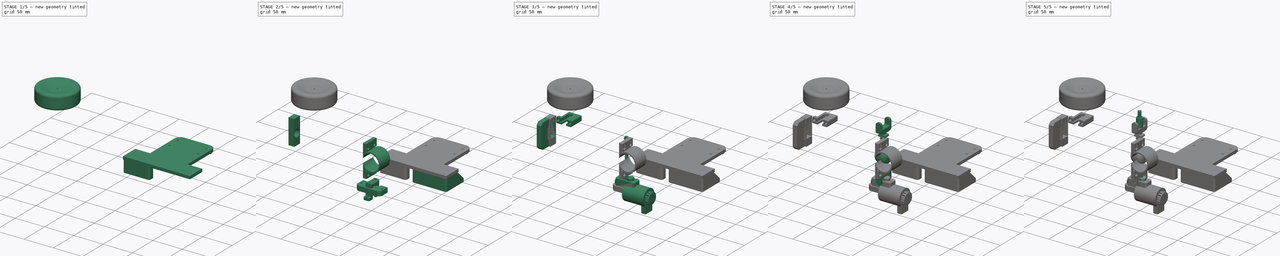
[diagram: build sequence overview — one tinted view per stage of 5, left to right]
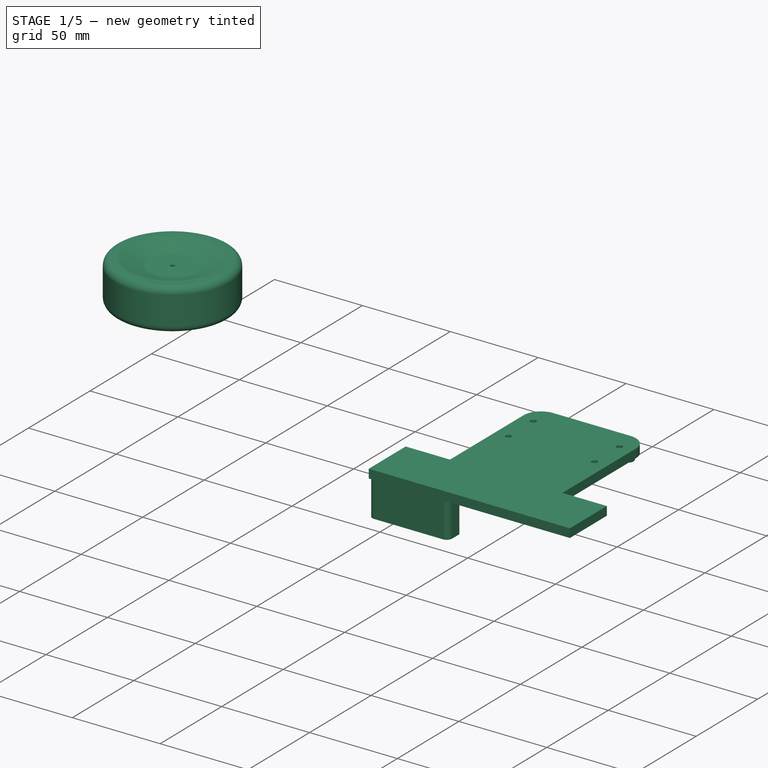
[diagram: stage 1 of 5 — iso view after this stage's code; geometry added in this stage tinted green]
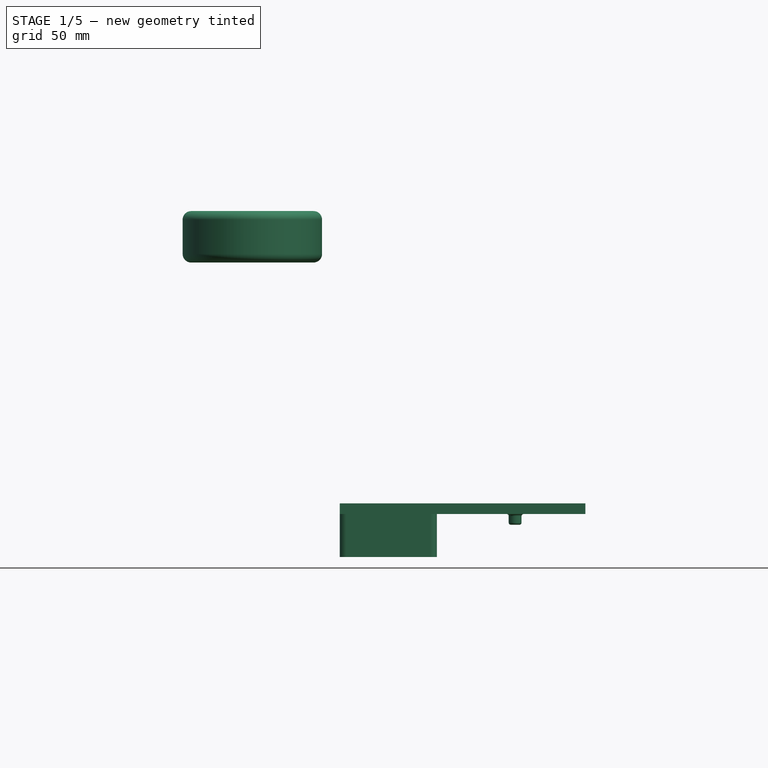
[diagram: stage 1 of 5 — front view after this stage's code; geometry added in this stage tinted green]
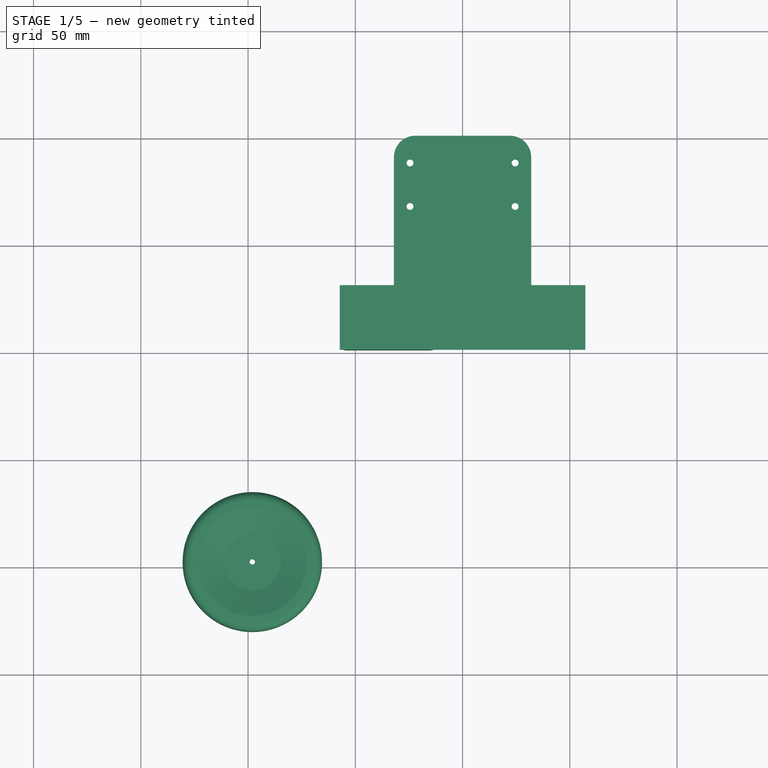
[diagram: stage 1 of 5 — top view after this stage's code; geometry added in this stage tinted green]
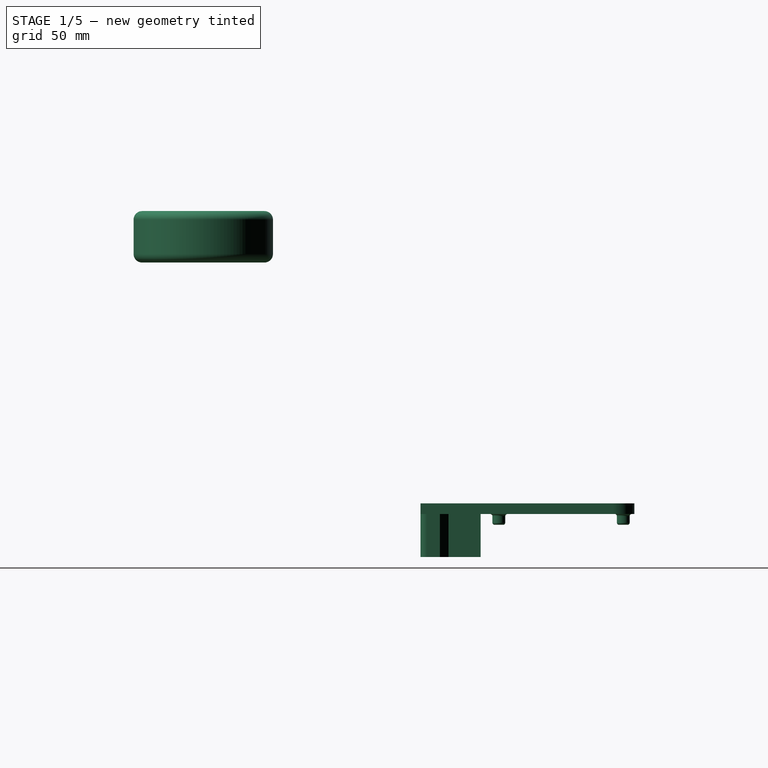
[diagram: stage 1 of 5 — right view after this stage's code; geometry added in this stage tinted green]
FCSTD DOCUMENT  (FreeCAD 1.0R39319 (Git))
Label: couplings
License: All rights reserved
LicenseURL: http://en.wikipedia.org/wiki/All_rights_reserved
objects: Part::Feature×223, Sketcher::SketchObject×96, PartDesign::Pad×72, App::Part×31, PartDesign::Pocket×29, PartDesign::Body×26, PartDesign::Fillet×15, PartDesign::Hole×11, PartDesign::FeatureBase×11, PartDesign::Chamfer×4, PartDesign::ShapeBinder×2, PartDesign::Mirrored×1, PartDesign::PolarPattern×1, PartDesign::Boolean×1
note: 864 computed .brp shape members not serialized (recipe doc carries the construction recipe); baked Part::Feature solids carry a one-line shape summary decoded from their .brp

FEATURE [Sketcher::SketchObject] Sketch005
  ArcFitTolerance = 1e-06
  AttachmentSupport = -> [XY_Plane002]
  FullyConstrained = true
  MakeInternals = false
  MapMode = 5
  sketch-geometry (25):
    g0: LineSegment StartX=0 StartY=203 StartZ=0 EndX=32 EndY=203 EndZ=0
    g1: LineSegment StartX=32 StartY=203 StartZ=0 EndX=32 EndY=133 EndZ=0
    g2: LineSegment StartX=32 StartY=133 StartZ=0 EndX=57.5 EndY=133 EndZ=0
    g3: LineSegment StartX=57.5 StartY=133 StartZ=0 EndX=57.5 EndY=58 EndZ=0
    g4: LineSegment StartX=57.5 StartY=58 StartZ=0 EndX=22.5 EndY=58 EndZ=0
    g5: LineSegment StartX=22.5 StartY=58 StartZ=0 EndX=22.5 EndY=33 EndZ=0
    g6: LineSegment StartX=22.5 StartY=33 StartZ=0 EndX=29 EndY=33 EndZ=0
    g7: LineSegment StartX=29 StartY=33 StartZ=0 EndX=29 EndY=3 EndZ=0
    g8: LineSegment StartX=29 StartY=3 StartZ=0 EndX=22.5 EndY=3 EndZ=0
    g9: LineSegment StartX=22.5 StartY=3 StartZ=0 EndX=22.5 EndY=0 EndZ=0
    g10: LineSegment StartX=22.5 StartY=0 StartZ=0 EndX=0 EndY=0 EndZ=0
    g11: LineSegment StartX=0 StartY=0 StartZ=0 EndX=0 EndY=203 EndZ=0
    g12: Circle CenterX=24.5 CenterY=28.15 CenterZ=0 NormalX=0 NormalY=0 NormalZ=1 AngleXU=0 Radius=2
    g13: Circle CenterX=24.5 CenterY=7.85 CenterZ=0 NormalX=0 NormalY=0 NormalZ=1 AngleXU=0 Radius=2
    g14: Circle CenterX=24.5 CenterY=188.3 CenterZ=0 NormalX=0 NormalY=0 NormalZ=1 AngleXU=0 Radius=2
    g15: Circle CenterX=24.5 CenterY=168 CenterZ=0 NormalX=0 NormalY=0 NormalZ=1 AngleXU=0 Radius=2
    g16: GeomPoint X=24.5 Y=18 Z=0
    g17: LineSegment [constr] StartX=24.5 StartY=168 StartZ=0 EndX=24.5 EndY=188.3 EndZ=0
    g18: LineSegment [constr] StartX=24.5 StartY=7.85 StartZ=0 EndX=24.5 EndY=28.15 EndZ=0
    g19: Circle [constr] CenterX=18 CenterY=10 CenterZ=0 NormalX=0 NormalY=0 NormalZ=1 AngleXU=0 Radius=2
    g20: GeomPoint X=29 Y=18 Z=0
    g21: ArcOfCircle CenterX=18 CenterY=10 CenterZ=0 NormalX=0 NormalY=0 NormalZ=1 AngleXU=0 Radius=2 StartAngle=4.71239 EndAngle=7.85398
    g22: ArcOfCircle CenterX=16 CenterY=10 CenterZ=0 NormalX=0 NormalY=0 NormalZ=1 AngleXU=0 Radius=2 StartAngle=1.5708 EndAngle=4.71239
    g23: LineSegment StartX=18 StartY=8 StartZ=0 EndX=16 EndY=8 EndZ=0
    g24: LineSegment StartX=18 StartY=12 StartZ=0 EndX=16 EndY=12 EndZ=0
  constraints (66):
    c: PointOnObject(g0,g-2)
    c: Horizontal(g0)
    c: Coincident(g0,g1)
    c: Coincident(g1,g2)
    c: Horizontal(g2)
    c: Coincident(g2,g3)
    c: Vertical(g3)
    c: Coincident(g3,g4)
    c: Horizontal(g4)
    c: Coincident(g4,g5)
    c: Vertical(g5)
    c: Coincident(g5,g6)
    c: Horizontal(g6)
    c: Coincident(g6,g7)
    c: Vertical(g7)
    c: Coincident(g7,g8)
    c: Horizontal(g8)
    c: Coincident(g8,g9)
    c: Vertical(g9)
    c: Coincident(g9,g10)
    c: Horizontal(g10)
    c: Coincident(g10,g11)
    c: Coincident(g11,g0)
    c: Vertical(g1)
    c: DistanceX(g0,g0) = 32
    c: DistanceX(g-1,g2) = 57.5
    c: DistanceY(g1,g1) = 70
    c: DistanceY(g5,g5) = 25
    c: DistanceY(g7,g7) = 30
    c: DistanceY(g9,g9) = 3
    c: DistanceX(g-1,g5) = 22.5
    c: Vertical(g6,g8)
    c: DistanceX(g-1,g6) = 29
    c: DistanceY(g3,g3) = 75
    c: Coincident(g10,g-1)
    c: Equal(g14,g15)
    c: Equal(g15,g12)
    c: Equal(g12,g13)
    c: Vertical(g12,g13)
    c: Vertical(g14,g15)
    c: DistanceY(g13,g12) = 20.3
    c: Diameter(g12) = 4
    c: Symmetric(g12,g13,g16)
    c: DistanceY(g1,g15) = 35
    c: DistanceX(g-1,g16) = 24.5
    c: Vertical(g14,g16)
    c: DistanceX(g6,g0) = 3
    c: Coincident(g17,g15)
    c: Coincident(g17,g14)
    c: Coincident(g18,g13)
    c: Coincident(g18,g12)
    c: Equal(g18,g17)
    c: Equal(g19,g13)
    c: Distance(g19,g11) = 18
    c: Distance(g19,g10) = 10
    c: Symmetric(g7,g7,g20)
    c: Horizontal(g16,g20)
    c: Tangent(g21,g23) = 1.5708
    c: Tangent(g21,g24) = -1.5708
    c: Tangent(g22,g23) = 1.5708
    c: Tangent(g22,g24) = -1.5708
    c: Equal(g21,g22)
    c: Coincident(g21,g19)
    c: Horizontal(g23)
    c: PointOnObject(g21,g19)
    c: DistanceX(g24,g24) = 2
FEATURE [PartDesign::Pad] Pad004
  Direction = (0,0,1)
  Length = 2
  Length2 = 10
  Profile = -> Sketch005
  ReferenceAxis = -> Sketch005 [N_Axis]
  Suppressed = false
  Type = 0
FEATURE [PartDesign::Mirrored] Mirrored
  BaseFeature = -> Pad004
  MirrorPlane = -> Sketch005 [V_Axis]
  Originals = -> [Pad004]
  Refine = true
  Suppressed = false
  TransformMode = 0
FEATURE [PartDesign::Fillet] Fillet
  Base = -> Mirrored [Edge30,Edge1,Edge26,Edge56,Edge50,Edge47,Edge20,Edge17,Edge38,Edge35,Edge8,Edge5]
  BaseFeature = -> Mirrored
  Radius = 2
  SupportTransform = false
  Suppressed = false
  UseAllEdges = false
FEATURE [PartDesign::Body] Body  label="ShaftCoupler"
  AllowCompound = false
  Group = -> [Sketch,Pad,Sketch001,Pad001,Sketch002,Pocket,Sketch003,Pocket001,Pad003,Sketch006,Pad005,Pad006,Pad007]
  Origin = -> Origin
  Placement = pos=(-65.25,6.9e-15,56.75) rot=(-0.707107,0,0.707107;3.14159rad)
  Tip = -> Pad007
FEATURE [Sketcher::SketchObject] Sketch007
  ArcFitTolerance = 1e-06
  AttachmentSupport = -> [XY_Plane003]
  FullyConstrained = true
  MakeInternals = false
  MapMode = 5
  sketch-geometry (1):
    g0: Circle CenterX=0 CenterY=0 CenterZ=0 NormalX=0 NormalY=0 NormalZ=1 AngleXU=0 Radius=32.5
  constraints (2):
    c: Diameter(g0) = 65
    c: Coincident(g0,g-1)
FEATURE [PartDesign::Pad] Pad008
  Direction = (0,0,1)
  Length = 24
  Length2 = 10
  Profile = -> Sketch007
  ReferenceAxis = -> Sketch007 [N_Axis]
  Suppressed = false
  Type = 0
FEATURE [Sketcher::SketchObject] Sketch008
  ArcFitTolerance = 1e-06
  AttachmentSupport = -> [Pad008]
  FullyConstrained = true
  MakeInternals = false
  MapMode = 5
  Placement = pos=(0,0,24) rot=(0,0,1;0rad)
  sketch-geometry (9):
    g0: Circle CenterX=0 CenterY=0 CenterZ=0 NormalX=0 NormalY=0 NormalZ=1 AngleXU=0 Radius=13.25
    g1: Circle CenterX=0 CenterY=0 CenterZ=0 NormalX=0 NormalY=0 NormalZ=1 AngleXU=0 Radius=4.5
    g2: LineSegment StartX=2.825 StartY=0 StartZ=0 EndX=1.4125 EndY=2.44652 EndZ=0
    g3: LineSegment StartX=1.4125 StartY=2.44652 StartZ=0 EndX=-1.4125 EndY=2.44652 EndZ=0
    g4: LineSegment StartX=-1.4125 StartY=2.44652 StartZ=0 EndX=-2.825 EndY=4.8694e-12 EndZ=0
    g5: LineSegment StartX=-2.825 StartY=4.8694e-12 StartZ=0 EndX=-1.4125 EndY=-2.44652 EndZ=0
    g6: LineSegment StartX=-1.4125 StartY=-2.44652 StartZ=0 EndX=1.4125 EndY=-2.44652 EndZ=0
    g7: LineSegment StartX=1.4125 StartY=-2.44652 StartZ=0 EndX=2.825 EndY=0 EndZ=0
    g8: Circle [constr] CenterX=0 CenterY=0 CenterZ=0 NormalX=0 NormalY=0 NormalZ=1 AngleXU=0 Radius=2.825
  constraints (20):
    c: Diameter(g0) = 26.5
    c: Coincident(g0,g-1)
    c: Diameter(g1) = 9
    c: Coincident(g1,g0)
    c: Coincident(g2,g3)
    c: Coincident(g3,g4)
    c: Coincident(g4,g5)
    c: Coincident(g5,g6)
    c: Coincident(g6,g7)
    c: Coincident(g7,g2)
    c: Equal(g2, g3-g7) x5
    c: PointOnObject(g2,g8)
    c: PointOnObject(g3,g8)
    c: PointOnObject(g4,g8)
    c: PointOnObject(g5,g8)
    c: PointOnObject(g6,g8)
    c: PointOnObject(g7,g8)
    c: Coincident(g8,g0)
    c: PointOnObject(g7,g-1)
    c: DistanceX(g4,g2) = 5.65
FEATURE [PartDesign::Pocket] Pocket002
  BaseFeature = -> Pad008
  Direction = (0,0,-1)
  Length = 4
  Length2 = 5
  Profile = -> Sketch008
  ReferenceAxis = -> Sketch008 [N_Axis]
  Suppressed = false
  Type = 0
FEATURE [Sketcher::SketchObject] Sketch009
  ArcFitTolerance = 1e-06
  AttachmentSupport = -> [Pocket002]
  ExternalGeometry = -> [Pocket002]
  FullyConstrained = true
  MakeInternals = false
  MapMode = 5
  Placement = pos=(0,0,0) rot=(1,0,0;3.14159rad)
  sketch-geometry (1):
    g0: Circle CenterX=0 CenterY=0 CenterZ=0 NormalX=0 NormalY=0 NormalZ=1 AngleXU=0 Radius=13.25
  constraints (2):
    c: Coincident(g0,g-1)
    c: Tangent(g0,g-3)
FEATURE [PartDesign::Pocket] Pocket003
  BaseFeature = -> Pocket002
  Direction = (0,0,1)
  Length = 4
  Length2 = 5
  Profile = -> Sketch009
  ReferenceAxis = -> Sketch009 [N_Axis]
  Suppressed = false
  Type = 0
FEATURE [PartDesign::Chamfer] Chamfer
  Angle = 45
  Base = -> Pocket003 [Edge5,Edge4]
  BaseFeature = -> Pocket003
  ChamferType = 1
  FlipDirection = false
  Size = 12
  Size2 = 3.9999
  SupportTransform = false
  Suppressed = false
  UseAllEdges = false
FEATURE [PartDesign::Fillet] Fillet001
  Base = -> Chamfer [Face3]
  BaseFeature = -> Chamfer
  Radius = 4
  SupportTransform = false
  Suppressed = false
  UseAllEdges = false
FEATURE [Sketcher::SketchObject] Sketch010
  ArcFitTolerance = 1e-06
  AttachmentSupport = -> [Fillet001]
  ExternalGeometry = -> [Fillet001]
  FullyConstrained = true
  MakeInternals = false
  MapMode = 5
  Placement = pos=(0,0,20) rot=(0,0,1;0rad)
  sketch-geometry (2):
    g0: Circle CenterX=0 CenterY=0 CenterZ=0 NormalX=0 NormalY=0 NormalZ=1 AngleXU=0 Radius=13.25
    g1: Circle CenterX=0 CenterY=0 CenterZ=0 NormalX=0 NormalY=0 NormalZ=1 AngleXU=0 Radius=4.50001
  constraints (4):
    c: Coincident(g0,g-1)
    c: Coincident(g1,g0)
    c: Tangent(g-3,g0)
    c: Tangent(g-4,g1)
FEATURE [PartDesign::Pocket] Pocket004
  BaseFeature = -> Fillet001
  Direction = (0,0,-1)
  Length = 12
  Length2 = 5
  Profile = -> Sketch010
  ReferenceAxis = -> Sketch010 [N_Axis]
  Suppressed = false
  Type = 0
FEATURE [PartDesign::Pocket] Pocket005
  BaseFeature = -> Pocket004
  Direction = (0,0,-1)
  Length = 0
  Length2 = 5
  Offset = 8.75
  Profile = -> Pocket004 [Edge22]
  Suppressed = false
  Type = 3
  UpToFace = -> Pocket004 [Face11]
FEATURE [Sketcher::SketchObject] Sketch012
  ArcFitTolerance = 1e-06
  AttachmentSupport = -> [Pocket005]
  ExternalGeometry = -> [Pocket005]
  FullyConstrained = true
  MakeInternals = false
  MapMode = 5
  Placement = pos=(0,0,16.75) rot=(0,0,1;0rad)
  sketch-geometry (7):
    g0: LineSegment StartX=2.825 StartY=0 StartZ=0 EndX=1.4125 EndY=2.44652 EndZ=0
    g1: LineSegment StartX=1.4125 StartY=2.44652 StartZ=0 EndX=-1.4125 EndY=2.44652 EndZ=0
    g2: LineSegment StartX=-1.4125 StartY=2.44652 StartZ=0 EndX=-2.825 EndY=4e-16 EndZ=0
    g3: LineSegment StartX=-2.825 StartY=4e-16 StartZ=0 EndX=-1.4125 EndY=-2.44652 EndZ=0
    g4: LineSegment StartX=-1.4125 StartY=-2.44652 StartZ=0 EndX=1.4125 EndY=-2.44652 EndZ=0
    g5: LineSegment StartX=1.4125 StartY=-2.44652 StartZ=0 EndX=2.825 EndY=0 EndZ=0
    g6: Circle [constr] CenterX=0 CenterY=0 CenterZ=0 NormalX=0 NormalY=0 NormalZ=1 AngleXU=0 Radius=2.825
  constraints (16):
    c: Coincident(g0,g1)
    c: Coincident(g1,g2)
    c: Coincident(g2,g3)
    c: Coincident(g3,g4)
    c: Coincident(g4,g5)
    c: Coincident(g5,g0)
    c: Equal(g0, g1-g5) x5
    c: PointOnObject(g0,g6)
    c: PointOnObject(g1,g6)
    c: PointOnObject(g2,g6)
    c: PointOnObject(g3,g6)
    c: PointOnObject(g4,g6)
    c: PointOnObject(g5,g6)
    c: Radius(g6) = 2.825
    c: Coincident(g6,g-1)
    c: PointOnObject(g5,g-1)
FEATURE [PartDesign::Pocket] Pocket006
  BaseFeature = -> Pocket005
  Direction = (0,0,-1)
  Length = 7.5
  Length2 = 5
  Profile = -> Sketch012
  ReferenceAxis = -> Sketch012 [N_Axis]
  Suppressed = false
  Type = 0
FEATURE [Sketcher::SketchObject] Sketch013
  ArcFitTolerance = 1e-06
  AttachmentSupport = -> [Pocket006]
  FullyConstrained = true
  MakeInternals = false
  MapMode = 5
  Placement = pos=(0,0,9.25) rot=(0,0,1;0rad)
  sketch-geometry (1):
    g0: Circle CenterX=0 CenterY=0 CenterZ=0 NormalX=0 NormalY=0 NormalZ=1 AngleXU=0 Radius=1.25
  constraints (2):
    c: Diameter(g0) = 2.5
    c: Coincident(g0,g-1)
FEATURE [PartDesign::Pocket] Pocket007
  BaseFeature = -> Pocket006
  Direction = (0,0,-1)
  Length = 5
  Length2 = 5
  Profile = -> Sketch013
  ReferenceAxis = -> Sketch013 [N_Axis]
  Refine = true
  Suppressed = false
  Type = 1
FEATURE [Sketcher::SketchObject] Sketch073
  ArcFitTolerance = 1e-06
  AttachmentSupport = -> [Fillet]
  ExternalGeometry = -> [Fillet]
  FullyConstrained = true
  MakeInternals = false
  MapMode = 5
  Placement = pos=(0,0,0) rot=(1,0,0;1.5708rad)
  sketch-geometry (4):
    g0: LineSegment StartX=-22.5 StartY=2 StartZ=0 EndX=-22.5 EndY=0 EndZ=0
    g1: LineSegment StartX=-22.5 StartY=0 StartZ=0 EndX=22.5 EndY=0 EndZ=0
    g2: LineSegment StartX=22.5 StartY=0 StartZ=0 EndX=22.5 EndY=2 EndZ=0
    g3: LineSegment StartX=22.5 StartY=2 StartZ=0 EndX=-22.5 EndY=2 EndZ=0
  constraints (10):
    c: Coincident(g0,g1)
    c: Coincident(g1,g2)
    c: Coincident(g2,g3)
    c: Coincident(g3,g0)
    c: Vertical(g0)
    c: Vertical(g2)
    c: Horizontal(g1)
    c: Coincident(g0,g-3)
    c: PointOnObject(g1,g-1)
    c: Coincident(g-4,g2)
FEATURE [PartDesign::Pocket] Pocket022
  BaseFeature = -> Fillet
  Direction = (0,1,-2e-16)
  Length = 5
  Length2 = 5
  Profile = -> Sketch073
  ReferenceAxis = -> Sketch073 [N_Axis]
  Suppressed = false
  Type = 0
FEATURE [PartDesign::Fillet] Fillet010
  Base = -> Pocket022 [Edge113,Edge110]
  BaseFeature = -> Pocket022
  Radius = 1
  SupportTransform = false
  Suppressed = false
  UseAllEdges = false
FEATURE [PartDesign::Fillet] Fillet011
  Base = -> Fillet010 [Edge56,Edge60]
  BaseFeature = -> Fillet010
  Radius = 0.9999
  SupportTransform = false
  Suppressed = false
  UseAllEdges = false
FEATURE [Sketcher::SketchObject] Sketch074
  ArcFitTolerance = 1e-06
  AttachmentSupport = -> [Fillet011]
  ExternalGeometry = -> [Fillet011]
  FullyConstrained = true
  MakeInternals = false
  MapMode = 5
  Placement = pos=(0,0,0) rot=(1,0,0;3.14159rad)
  sketch-geometry (7):
    g0: LineSegment StartX=-17 StartY=-81 StartZ=0 EndX=-17 EndY=-96 EndZ=0
    g1: LineSegment [constr] StartX=-17 StartY=-96 StartZ=0 EndX=8 EndY=-96 EndZ=0
    g2: LineSegment [constr] StartX=8 StartY=-96 StartZ=0 EndX=8 EndY=-81 EndZ=0
    g3: LineSegment [constr] StartX=8 StartY=-81 StartZ=0 EndX=-17 EndY=-81 EndZ=0
    g4: LineSegment StartX=-17 StartY=-81 StartZ=0 EndX=17 EndY=-81 EndZ=0
    g5: LineSegment StartX=17 StartY=-81 StartZ=0 EndX=17 EndY=-96 EndZ=0
    g6: LineSegment StartX=17 StartY=-96 StartZ=0 EndX=-17 EndY=-96 EndZ=0
  constraints (21):
    c: Coincident(g0,g1)
    c: Coincident(g1,g2)
    c: Coincident(g2,g3)
    c: Coincident(g3,g0)
    c: Vertical(g0)
    c: Vertical(g2)
    c: Horizontal(g1)
    c: Horizontal(g3)
    c: DistanceX(g3,g3) = 25
    c: DistanceY(g2,g2) = 15
    c: Distance(g2,g-2) = 8
    c: DistanceY(g2,g-1) = 81
    c: Coincident(g0,g4)
    c: Horizontal(g4)
    c: Coincident(g4,g5)
    c: Vertical(g5)
    c: Coincident(g5,g6)
    c: Coincident(g6,g0)
    c: Horizontal(g6)
    c: Distance(g0,g-4) = 5.5
    c: Distance(g-3,g5) = 5.5
FEATURE [PartDesign::Pocket] Pocket023
  BaseFeature = -> Fillet011
  Direction = (0,0,1)
  Length = 5
  Length2 = 5
  Profile = -> Sketch074
  ReferenceAxis = -> Sketch074 [N_Axis]
  Suppressed = false
  Type = 0
FEATURE [Sketcher::SketchObject] Sketch078
  ArcFitTolerance = 1e-06
  AttachmentSupport = -> [Pocket023]
  ExternalGeometry = -> [Pocket023]
  FullyConstrained = true
  MakeInternals = false
  MapMode = 5
  Placement = pos=(0,0,2) rot=(0,0,1;0rad)
  sketch-geometry (16):
    g0: ArcOfCircle CenterX=-28 CenterY=77 CenterZ=0 NormalX=0 NormalY=0 NormalZ=1 AngleXU=0 Radius=2 StartAngle=1.5708 EndAngle=4.71239
    g1: ArcOfCircle CenterX=-8 CenterY=77 CenterZ=0 NormalX=0 NormalY=0 NormalZ=1 AngleXU=0 Radius=2 StartAngle=4.71239 EndAngle=7.85398
    g2: LineSegment StartX=-28 StartY=79 StartZ=0 EndX=-8 EndY=79 EndZ=0
    g3: LineSegment StartX=-28 StartY=75 StartZ=0 EndX=-8 EndY=75 EndZ=0
    g4: ArcOfCircle CenterX=-28 CenterY=62 CenterZ=0 NormalX=0 NormalY=0 NormalZ=1 AngleXU=0 Radius=2 StartAngle=1.5708 EndAngle=4.71239
    g5: ArcOfCircle CenterX=-8 CenterY=62 CenterZ=0 NormalX=0 NormalY=0 NormalZ=1 AngleXU=0 Radius=2 StartAngle=4.71239 EndAngle=7.85398
    g6: LineSegment StartX=-28 StartY=64 StartZ=0 EndX=-8 EndY=64 EndZ=0
    g7: LineSegment StartX=-28 StartY=60 StartZ=0 EndX=-8 EndY=60 EndZ=0
    g8: ArcOfCircle CenterX=8 CenterY=77 CenterZ=0 NormalX=0 NormalY=0 NormalZ=1 AngleXU=0 Radius=2 StartAngle=1.5708 EndAngle=4.71239
    g9: ArcOfCircle CenterX=28 CenterY=77 CenterZ=0 NormalX=0 NormalY=0 NormalZ=1 AngleXU=0 Radius=2 StartAngle=4.71239 EndAngle=7.85398
    g10: LineSegment StartX=8 StartY=79 StartZ=0 EndX=28 EndY=79 EndZ=0
    g11: LineSegment StartX=8 StartY=75 StartZ=0 EndX=28 EndY=75 EndZ=0
    g12: ArcOfCircle CenterX=8 CenterY=62 CenterZ=0 NormalX=0 NormalY=0 NormalZ=1 AngleXU=0 Radius=2 StartAngle=1.5708 EndAngle=4.71239
    g13: ArcOfCircle CenterX=28 CenterY=62 CenterZ=0 NormalX=0 NormalY=0 NormalZ=1 AngleXU=0 Radius=2 StartAngle=4.71239 EndAngle=7.85398
    g14: LineSegment StartX=8 StartY=64 StartZ=0 EndX=28 EndY=64 EndZ=0
    g15: LineSegment StartX=8 StartY=60 StartZ=0 EndX=28 EndY=60 EndZ=0
  constraints (44):
    c: Tangent(g0,g2) = 1.5708
    c: Tangent(g0,g3) = -1.5708
    c: Tangent(g1,g2) = 1.5708
    c: Tangent(g1,g3) = -1.5708
    c: Equal(g0,g1)
    c: Radius(g0) = 2
    c: Horizontal(g2)
    c: Tangent(g4,g6) = 1.5708
    c: Tangent(g4,g7) = -1.5708
    c: Tangent(g5,g6) = 1.5708
    c: Tangent(g5,g7) = -1.5708
    c: Equal(g4,g5)
    c: Radius(g4) = 2
    c: Horizontal(g6)
    c: Tangent(g8,g10) = 1.5708
    c: Tangent(g8,g11) = -1.5708
    c: Tangent(g9,g10) = 1.5708
    c: Tangent(g9,g11) = -1.5708
    c: Equal(g8,g9)
    c: Radius(g8) = 2
    c: Tangent(g12,g14) = 1.5708
    c: Tangent(g12,g15) = -1.5708
    c: Tangent(g13,g14) = 1.5708
    c: Tangent(g13,g15) = -1.5708
    c: Equal(g12,g13)
    c: Radius(g12) = 2
    c: Horizontal(g14)
    c: Horizontal(g10)
    c: Vertical(g8,g12)
    c: Vertical(g9,g13)
    c: Vertical(g4,g0)
    c: Vertical(g1,g5)
    c: Horizontal(g1,g8)
    c: Equal(g10,g2)
    c: Horizontal(g12,g5)
    c: DistanceY(g5,g1) = 15
    c: DistanceX(g1,g8) = 16
    c: DistanceX(g2,g2) = 20
    c: DistanceX(g0,g-1) = 28
    c: DistanceY(g-1,g4) = 62
    c: DistanceX(g1,g-3) = -9
    c: DistanceX(g4,g-5) = 5.5
    c: DistanceX(g8,g-4) = 9
    c: DistanceX(g-3,g1) = 9
FEATURE [PartDesign::Pocket] Pocket026
  BaseFeature = -> Pocket023
  Direction = (0,0,-1)
  Length = 5
  Length2 = 5
  Profile = -> Sketch078
  ReferenceAxis = -> Sketch078 [N_Axis]
  Suppressed = false
  Type = 0
FEATURE [PartDesign::Body] Body014  label="ServoHolder"
  AllowCompound = false
  Group = -> [Sketch070,Pad056,ShapeBinder,Sketch071,Pocket021,Sketch079,Pad059,Sketch080,Hole006,Sketch081,Pocket027,Boolean]
  Origin = -> Origin015
  Tip = -> Boolean
FEATURE [Sketcher::SketchObject] Sketch089
  ArcFitTolerance = 1e-06
  AttachmentSupport = -> [Pocket026]
  ExternalGeometry = -> [Pocket026]
  FullyConstrained = true
  MakeInternals = false
  MapMode = 5
  Placement = pos=(0,0,0) rot=(1,0,0;3.14159rad)
  sketch-geometry (13):
    g0: Circle CenterX=42.25 CenterY=-63.75 CenterZ=0 NormalX=0 NormalY=0 NormalZ=1 AngleXU=0 Radius=2
    g1: Circle CenterX=42.25 CenterY=-94.75 CenterZ=0 NormalX=0 NormalY=0 NormalZ=1 AngleXU=0 Radius=2
    g2: Circle CenterX=-42.25 CenterY=-63.75 CenterZ=0 NormalX=0 NormalY=0 NormalZ=1 AngleXU=0 Radius=2
    g3: Circle CenterX=-42.25 CenterY=-94.75 CenterZ=0 NormalX=0 NormalY=0 NormalZ=1 AngleXU=0 Radius=2
    g4: LineSegment StartX=42.25 StartY=-71.75 StartZ=0 EndX=42.25 EndY=-86.75 EndZ=0
    g5: LineSegment StartX=42.25 StartY=-86.75 StartZ=0 EndX=52.25 EndY=-86.75 EndZ=0
    g6: LineSegment StartX=52.25 StartY=-86.75 StartZ=0 EndX=52.25 EndY=-71.75 EndZ=0
    g7: LineSegment StartX=52.25 StartY=-71.75 StartZ=0 EndX=42.25 EndY=-71.75 EndZ=0
    g8: LineSegment StartX=-42.25 StartY=-71.75 StartZ=0 EndX=-52.25 EndY=-71.75 EndZ=0
    g9: LineSegment StartX=-52.25 StartY=-71.75 StartZ=0 EndX=-52.25 EndY=-86.75 EndZ=0
    g10: LineSegment StartX=-52.25 StartY=-86.75 StartZ=0 EndX=-42.25 EndY=-86.75 EndZ=0
    g11: LineSegment StartX=-42.25 StartY=-86.75 StartZ=0 EndX=-42.25 EndY=-71.75 EndZ=0
    g12: GeomPoint X=-42.25 Y=-79.25 Z=0
  constraints (36):
    c: Distance(g0,g-4) = 5.75
    c: Distance(g0,g-3) = 15.25
    c: Diameter(g0) = 4
    c: Equal(g1,g0)
    c: Equal(g2,g3)
    c: Equal(g2,g0)
    c: Vertical(g2,g3)
    c: Horizontal(g1,g3)
    c: Horizontal(g2,g0)
    c: Distance(g2,g-5) = 15.25
    c: DistanceY(g1,g0) = 31
    c: Vertical(g1,g0)
    c: Coincident(g4,g5)
    c: Coincident(g5,g6)
    c: Coincident(g6,g7)
    c: Coincident(g7,g4)
    c: Vertical(g4)
    c: Vertical(g6)
    c: Horizontal(g5)
    c: Horizontal(g7)
    c: Coincident(g8,g9)
    c: Coincident(g9,g10)
    c: Coincident(g10,g11)
    c: Coincident(g11,g8)
    c: Horizontal(g8)
    c: Horizontal(g10)
    c: Vertical(g9)
    c: Vertical(g11)
    c: DistanceY(g11,g11) = 15
    c: Horizontal(g4,g8)
    c: Horizontal(g10,g4)
    c: Equal(g7,g8)
    c: Symmetric(g11,g11,g12)
    c: Symmetric(g2,g3,g12)
    c: DistanceX(g8,g8) = 10
    c: Vertical(g0,g4)
FEATURE [PartDesign::Pocket] Pocket029
  BaseFeature = -> Pocket026
  Direction = (0,0,1)
  Length = 5
  Length2 = 5
  Profile = -> Sketch089
  ReferenceAxis = -> Sketch089 [N_Axis]
  Suppressed = false
  Type = 0
FEATURE [PartDesign::Body] Body015  label="MotorSupport"
  AllowCompound = false
  Group = -> [Sketch076,Pad058,Sketch077,Pocket025,Sketch092,Pad065,Fillet012]
  Origin = -> Origin018
  Placement = pos=(-79.25,1.76e-14,0) rot=(0,0,1;1.5708rad)
  Tip = -> Fillet012
FEATURE [PartDesign::ShapeBinder] ReferencePocket029
  Support = -> [Pocket029]
  TraceSupport = false
FEATURE [Sketcher::SketchObject] Sketch093
  ArcFitTolerance = 1e-06
  AttachmentSupport = -> [ReferencePocket029]
  ExternalGeometry = -> [ReferencePocket029]
  FullyConstrained = true
  MakeInternals = false
  MapMode = 5
  Placement = pos=(0,0,0) rot=(1,0,0;3.14159rad)
  sketch-geometry (9):
    g0: LineSegment StartX=-32 StartY=-124.3 StartZ=0 EndX=-32 EndY=-201 EndZ=0
    g1: LineSegment StartX=-32 StartY=-201 StartZ=0 EndX=32 EndY=-201 EndZ=0
    g2: LineSegment StartX=32 StartY=-201 StartZ=0 EndX=32 EndY=-124.3 EndZ=0
    g3: LineSegment StartX=32 StartY=-124.3 StartZ=0 EndX=-32 EndY=-124.3 EndZ=0
    g4: GeomPoint [constr] X=0 Y=-162.65 Z=0
    g5: Circle CenterX=-24.5 CenterY=-188.3 CenterZ=0 NormalX=0 NormalY=0 NormalZ=1 AngleXU=0 Radius=3
    g6: Circle CenterX=-24.5 CenterY=-168 CenterZ=0 NormalX=0 NormalY=0 NormalZ=1 AngleXU=0 Radius=3
    g7: Circle CenterX=24.5 CenterY=-168 CenterZ=0 NormalX=0 NormalY=0 NormalZ=1 AngleXU=0 Radius=3
    g8: Circle CenterX=24.5 CenterY=-188.3 CenterZ=0 NormalX=0 NormalY=0 NormalZ=1 AngleXU=0 Radius=3
  constraints (20):
    c: Coincident(g0,g1)
    c: Coincident(g1,g2)
    c: Coincident(g2,g3)
    c: Coincident(g3,g0)
    c: Vertical(g0)
    c: Vertical(g2)
    c: Horizontal(g1)
    c: Horizontal(g3)
    c: Symmetric(g2,g0,g4)
    c: PointOnObject(g4,g-2)
    c: Coincident(g1,g-7)
    c: Distance(g-5,g3) = 64
    c: Coincident(g5,g-4)
    c: Coincident(g6,g-3)
    c: Coincident(g7,g-6)
    c: Diameter(g8) = 6
    c: Coincident(g8,g-5)
    c: Equal(g8,g7)
    c: Equal(g7,g6)
    c: Equal(g6,g5)
FEATURE [PartDesign::Pad] Pad066
  Direction = (0,0,-1)
  Length = 5
  Length2 = 10
  Profile = -> Sketch093
  ReferenceAxis = -> Sketch093 [N_Axis]
  Suppressed = false
  Type = 0
FEATURE [Sketcher::SketchObject] Sketch095
  ArcFitTolerance = 1e-06
  AttachmentSupport = -> [Pad066]
  ExternalGeometry = -> [Pad066]
  FullyConstrained = true
  MakeInternals = false
  MapMode = 5
  sketch-geometry (8):
    g0: Circle CenterX=-24.5 CenterY=188.3 CenterZ=0 NormalX=0 NormalY=0 NormalZ=1 AngleXU=0 Radius=3
    g1: Circle CenterX=-24.5 CenterY=168 CenterZ=0 NormalX=0 NormalY=0 NormalZ=1 AngleXU=0 Radius=3
    g2: Circle CenterX=24.5 CenterY=168 CenterZ=0 NormalX=0 NormalY=0 NormalZ=1 AngleXU=0 Radius=3
    g3: Circle CenterX=24.5 CenterY=188.3 CenterZ=0 NormalX=0 NormalY=0 NormalZ=1 AngleXU=0 Radius=3
    g4: Circle CenterX=24.5 CenterY=188.3 CenterZ=0 NormalX=0 NormalY=0 NormalZ=1 AngleXU=0 Radius=1.6
    g5: Circle CenterX=24.5 CenterY=168 CenterZ=0 NormalX=0 NormalY=0 NormalZ=1 AngleXU=0 Radius=1.6
    g6: Circle CenterX=-24.5 CenterY=168 CenterZ=0 NormalX=0 NormalY=0 NormalZ=1 AngleXU=0 Radius=1.6
    g7: Circle CenterX=-24.5 CenterY=188.3 CenterZ=0 NormalX=0 NormalY=0 NormalZ=1 AngleXU=0 Radius=1.6
  constraints (16):
    c: Coincident(g0,g-3)
    c: Equal(g0,g-3)
    c: Coincident(g1,g-4)
    c: Equal(g1,g-4)
    c: Coincident(g2,g-5)
    c: Equal(g2,g-5)
    c: Coincident(g3,g-6)
    c: Equal(g3,g-6)
    c: Diameter(g4) = 3.2
    c: Coincident(g4,g3)
    c: Coincident(g5,g2)
    c: Coincident(g6,g1)
    c: Coincident(g7,g0)
    c: Equal(g7,g6)
    c: Equal(g6,g5)
    c: Equal(g5,g4)
FEATURE [PartDesign::Pad] Pad067
  BaseFeature = -> Pad066
  Direction = (0,0,1)
  Length = 1.5
  Length2 = 10
  Profile = -> Sketch095
  ReferenceAxis = -> Sketch095 [N_Axis]
  Reversed = true
  Suppressed = false
  Type = 0
FEATURE [Sketcher::SketchObject] Sketch096
  ArcFitTolerance = 1e-06
  AttachmentSupport = -> [Pad067]
  ExternalGeometry = -> [Pad067]
  FullyConstrained = true
  MakeInternals = false
  MapMode = 5
  Placement = pos=(0,0,-5) rot=(1,0,0;3.14159rad)
  sketch-geometry (8):
    g0: Circle CenterX=-24.5 CenterY=-195.8 CenterZ=0 NormalX=0 NormalY=0 NormalZ=1 AngleXU=0 Radius=1.6
    g1: Circle CenterX=-24.5 CenterY=-195.8 CenterZ=0 NormalX=0 NormalY=0 NormalZ=1 AngleXU=0 Radius=3
    g2: Circle CenterX=24.5 CenterY=-195.8 CenterZ=0 NormalX=0 NormalY=0 NormalZ=1 AngleXU=0 Radius=3
    g3: Circle CenterX=24.5 CenterY=-195.8 CenterZ=0 NormalX=0 NormalY=0 NormalZ=1 AngleXU=0 Radius=1.6
    g4: Circle CenterX=24.5 CenterY=-137.8 CenterZ=0 NormalX=0 NormalY=0 NormalZ=1 AngleXU=0 Radius=3
    g5: Circle CenterX=24.5 CenterY=-137.8 CenterZ=0 NormalX=0 NormalY=0 NormalZ=1 AngleXU=0 Radius=1.6
    g6: Circle CenterX=-24.5 CenterY=-137.8 CenterZ=0 NormalX=0 NormalY=0 NormalZ=1 AngleXU=0 Radius=3
    g7: Circle CenterX=-24.5 CenterY=-137.8 CenterZ=0 NormalX=0 NormalY=0 NormalZ=1 AngleXU=0 Radius=1.6
  constraints (21):
    c: Diameter(g0) = 3.2
    c: Coincident(g1,g0)
    c: Distance(g0,g1) = 1.4
    c: Diameter(g1) = 6
    c: Vertical(g0,g-3)
    c: Coincident(g3,g2)
    c: Coincident(g5,g4)
    c: Coincident(g7,g6)
    c: Equal(g7,g5)
    c: Equal(g5,g3)
    c: Equal(g3,g0)
    c: Equal(g2,g1)
    c: Equal(g1,g6)
    c: Equal(g6,g4)
    c: Horizontal(g6,g4)
    c: Vertical(g4,g2)
    c: Vertical(g0,g6)
    c: DistanceX(g6,g4) = 49
    c: DistanceY(g2,g4) = 58
    c: DistanceY(g0,g-3) = 7.5
    c: Horizontal(g2,g0)
FEATURE [PartDesign::Pad] Pad068
  BaseFeature = -> Pad067
  Direction = (0,0,-1)
  Length = 5
  Length2 = 10
  Profile = -> Sketch096
  ReferenceAxis = -> Sketch096 [N_Axis]
  Refine = true
  Suppressed = false
  Type = 0
FEATURE [PartDesign::Fillet] Fillet013
  Base = -> Pad068 [Edge19,Edge36,Edge16,Edge30,Edge12,Edge22,Edge24,Edge13]
  BaseFeature = -> Pad068
  Radius = 1
  SupportTransform = false
  Suppressed = false
  UseAllEdges = false
FEATURE [PartDesign::Fillet] Fillet014
  Base = -> Fillet013 [Edge20,Edge16]
  BaseFeature = -> Fillet013
  Radius = 10
  SupportTransform = false
  Suppressed = false
  UseAllEdges = false
FEATURE [PartDesign::Chamfer] Chamfer003
  Angle = 45
  Base = -> Fillet014 [Edge8,Edge9,Edge10,Edge11]
  BaseFeature = -> Fillet014
  ChamferType = 0
  FlipDirection = false
  Size = 1
  Size2 = 1
  SupportTransform = false
  Suppressed = false
  UseAllEdges = false
FEATURE [Sketcher::SketchObject] Sketch097
  ArcFitTolerance = 1e-06
  AttachmentSupport = -> [Chamfer003]
  ExternalGeometry = -> [Chamfer003]
  FullyConstrained = true
  MakeInternals = false
  MapMode = 5
  Placement = pos=(0,0,-5) rot=(1,0,0;3.14159rad)
  sketch-geometry (8):
    g0: LineSegment StartX=-32 StartY=-131.3 StartZ=0 EndX=-57.25 EndY=-131.3 EndZ=0
    g1: LineSegment StartX=-57.25 StartY=-131.3 StartZ=0 EndX=-57.25 EndY=-101.3 EndZ=0
    g2: LineSegment StartX=-57.25 StartY=-101.3 StartZ=0 EndX=57.25 EndY=-101.3 EndZ=0
    g3: LineSegment StartX=57.25 StartY=-101.3 StartZ=0 EndX=57.25 EndY=-131.3 EndZ=0
    g4: LineSegment StartX=57.25 StartY=-131.3 StartZ=0 EndX=32 EndY=-131.3 EndZ=0
    g5: LineSegment StartX=-32 StartY=-131.3 StartZ=0 EndX=-32 EndY=-124.3 EndZ=0
    g6: LineSegment StartX=-32 StartY=-124.3 StartZ=0 EndX=32 EndY=-124.3 EndZ=0
    g7: LineSegment StartX=32 StartY=-124.3 StartZ=0 EndX=32 EndY=-131.3 EndZ=0
  constraints (22):
    c: PointOnObject(g0,g-4)
    c: Horizontal(g0)
    c: Coincident(g0,g1)
    c: Vertical(g1)
    c: Coincident(g1,g2)
    c: Horizontal(g2)
    c: Coincident(g2,g3)
    c: Vertical(g3)
    c: Coincident(g3,g4)
    c: PointOnObject(g4,g-5)
    c: Horizontal(g4)
    c: Horizontal(g4,g0)
    c: DistanceY(g0,g-4) = 7
    c: Equal(g4,g0)
    c: DistanceX(g0,g0) = 25.25
    c: DistanceY(g3,g3) = 30
    c: Coincident(g0,g5)
    c: Coincident(g5,g-4)
    c: Coincident(g5,g6)
    c: Coincident(g6,g-5)
    c: Coincident(g6,g7)
    c: Coincident(g7,g4)
FEATURE [Part::Feature] Part__Feature020  label="PCB_for REF 060923"
  Placement = pos=(0,0,0) rot=(0,1,0;3.14159rad)
  shape: bbox 10.5 x 2 x 13.1 mm, 6 faces (baked)
FEATURE [Part::Feature] Part__Feature021  label="PCB_for REF 060924"
  Placement = pos=(0,0,0) rot=(0,1,0;3.14159rad)
  shape: bbox 17 x 2.3 x 17 mm, 12 faces (baked)
FEATURE [Part::Feature] Part__Feature022  label="PCB_for REF 060925"
  Placement = pos=(0,0,0) rot=(0,1,0;3.14159rad)
  shape: bbox 14.5 x 1 x 10 mm, 6 faces (baked)
FEATURE [Part::Feature] Part__Feature023  label="PCB_for REF 060926"
  Placement = pos=(0,0,0) rot=(0,1,0;3.14159rad)
  shape: bbox 12 x 1.2 x 12 mm, 6 faces (baked)
FEATURE [Part::Feature] Part__Feature024  label="PCB_for REF 060927"
  Placement = pos=(0,0,0) rot=(0,1,0;3.14159rad)
  shape: bbox 8.485 x 0.7 x 8.485 mm, 6 faces (baked)
FEATURE [Part::Feature] Part__Feature025  label="PCB_for REF 060928"
  Placement = pos=(0,0,0) rot=(0,1,0;3.14159rad)
  shape: bbox 4.3 x 2 x 7.3 mm, 6 faces (baked)
FEATURE [Part::Feature] Part__Feature026  label="PCB_for REF 060929"
  Placement = pos=(0,0,0) rot=(0,1,0;3.14159rad)
  shape: bbox 1.6 x 1.5 x 2.9 mm, 6 faces (baked)
FEATURE [Part::Feature] Part__Feature027  label="PCB_for REF 060930"
  Placement = pos=(0,0,0) rot=(0,1,0;3.14159rad)
  shape: bbox 6 x 1 x 6 mm, 6 faces (baked)
FEATURE [Part::Feature] Part__Feature028  label="PCB_for REF 060931"
  Placement = pos=(0,0,0) rot=(0,1,0;3.14159rad)
  shape: bbox 2 x 1.3 x 2.8 mm, 6 faces (baked)
FEATURE [Part::Feature] Part__Feature029  label="PCB_for REF 060932"
  Placement = pos=(0,0,0) rot=(0,1,0;3.14159rad)
  shape: bbox 2 x 1.3 x 2.8 mm, 6 faces (baked)
FEATURE [Part::Feature] Part__Feature030  label="PCB_for REF 060933"
  Placement = pos=(0,0,0) rot=(0,1,0;3.14159rad)
  shape: bbox 2 x 1.3 x 2.8 mm, 6 faces (baked)
FEATURE [Part::Feature] Part__Feature031  label="PCB_for REF 060934"
  Placement = pos=(0,0,0) rot=(0,1,0;3.14159rad)
  shape: bbox 2 x 1.3 x 2.8 mm, 6 faces (baked)
FEATURE [Part::Feature] Part__Feature032  label="PCB_for REF 060935"
  Placement = pos=(0,0,0) rot=(0,1,0;3.14159rad)
  shape: bbox 1.2 x 1 x 2 mm, 6 faces (baked)
FEATURE [Part::Feature] Part__Feature033  label="PCB_for REF 060936"
  Placement = pos=(0,0,0) rot=(0,1,0;3.14159rad)
  shape: bbox 1.2 x 1 x 2 mm, 6 faces (baked)
FEATURE [Part::Feature] Part__Feature034  label="PCB_for REF 060937"
  Placement = pos=(0,0,0) rot=(0,1,0;3.14159rad)
  shape: bbox 1.2 x 1 x 2 mm, 6 faces (baked)
FEATURE [Part::Feature] Part__Feature035  label="PCB_for REF 060938"
  Placement = pos=(0,0,0) rot=(0,1,0;3.14159rad)
  shape: bbox 2 x 1 x 1.2 mm, 6 faces (baked)
FEATURE [Part::Feature] Part__Feature036  label="PCB_for REF 060939"
  Placement = pos=(0,0,0) rot=(0,1,0;3.14159rad)
  shape: bbox 2 x 1 x 1.2 mm, 6 faces (baked)
FEATURE [Part::Feature] Part__Feature037  label="PCB_for REF 060940"
  Placement = pos=(0,0,0) rot=(0,1,0;3.14159rad)
  shape: bbox 2 x 1 x 1.2 mm, 6 faces (baked)
FEATURE [Part::Feature] Part__Feature038  label="PCB_for REF 060941"
  Placement = pos=(0,0,0) rot=(0,1,0;3.14159rad)
  shape: bbox 2 x 1 x 1.2 mm, 6 faces (baked)
FEATURE [Part::Feature] Part__Feature039  label="PCB_for REF 060942"
  Placement = pos=(0,0,0) rot=(0,1,0;3.14159rad)
  shape: bbox 2 x 1 x 3 mm, 6 faces (baked)
FEATURE [Part::Feature] Part__Feature040  label="PCB_for REF 060943"
  Placement = pos=(0,0,0) rot=(0,1,0;3.14159rad)
  shape: bbox 85 x 1.4 x 56 mm, 30 faces (baked)
FEATURE [Part::Feature] Part__Feature041  label="PCB_for REF 060944"
  Placement = pos=(0,0,0) rot=(0,1,0;3.14159rad)
  shape: bbox 1.7 x 1.4 x 3.4 mm, 6 faces (baked)
FEATURE [Part::Feature] Part__Feature042  label="PCB_for REF 060945"
  Placement = pos=(0,0,0) rot=(0,1,0;3.14159rad)
  shape: bbox 3.4 x 1.4 x 1.7 mm, 6 faces (baked)
FEATURE [Part::Feature] Part__Feature043  label="PCB_for REF 060946"
  Placement = pos=(0,0,0) rot=(0,1,0;3.14159rad)
  shape: bbox 2.5 x 0.7 x 3.2 mm, 6 faces (baked)
FEATURE [Part::Feature] Part__Feature044  label="PCB_for REF 060947"
  Placement = pos=(0,0,0) rot=(0,1,0;3.14159rad)
  shape: bbox 3.3 x 0.7 x 3.3 mm, 6 faces (baked)
FEATURE [Part::Feature] Part__Feature045  label="PCB_for REF 060948"
  Placement = pos=(0,0,0) rot=(0,1,0;3.14159rad)
  shape: bbox 3.2 x 0.7 x 2.5 mm, 6 faces (baked)
FEATURE [Part::Feature] Part__Feature046  label="PCB_for REF 060949"
  Placement = pos=(0,0,0) rot=(0,1,0;3.14159rad)
  shape: bbox 1.6 x 0.7 x 2.9 mm, 6 faces (baked)
FEATURE [Part::Feature] Part__Feature047  label="PCB_for REF 060950"
  Placement = pos=(0,0,0) rot=(0,1,0;3.14159rad)
  shape: bbox 2 x 0.7 x 1.2 mm, 6 faces (baked)
FEATURE [App::Part] PCB_for_REF_060923  label="PCB_for REF 060951"
  Group = -> [Part__Feature020,Part__Feature021,Part__Feature022,Part__Feature023,Part__Feature024,Part__Feature025,Part__Feature026,Part__Feature027,Part__Feature028,Part__Feature029,Part__Feature030,Part__Feature031,Part__Feature032,Part__Feature033,Part__Feature034,Part__Feature035,Part__Feature036,Part__Feature037,Part__Feature038,Part__Feature039,Part__Feature040,Part__Feature041,Part__Feature042,+5 more]
  Origin = -> Origin028
FEATURE [Part::Feature] Part__Feature048  label="GPIO Header for REF"
  Placement = pos=(-10,1.5,-24.5) rot=(0,0,1;0rad)
  shape: bbox 50.8 x 10.4 x 5 mm, 250 faces (baked)
FEATURE [Part::Feature] Part__Feature049  label="Micro HDMI for REF"
  Placement = pos=(-16.7047,1.65,21.1346) rot=(-1,0,0;1.5708rad)
  shape: bbox 7.2 x 3.6 x 8.529 mm, 62 faces (baked)
FEATURE [Part::Feature] Part__Feature050  label="Micro HDMI for REF001"
  Placement = pos=(-3.30473,1.65,21.1346) rot=(-1,0,0;1.5708rad)
  shape: bbox 7.2 x 3.6 x 8.529 mm, 62 faces (baked)
FEATURE [Part::Feature] Part__Feature051  label="SD CARD for REF"
  Placement = pos=(0.611344,14.58,0.08) rot=(0,-1,0;1.5708rad)
  shape: bbox 11.43 x 1.48 x 11.98 mm, 410 faces (baked)
FEATURE [Part::Feature] Part__Feature052  label="SD CARD for REF001"
  Placement = pos=(0.611344,14.58,0.08) rot=(0,-1,0;1.5708rad)
  shape: bbox 15 x 1.052 x 11.18 mm, 82 faces (baked)
FEATURE [App::Part] SD_CARD_for_REF  label="SD CARD for REF002"
  Group = -> [Part__Feature051,Part__Feature052]
  Origin = -> Origin029
FEATURE [Part::Feature] Part__Feature053  label="USB-C for REF"
  Placement = pos=(-31.3,3.22,27.3) rot=(0,0,1;3.14159rad)
  shape: bbox 8.74 x 4.86 x 7.3 mm, 235 faces (baked)
FEATURE [Part::Feature] Part__Feature054  label="RJ45 for REF"
  Placement = pos=(34.875,2.1,17.8) rot=(-1,0,0;1.5708rad)
  shape: bbox 21.25 x 13.3 x 16 mm, 15 faces (baked)
FEATURE [Part::Feature] Part__Feature055  label="USB for REF"
  Placement = pos=(0.896344,15,-0.05) rot=(0,-1,0;1.5708rad)
  shape: bbox 17.57 x 19.81 x 15.8 mm, 610 faces (baked)
FEATURE [Part::Feature] Part__Feature056  label="USB for REF001"
  Placement = pos=(0.896344,15,-18) rot=(0,-1,0;1.5708rad)
  shape: bbox 17.57 x 19.81 x 15.8 mm, 610 faces (baked)
FEATURE [Part::Feature] Part__Feature057  label="PCIe for REF"
  Placement = pos=(-39.5,3.575,-2.01015) rot=(0.57735,0.57735,0.57735;4.18879rad)
  shape: bbox 3.4 x 4.1 x 10.5 mm, 308 faces (baked)
FEATURE [Part::Feature] Part__Feature058  label="CAM-DISP for REF"
  Placement = pos=(5.95,1.5,19.55) rot=(0,-1,0;1.5708rad)
  shape: bbox 2.95 x 4.1 x 15.5 mm, 10 faces (baked)
FEATURE [Part::Feature] Part__Feature059  label="CAM-DISP for REF001"
  Placement = pos=(12.15,1.5,19.55) rot=(0,-1,0;1.5708rad)
  shape: bbox 2.95 x 4.1 x 15.5 mm, 10 faces (baked)
FEATURE [Part::Feature] Part__Feature060  label="LED for REF"
  Placement = pos=(-40.87,2,14.7) rot=(0.57735,-0.57735,0.57735;2.0944rad)
  shape: bbox 1.48 x 1 x 3.2 mm, 12 faces (baked)
FEATURE [Part::Feature] Part__Feature061  label="BAT Header for REF"
  Placement = pos=(-23.5,1.5,23.25) rot=(0,0,1;0rad)
  shape: bbox 4 x 4.4 x 2.9 mm, 6 faces (baked)
FEATURE [Part::Feature] Part__Feature062  label="PoE Header for REF"
  Placement = pos=(19,1.5,18.5) rot=(0,0,1;0rad)
  shape: bbox 5 x 8.5 x 5 mm, 18 faces (baked)
FEATURE [Part::Feature] Part__Feature063  label="FAN Header for REF"
  Placement = pos=(24.25,1.5,-24) rot=(0,-1,0;1.5708rad)
  shape: bbox 3 x 4.45 x 6 mm, 6 faces (baked)
FEATURE [Part::Feature] Part__Feature064  label="SWITCH for REF"
  Placement = pos=(-40.825,3.15,9.6) rot=(0,-1,0;1.5708rad)
  shape: bbox 2.55 x 3.3 x 4.5 mm, 10 faces (baked)
FEATURE [Part::Feature] Part__Feature065  label="SWITCH for REF001"
  Placement = pos=(-40.825,3.15,9.6) rot=(0,-1,0;1.5708rad)
  shape: bbox 0.85 x 2 x 2 mm, 4 faces (baked)
FEATURE [App::Part] SWITCH_for_REF  label="SWITCH for REF002"
  Group = -> [Part__Feature064,Part__Feature065]
  Origin = -> Origin030
FEATURE [Part::Feature] Part__Feature066  label="UART for REF"
  Placement = pos=(-10.15,1.5,24.1) rot=(0,0,1;0rad)
  shape: bbox 5.3 x 4.4 x 3.2 mm, 6 faces (baked)
FEATURE [App::Part] RP_004882_DD___Pi_5_Mechanical_Reference_3D_model_Iss1  label="RP-004882-DD - Pi 5 Mechanical Reference 3D model Iss1"
  Group = -> [PCB_for_REF_060923,Part__Feature048,Part__Feature049,Part__Feature050,SD_CARD_for_REF,Part__Feature053,Part__Feature054,Part__Feature055,Part__Feature056,Part__Feature057,Part__Feature058,Part__Feature059,Part__Feature060,Part__Feature061,Part__Feature062,Part__Feature063,SWITCH_for_REF,Part__Feature066]
  Origin = -> Origin031
  Placement = pos=(40.5,-10,62.75) rot=(1,0,0;3.14159rad)
FEATURE [Part::Feature] Part__Feature067  label="Pcb"
  shape: bbox 43.3 x 27 x 43.3 mm, 256 faces (baked)
FEATURE [Part::Feature] Part__Feature068  label="Pengunci"
  Placement = pos=(-17.03,2,5.65) rot=(0,-1,0;1.5708rad)
  shape: bbox 9 x 10 x 10 mm, 86 faces (baked)
FEATURE [Part::Feature] Part__Feature069  label="Pengunci 2"
  Placement = pos=(-7.15,2,17.03) rot=(0,0,1;0rad)
  shape: bbox 15 x 10 x 9 mm, 127 faces (baked)
FEATURE [Part::Feature] Part__Feature070  label="Pengunci001"
  Placement = pos=(17.03,2,5.65) rot=(0,1,0;1.5708rad)
  shape: bbox 9 x 10 x 10 mm, 86 faces (baked)
FEATURE [App::Part] L298N_v2  label="L298N v2"
  Group = -> [Part__Feature067,Part__Feature068,Part__Feature069,Part__Feature070]
  Origin = -> Origin032
  Placement = pos=(-12.25,-25.25,28.05) rot=(0,0,1;3.14159rad)
FEATURE [PartDesign::Pad] Pad069
  BaseFeature = -> Chamfer003
  Direction = (0,0,-1)
  Length = 5
  Length2 = 10
  Profile = -> Sketch097
  ReferenceAxis = -> Sketch097 [N_Axis]
  Reversed = true
  Suppressed = false
  Type = 0
FEATURE [Sketcher::SketchObject] Sketch098
  ArcFitTolerance = 1e-06
  AttachmentSupport = -> [Pad069]
  ExternalGeometry = -> [Pad069]
  FullyConstrained = true
  MakeInternals = false
  MapMode = 5
  Placement = pos=(0,0,-5) rot=(1,0,0;3.14159rad)
  sketch-geometry (11):
    g0: Circle [constr] CenterX=-54.25 CenterY=-104.3 CenterZ=0 NormalX=0 NormalY=0 NormalZ=1 AngleXU=0 Radius=1.5
    g1: Circle [constr] CenterX=-14.95 CenterY=-104.3 CenterZ=0 NormalX=0 NormalY=0 NormalZ=1 AngleXU=0 Radius=1.5
    g2: LineSegment StartX=-57.25 StartY=-129.3 StartZ=0 EndX=-57.25 EndY=-104.3 EndZ=0
    g3: ArcOfCircle CenterX=-54.25 CenterY=-104.3 CenterZ=0 NormalX=0 NormalY=0 NormalZ=1 AngleXU=0 Radius=3 StartAngle=1.5708 EndAngle=3.14159
    g4: LineSegment StartX=-54.25 StartY=-101.3 StartZ=0 EndX=-14.95 EndY=-101.3 EndZ=0
    g5: ArcOfCircle CenterX=-14.95 CenterY=-104.3 CenterZ=0 NormalX=0 NormalY=0 NormalZ=1 AngleXU=0 Radius=3 StartAngle=-2.1965e-12 EndAngle=1.5708
    g6: LineSegment StartX=-11.95 StartY=-104.3 StartZ=0 EndX=-11.95 EndY=-110.3 EndZ=0
    g7: LineSegment StartX=-11.95 StartY=-110.3 StartZ=0 EndX=-47.25 EndY=-110.3 EndZ=0
    g8: LineSegment StartX=-47.25 StartY=-110.3 StartZ=0 EndX=-51.25 EndY=-114.3 EndZ=0
    g9: LineSegment StartX=-51.25 StartY=-114.3 StartZ=0 EndX=-51.25 EndY=-129.3 EndZ=0
    g10: LineSegment StartX=-51.25 StartY=-129.3 StartZ=0 EndX=-57.25 EndY=-129.3 EndZ=0
  constraints (29):
    c: DistanceX(g0,g1) = 39.3
    c: Distance(g0,g-4) = 3
    c: Distance(g0,g-3) = 3
    c: Diameter(g0) = 3
    c: Equal(g1,g0)
    c: Tangent(g2,g3) = 1.5708
    c: Horizontal(g4)
    c: Tangent(g4,g5) = 1.5708
    c: Vertical(g6)
    c: Coincident(g6,g7)
    c: Horizontal(g7)
    c: Coincident(g7,g8)
    c: Coincident(g8,g9)
    c: Vertical(g9)
    c: Coincident(g9,g10)
    c: Coincident(g10,g2)
    c: Horizontal(g10)
    c: Vertical(g2)
    c: Tangent(g5,g6) = 1.5708
    c: Tangent(g3,g4) = 1.5708
    c: Coincident(g3,g0)
    c: Coincident(g1,g5)
    c: Equal(g5,g3)
    c: PointOnObject(g3,g-3)
    c: Angle(g9,g8) = 2.35619
    c: Equal(g10,g6)
    c: DistanceY(g2,g2) = 25
    c: DistanceY(g9,g9) = 15
    c: DistanceX(g10,g10) = 6
FEATURE [PartDesign::Pad] Pad070
  BaseFeature = -> Pad069
  Direction = (0,0,-1)
  Length = 20
  Length2 = 10
  Profile = -> Sketch098
  ReferenceAxis = -> Sketch098 [N_Axis]
  Suppressed = false
  Type = 0
FEATURE [PartDesign::Body] Body022  label="PiSupport"
  AllowCompound = false
  Group = -> [ReferencePocket029,Sketch093,Pad066,Sketch095,Pad067,Sketch096,Pad068,Fillet013,Fillet014,Chamfer003,Sketch097,Pad069,Sketch098,Pad070,Sketch099,Pad071,Sketch100,Hole009,Sketch101,Pad072,Sketch102,Pad073,Sketch103,Hole010]
  Origin = -> Origin027
  Placement = pos=(-136.25,1.42e-14,62.75) rot=(-0.57735,-0.57735,-0.57735;2.0944rad)
  Tip = -> Hole010
FEATURE [PartDesign::FeatureBase] Clone008
  BaseFeature = -> Body003
  Placement = pos=(-98,0,136.25) rot=(0,1,0;3.14159rad)
  Suppressed = false
FEATURE [PartDesign::Body] Body023
  AllowCompound = false
  Group = -> [Clone008]
  Origin = -> Origin054
  Placement = pos=(140,16,0) rot=(0,0,1;0rad)
  Tip = -> Clone008
FEATURE [PartDesign::FeatureBase] Clone009
  BaseFeature = -> Body003
  Placement = pos=(-98,0,136.25) rot=(0,1,0;3.14159rad)
  Suppressed = false
FEATURE [PartDesign::Body] Body024
  AllowCompound = false
  Group = -> [Clone009]
  Origin = -> Origin055
  Placement = pos=(-20.25,16.25,119) rot=(-1,0,0;3.14159rad)
  Tip = -> Clone009
FEATURE [PartDesign::FeatureBase] Clone010
  BaseFeature = -> Body003
  Placement = pos=(-98,0,136.25) rot=(0,1,0;3.14159rad)
  Suppressed = false
FEATURE [PartDesign::Body] Body025
  AllowCompound = false
  Group = -> [Clone010]
  Origin = -> Origin056
  Placement = pos=(-56,16,120.25) rot=(0,1,0;3.14159rad)
  Tip = -> Clone010
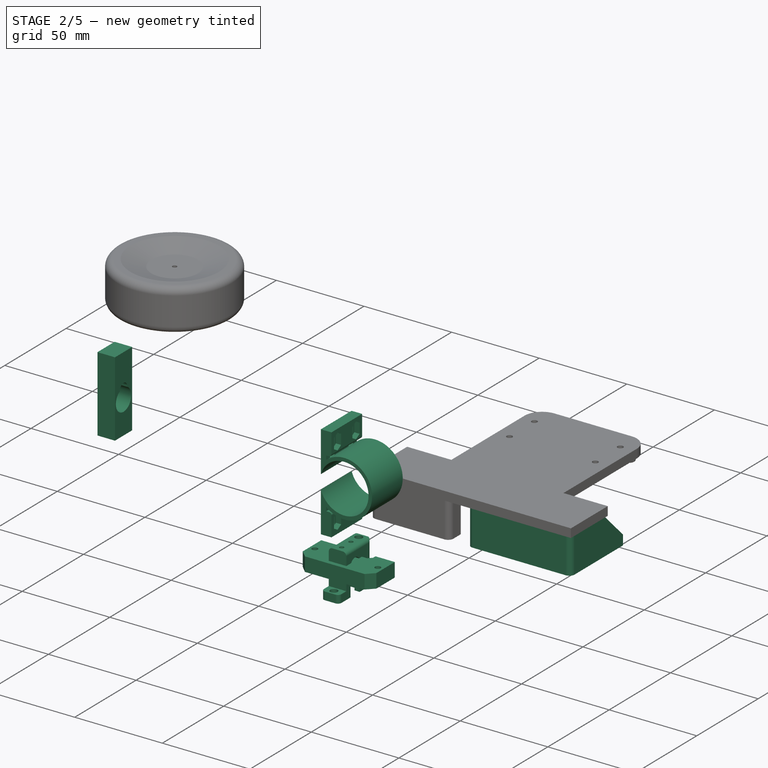
[diagram: stage 2 of 5 — iso view after this stage's code; geometry added in this stage tinted green]
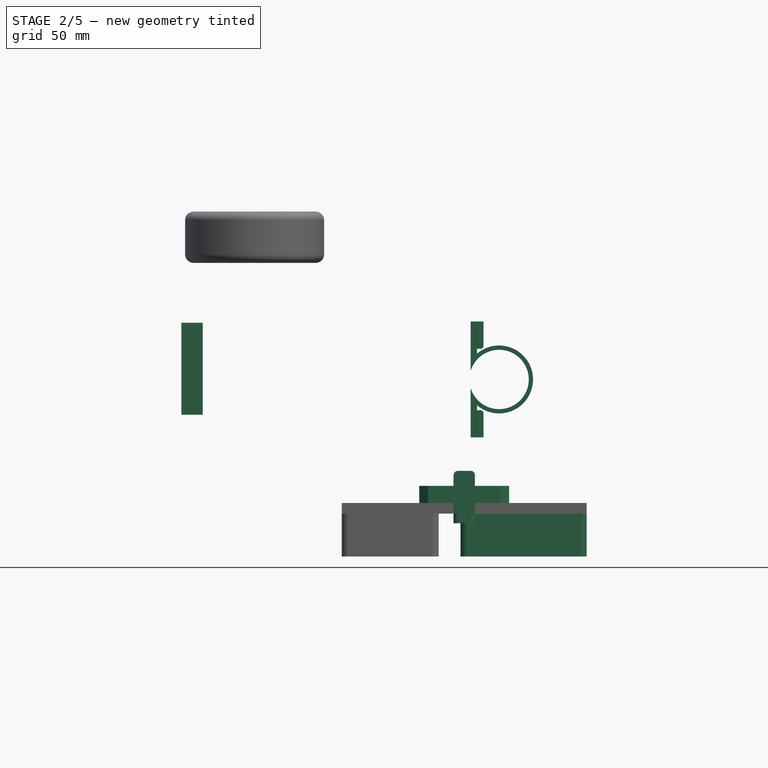
[diagram: stage 2 of 5 — front view after this stage's code; geometry added in this stage tinted green]
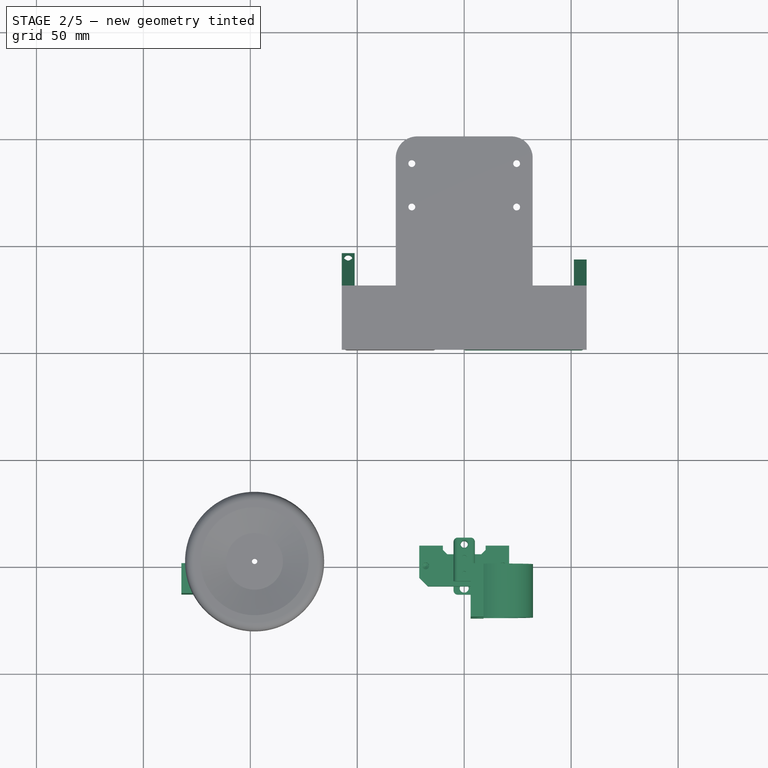
[diagram: stage 2 of 5 — top view after this stage's code; geometry added in this stage tinted green]
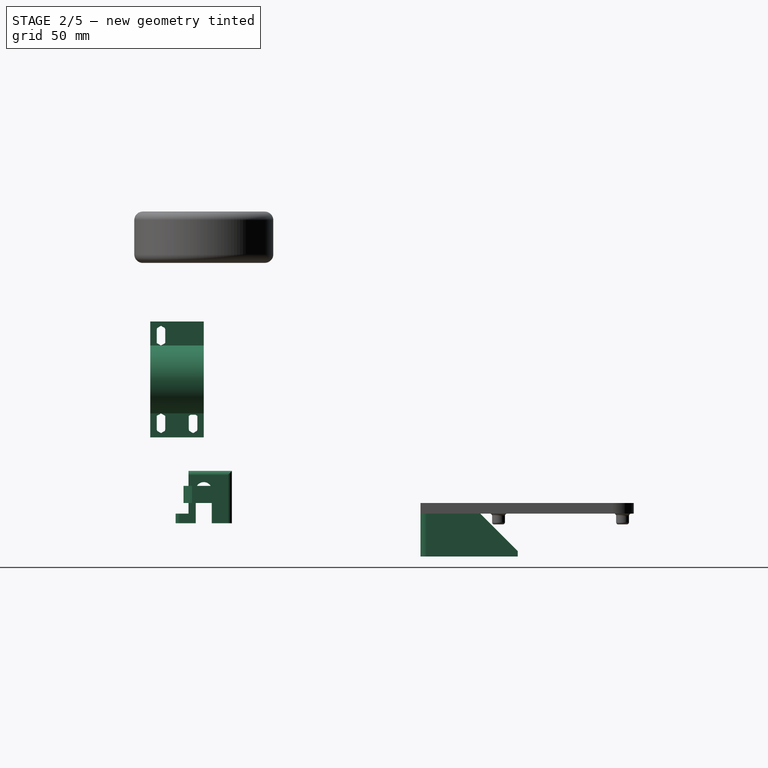
[diagram: stage 2 of 5 — right view after this stage's code; geometry added in this stage tinted green]
FEATURE [PartDesign::Body] Body009  label="Motor"
  AllowCompound = false
  Group = -> [Sketch060,Pad048,Sketch061,Pad049,Sketch062,Pad050,Sketch063,Pad051,Sketch064,Pad052,Fillet008,Sketch065,Pocket019,PolarPattern]
  Origin = -> Origin009
  Placement = pos=(-61.5,0,56.75) rot=(1,0,0;4.71239rad)
  Tip = -> PolarPattern
FEATURE [Sketcher::SketchObject] Sketch066
  ArcFitTolerance = 1e-06
  AttachmentSupport = -> [XY_Plane010]
  FullyConstrained = true
  MakeInternals = false
  MapMode = 5
  sketch-geometry (8):
    g0: LineSegment StartX=-2 StartY=6.15 StartZ=0 EndX=-2 EndY=-6.15 EndZ=0
    g1: LineSegment StartX=-2 StartY=-6.15 StartZ=0 EndX=2 EndY=-6.15 EndZ=0
    g2: LineSegment StartX=2 StartY=-6.15 StartZ=0 EndX=2 EndY=6.15 EndZ=0
    g3: LineSegment StartX=2 StartY=6.15 StartZ=0 EndX=-2 EndY=6.15 EndZ=0
    g4: LineSegment StartX=-5 StartY=13.15 StartZ=0 EndX=-5 EndY=-13.15 EndZ=0
    g5: LineSegment StartX=-5 StartY=-13.15 StartZ=0 EndX=5 EndY=-13.15 EndZ=0
    g6: LineSegment StartX=5 StartY=-13.15 StartZ=0 EndX=5 EndY=13.15 EndZ=0
    g7: LineSegment StartX=5 StartY=13.15 StartZ=0 EndX=-5 EndY=13.15 EndZ=0
  constraints (22):
    c: Coincident(g0,g1)
    c: Coincident(g1,g2)
    c: Coincident(g2,g3)
    c: Coincident(g3,g0)
    c: Vertical(g0)
    c: Vertical(g2)
    c: Horizontal(g1)
    c: Horizontal(g3)
    c: Distance(g0,g2) = 4
    c: Distance(g1,g3) = 12.3
    c: Symmetric(g0,g1,g-1)
    c: Coincident(g4,g5)
    c: Coincident(g5,g6)
    c: Coincident(g6,g7)
    c: Coincident(g7,g4)
    c: Vertical(g4)
    c: Vertical(g6)
    c: Horizontal(g5)
    c: Horizontal(g7)
    c: Distance(g7,g7) = 10
    c: Symmetric(g4,g5,g-1)
    c: Distance(g7,g3) = 7
FEATURE [PartDesign::Pad] Pad053
  Direction = (0,0,1)
  Length = 15
  Length2 = 10
  Profile = -> Sketch066
  ReferenceAxis = -> Sketch066 [N_Axis]
  Suppressed = false
  Type = 0
FEATURE [Sketcher::SketchObject] Sketch067
  ArcFitTolerance = 1e-06
  AttachmentSupport = -> [Pad053]
  FullyConstrained = true
  MakeInternals = false
  MapMode = 5
  Placement = pos=(-5,0,0) rot=(0.57735,-0.57735,-0.57735;2.0944rad)
  sketch-geometry (4):
    g0: LineSegment StartX=-3.75 StartY=0 StartZ=0 EndX=3.75 EndY=0 EndZ=0
    g1: LineSegment StartX=3.75 StartY=0 StartZ=0 EndX=3.75 EndY=6 EndZ=0
    g2: ArcOfCircle CenterX=0 CenterY=6 CenterZ=0 NormalX=0 NormalY=0 NormalZ=1 AngleXU=0 Radius=3.75 StartAngle=0 EndAngle=3.14159
    g3: LineSegment StartX=-3.75 StartY=6 StartZ=0 EndX=-3.75 EndY=0 EndZ=0
  constraints (11):
    c: PointOnObject(g0,g-1)
    c: PointOnObject(g0,g-1)
    c: Coincident(g0,g1)
    c: Vertical(g1)
    c: Tangent(g1,g2) = -1.5708
    c: Coincident(g3,g0)
    c: Vertical(g3)
    c: Tangent(g2,g3) = -1.5708
    c: DistanceX(g0,g0) = 7.5
    c: DistanceY(g-1,g2) = 6
    c: PointOnObject(g2,g-2)
FEATURE [PartDesign::Pocket] Pocket020
  BaseFeature = -> Pad053
  Direction = (1,0,0)
  Length = 5
  Length2 = 5
  Profile = -> Sketch067
  ReferenceAxis = -> Sketch067 [N_Axis]
  Suppressed = false
  Type = 1
FEATURE [PartDesign::Pad] Pad054
  BaseFeature = -> Pocket020
  Direction = (0,0,1)
  Length = 5
  Length2 = 10
  Profile = -> Pocket020 [Edge30,Edge31,Edge7,Edge29]
  Reversed = true
  Suppressed = false
  Type = 0
FEATURE [Sketcher::SketchObject] Sketch068
  ArcFitTolerance = 1e-06
  AttachmentSupport = -> [Pad054]
  FullyConstrained = true
  MakeInternals = false
  MapMode = 5
  Placement = pos=(0,0,15) rot=(0,0,1;0rad)
  sketch-geometry (2):
    g0: Circle CenterX=0 CenterY=3.75 CenterZ=0 NormalX=0 NormalY=0 NormalZ=1 AngleXU=0 Radius=1.25
    g1: Circle CenterX=0 CenterY=-3.75 CenterZ=0 NormalX=0 NormalY=0 NormalZ=1 AngleXU=0 Radius=1.25
  constraints (5):
    c: PointOnObject(g0,g-2)
    c: DistanceY(g1,g0) = 7.5
    c: Symmetric(g0,g1,g-1)
    c: Equal(g0,g1)
    c: Diameter(g0) = 2.5
FEATURE [PartDesign::Hole] Hole003
  BaseFeature = -> Pad054
  CustomThreadClearance = 0
  Depth = 25
  DepthType = 0
  Diameter = 2.4
  DrillForDepth = false
  DrillPoint = 1
  DrillPointAngle = 118
  HoleCutCountersinkAngle = 90
  HoleCutCustomValues = false
  HoleCutDepth = 0
  HoleCutDiameter = 6.1
  HoleCutType = 0
  ModelThread = false
  Profile = -> Sketch068
  Suppressed = false
  Tapered = false
  TaperedAngle = 90
  ThreadClass = 0
  ThreadDepth = 25
  ThreadDepthType = 0
  ThreadDirection = 0
  ThreadFit = 0
  ThreadSize = 6
  ThreadType = 1
  Threaded = false
  UseCustomThreadClearance = false
FEATURE [Sketcher::SketchObject] Sketch069
  ArcFitTolerance = 1e-06
  AttachmentSupport = -> [Hole003]
  ExternalGeometry = -> [Hole003]
  FullyConstrained = true
  MakeInternals = false
  MapMode = 5
  Placement = pos=(0,0,15) rot=(0,0,1;0rad)
  sketch-geometry (2):
    g0: Circle CenterX=0 CenterY=10.15 CenterZ=0 NormalX=0 NormalY=0 NormalZ=1 AngleXU=0 Radius=1.5
    g1: Circle CenterX=0 CenterY=-10.15 CenterZ=0 NormalX=0 NormalY=0 NormalZ=1 AngleXU=0 Radius=1.5
  constraints (6):
    c: PointOnObject(g0,g-2)
    c: PointOnObject(g1,g-2)
    c: Equal(g1,g0)
    c: Distance(g1,g-4) = 3
    c: Distance(g0,g-3) = 3
    c: Diameter(g0) = 3
FEATURE [PartDesign::Hole] Hole004
  BaseFeature = -> Hole003
  CustomThreadClearance = 0
  Depth = 25
  DepthType = 0
  Diameter = 3.4
  DrillForDepth = false
  DrillPoint = 1
  DrillPointAngle = 118
  HoleCutCountersinkAngle = 90
  HoleCutCustomValues = false
  HoleCutDepth = 0
  HoleCutDiameter = 6.1
  HoleCutType = 0
  ModelThread = false
  Profile = -> Sketch069
  Suppressed = false
  Tapered = false
  TaperedAngle = 90
  ThreadClass = 0
  ThreadDepth = 25
  ThreadDepthType = 0
  ThreadDirection = 0
  ThreadFit = 0
  ThreadSize = 9
  ThreadType = 1
  Threaded = false
  UseCustomThreadClearance = false
FEATURE [PartDesign::Hole] Hole005
  BaseFeature = -> Hole004
  CustomThreadClearance = 0
  Depth = 5
  DepthType = 0
  Diameter = 4.2
  DrillForDepth = false
  DrillPoint = 1
  DrillPointAngle = 118
  HoleCutCountersinkAngle = 90
  HoleCutCustomValues = false
  HoleCutDepth = 0
  HoleCutDiameter = 6.1
  HoleCutType = 0
  ModelThread = false
  Profile = -> Hole004 [Edge53,Edge57]
  Refine = true
  Suppressed = false
  Tapered = false
  TaperedAngle = 90
  ThreadClass = 0
  ThreadDepth = 5
  ThreadDepthType = 0
  ThreadDirection = 0
  ThreadFit = 2
  ThreadSize = 10
  ThreadType = 1
  Threaded = false
  UseCustomThreadClearance = false
FEATURE [PartDesign::Fillet] Fillet009
  Base = -> Hole005 [Edge64,Edge61,Edge67,Edge68,Edge62,Edge63]
  BaseFeature = -> Hole005
  Radius = 2
  SupportTransform = false
  Suppressed = false
  UseAllEdges = false
FEATURE [PartDesign::Pad] Pad055
  BaseFeature = -> Fillet009
  Direction = (0,0,-1)
  Length = 8
  Length2 = 10
  Profile = -> Fillet009 [Face16,Face1]
  Refine = true
  Suppressed = false
  Type = 0
FEATURE [Sketcher::SketchObject] Sketch070
  ArcFitTolerance = 1e-06
  AttachmentSupport = -> [XZ_Plane015]
  FullyConstrained = true
  MakeInternals = false
  MapMode = 5
  Placement = pos=(0,0,0) rot=(1,0,0;1.5708rad)
  sketch-geometry (10):
    g0: Circle [constr] CenterX=-126.25 CenterY=80.75 CenterZ=0 NormalX=0 NormalY=0 NormalZ=1 AngleXU=0 Radius=2
    g1: Circle [constr] CenterX=-126.25 CenterY=44.75 CenterZ=0 NormalX=0 NormalY=0 NormalZ=1 AngleXU=0 Radius=2
    g2: LineSegment StartX=-132.25 StartY=84.25 StartZ=0 EndX=-132.25 EndY=41.25 EndZ=0
    g3: LineSegment StartX=-132.25 StartY=41.25 StartZ=0 EndX=-122.25 EndY=41.25 EndZ=0
    g4: LineSegment StartX=-122.25 StartY=41.25 StartZ=0 EndX=-122.25 EndY=84.25 EndZ=0
    g5: LineSegment StartX=-122.25 StartY=84.25 StartZ=0 EndX=-132.25 EndY=84.25 EndZ=0
    g6: Circle CenterX=-126.25 CenterY=79.75 CenterZ=0 NormalX=0 NormalY=0 NormalZ=1 AngleXU=0 Radius=2
    g7: Circle CenterX=-126.25 CenterY=45.75 CenterZ=0 NormalX=0 NormalY=0 NormalZ=1 AngleXU=0 Radius=2
    g8: LineSegment [constr] StartX=-126.25 StartY=45.75 StartZ=0 EndX=-126.25 EndY=41.25 EndZ=0
    g9: LineSegment [constr] StartX=-126.25 StartY=79.75 StartZ=0 EndX=-126.25 EndY=84.25 EndZ=0
  constraints (30):
    c: Diameter(g0) = 4
    c: Equal(g1,g0)
    c: Vertical(g0,g1)
    c: DistanceY(g1,g0) = 36
    c: DistanceX(g1,g-1) = 126.25
    c: DistanceY(g-1,g1) = 44.75
    c: Vertical(g2)
    c: Coincident(g2,g3)
    c: Horizontal(g3)
    c: Coincident(g4,g5)
    c: Coincident(g5,g2)
    c: Vertical(g4)
    c: Horizontal(g5)
    c: Distance(g1,g3) = 3.5
    c: Distance(g0,g5) = 3.5
    c: Distance(g0,g4) = 4
    c: DistanceX(g5,g5) = 10
    c: Coincident(g3,g4)
    c: Equal(g7,g6)
    c: Equal(g6,g0)
    c: Vertical(g6,g0)
    c: Vertical(g0,g7)
    c: DistanceY(g7,g6) = 34
    c: Coincident(g8,g7)
    c: PointOnObject(g8,g3)
    c: Vertical(g8)
    c: Coincident(g9,g6)
    c: PointOnObject(g9,g5)
    c: Vertical(g9)
    c: Equal(g9,g8)
FEATURE [PartDesign::Pad] Pad056
  Direction = (0,-1,2e-16)
  Length = 14
  Length2 = 10
  Placement = pos=(0,0,0) rot=(1,0,0;1.5708rad)
  Profile = -> Sketch070
  ReferenceAxis = -> Sketch070 [N_Axis]
  Suppressed = false
  Type = 0
FEATURE [Part::Feature] Part__Feature  label="SG90 - Micro Servo 9g - Tower Pro.1_Pea"
  Placement = pos=(6.67327,16.8178,27.7832) rot=(0,0,1;0rad)
  shape: bbox 22.5 x 10.3 x 12.2 mm, 10 faces (baked)
FEATURE [Part::Feature] Part__Feature001  label="SG90 - Micro Servo 9g - Tower Pro.1_Pea001"
  Placement = pos=(6.67327,16.8178,27.7832) rot=(0,0,1;0rad)
  shape: bbox 17 x 13 x 0.1 mm, 50 faces (baked)
FEATURE [Part::Feature] Part__Feature002  label="SG90 - Micro Servo 9g - Tower Pro.1_Pea002"
  Placement = pos=(6.67327,16.8178,27.7832) rot=(0,0,1;0rad)
  shape: bbox 17 x 13 x 0.1 mm, 50 faces (baked)
FEATURE [Part::Feature] Part__Feature003  label="SG90 - Micro Servo 9g - Tower Pro.1_Pea003"
  Placement = pos=(6.67327,16.8178,27.7832) rot=(0,0,1;0rad)
  shape: bbox 1.933 x 1 x 1.949 mm, 19 faces (baked)
FEATURE [Part::Feature] Part__Feature004  label="SG90 - Micro Servo 9g - Tower Pro.1_Pea004"
  Placement = pos=(6.67327,16.8178,27.7832) rot=(0,0,1;0rad)
  shape: bbox 1.933 x 1 x 1.949 mm, 19 faces (baked)
FEATURE [Part::Feature] Part__Feature005  label="SG90 - Micro Servo 9g - Tower Pro.1_Pea005"
  Placement = pos=(6.67327,16.8178,27.7832) rot=(0,0,1;0rad)
  shape: bbox 1.933 x 1 x 1.949 mm, 19 faces (baked)
FEATURE [Part::Feature] Part__Feature006  label="SG90 - Micro Servo 9g - Tower Pro.1_Pea006"
  Placement = pos=(6.67327,16.8178,27.7832) rot=(0,0,1;0rad)
  shape: bbox 1.933 x 1 x 1.949 mm, 19 faces (baked)
FEATURE [Part::Feature] Part__Feature007  label="SG90 - Micro Servo 9g - Tower Pro.1_Pea007"
  Placement = pos=(6.67327,16.8178,27.7832) rot=(0,0,1;0rad)
  shape: bbox 22.64 x 5.5 x 12.34 mm, 157 faces (baked)
FEATURE [Part::Feature] Part__Feature008  label="SG90 - Micro Servo 9g - Tower Pro.1_Pea008"
  Placement = pos=(6.67327,16.8178,27.7832) rot=(0,0,1;0rad)
  shape: bbox 3 x 1 x 1 mm, 4 faces (baked)
FEATURE [Part::Feature] Part__Feature009  label="SG90 - Micro Servo 9g - Tower Pro.1_Pea009"
  Placement = pos=(6.67327,16.8178,27.7832) rot=(0,0,1;0rad)
  shape: bbox 3 x 1 x 1 mm, 4 faces (baked)
FEATURE [Part::Feature] Part__Feature010  label="SG90 - Micro Servo 9g - Tower Pro.1_Pea010"
  Placement = pos=(6.67327,16.8178,27.7832) rot=(0,0,1;0rad)
  shape: bbox 3 x 1 x 1 mm, 4 faces (baked)
FEATURE [Part::Feature] Part__Feature011  label="SG90 - Micro Servo 9g - Tower Pro.1_Pea011"
  Placement = pos=(6.67327,16.8178,27.7832) rot=(0,0,1;0rad)
  shape: bbox 32.1 x 11.05 x 13.21 mm, 102 faces (baked)
FEATURE [Part::Feature] Part__Feature012  label="SG90 - Micro Servo 9g - Tower Pro.1_Pea012"
  Placement = pos=(6.67327,16.8178,27.7832) rot=(0,0,1;0rad)
  shape: bbox 4.9 x 7.35 x 4.9 mm, 186 faces (baked)
FEATURE [App::Part] SG90___Micro_Servo_9g___Tower_Pro_1_Pe____a  label="SG90 - Micro Servo 9g - Tower Pro.1_Pea013"
  Group = -> [Part__Feature,Part__Feature001,Part__Feature002,Part__Feature003,Part__Feature004,Part__Feature005,Part__Feature006,Part__Feature007,Part__Feature008,Part__Feature009,Part__Feature010,Part__Feature011,Part__Feature012]
  Origin = -> Origin016
FEATURE [Part::Feature] Part__Feature013  label="SG90 - Micro Servo 9g - Tower Pro.2_Pea"
  Placement = pos=(1.52327,37.9178,27.7832) rot=(0,1,0;4.71239rad)
  shape: bbox 6.9 x 3.8 x 19.5 mm, 206 faces (baked)
FEATURE [Part::Feature] Part__Feature014  label="SG90 - Micro Servo 9g - Tower Pro.3_Pea"
  Placement = pos=(1.52327,37.9178,27.7832) rot=(0,0,1;0rad)
  shape: bbox 32.1 x 3.8 x 6.9 mm, 222 faces (baked)
FEATURE [Part::Feature] Part__Feature015  label="SG90 - Micro Servo 9g - Tower Pro.4_Pea"
  Placement = pos=(1.52327,37.9178,27.7832) rot=(0,0,1;0rad)
  shape: bbox 34.5 x 3.8 x 16.7 mm, 239 faces (baked)
FEATURE [Part::Feature] Part__Feature016  label="SG90 - Micro Servo 9g - Tower Pro.5_BS EN ISO 7045 - M2 x 8 - Z - 8S"
  Placement = pos=(20.5733,20.3178,27.7832) rot=(0.707107,0.707107,0;3.14159rad)
  shape: bbox 4.8 x 9.6 x 4.8 mm, 126 faces (baked)
FEATURE [Part::Feature] Part__Feature017  label="SG90 - Micro Servo 9g - Tower Pro.5_BS EN ISO 7045 - M2 x 8 - Z - 8S001"
  Placement = pos=(-7.22673,20.3178,27.7832) rot=(-0.707107,-0.707107,0;3.14159rad)
  shape: bbox 4.8 x 9.6 x 4.8 mm, 126 faces (baked)
FEATURE [Part::Feature] Part__Feature018  label="SG90 - Micro Servo 9g - Tower Pro.6_BS EN ISO 7045 - M2 x 4 - Z - 4S"
  Placement = pos=(1.52327,38.2178,27.7832) rot=(0,0,-1;1.5708rad)
  shape: bbox 3.356 x 5.3 x 3.356 mm, 95 faces (baked)
FEATURE [App::Part] SG90___Micro_Servo_9g___Tower_Pro  label="SG90 - Micro Servo 9g - Tower Pro"
  Group = -> [SG90___Micro_Servo_9g___Tower_Pro_1_Pe____a,Part__Feature013,Part__Feature014,Part__Feature015,Part__Feature016,Part__Feature017,Part__Feature018]
  Origin = -> Origin017
  Placement = pos=(-97.75,20.75,61.25) rot=(-0.57735,0.57735,-0.57735;4.18879rad)
FEATURE [PartDesign::ShapeBinder] ShapeBinder
  Placement = pos=(6.67327,16.8178,27.7832) rot=(0,0,1;0rad)
  Support = -> [Part__Feature011]
  TraceSupport = false
FEATURE [Sketcher::SketchObject] Sketch071
  ArcFitTolerance = 1e-06
  AttachmentSupport = -> [Pad056]
  ExternalGeometry = -> [Pad056]
  FullyConstrained = true
  MakeInternals = false
  MapMode = 5
  Placement = pos=(-132.25,0,0) rot=(0.707107,0,-0.707107;3.14159rad)
  sketch-geometry (5):
    g0: ArcOfCircle CenterX=-65.35 CenterY=7 CenterZ=0 NormalX=0 NormalY=0 NormalZ=1 AngleXU=0 Radius=3.05 StartAngle=1.52394 EndAngle=4.75924
    g1: ArcOfCircle CenterX=-59.75 CenterY=7 CenterZ=0 NormalX=0 NormalY=0 NormalZ=1 AngleXU=0 Radius=6.25 StartAngle=3.65078 EndAngle=8.91559
    g2: GeomPoint X=-84.25 Y=7 Z=0
    g3: GeomPoint X=-59.75 Y=14 Z=0
    g4: GeomPoint [constr] X=-62.75 Y=14 Z=0
  constraints (12):
    c: Coincident(g1,g0)
    c: Coincident(g1,g0)
    c: Horizontal(g0,g1)
    c: Radius(g0) = 3.05
    c: Radius(g1) = 6.25
    c: DistanceX(g0,g1) = 5.6
    c: Symmetric(g-3,g-3,g2)
    c: Vertical(g1,g3)
    c: Horizontal(g1,g2)
    c: Symmetric(g-4,g-4,g4)
    c: DistanceX(g4,g3) = 3
    c: PointOnObject(g3,g-4)
FEATURE [PartDesign::Pocket] Pocket021
  BaseFeature = -> Pad056
  Direction = (1,0,2e-16)
  Length = 5
  Length2 = 5
  Placement = pos=(0,0,0) rot=(1,0,0;1.5708rad)
  Profile = -> Sketch071
  ReferenceAxis = -> Sketch071 [N_Axis]
  Suppressed = false
  Type = 1
FEATURE [Part::Feature] Part__Feature019  label="Body003"
  Placement = pos=(-79.25,16.25,57.75) rot=(0.57735,-0.57735,-0.57735;4.18879rad)
  shape: bbox 25 x 33.5 x 51 mm, 15 faces (baked)
FEATURE [Sketcher::SketchObject] Sketch076
  ArcFitTolerance = 1e-06
  AttachmentSupport = -> [XZ_Plane018]
  FullyConstrained = true
  MakeInternals = false
  MapMode = 5
  Placement = pos=(0,0,0) rot=(1,0,0;1.5708rad)
  sketch-geometry (9):
    g0: Circle [constr] CenterX=16.3 CenterY=57.75 CenterZ=0 NormalX=0 NormalY=0 NormalZ=1 AngleXU=0 Radius=13.875
    g1: ArcOfCircle CenterX=16.3 CenterY=57.75 CenterZ=0 NormalX=0 NormalY=0 NormalZ=1 AngleXU=0 Radius=13.875 StartAngle=3.43049 EndAngle=9.13588
    g2: ArcOfCircle CenterX=16.3 CenterY=57.75 CenterZ=0 NormalX=0 NormalY=0 NormalZ=1 AngleXU=0 Radius=15.875 StartAngle=4.00636 EndAngle=8.56001
    g3: LineSegment StartX=3 StartY=61.7029 StartZ=0 EndX=3 EndY=84.83 EndZ=0
    g4: LineSegment StartX=3 StartY=84.83 StartZ=0 EndX=6 EndY=84.83 EndZ=0
    g5: LineSegment StartX=6 StartY=84.83 StartZ=0 EndX=6 EndY=69.83 EndZ=0
    g6: LineSegment StartX=3 StartY=53.7971 StartZ=0 EndX=3 EndY=30.67 EndZ=0
    g7: LineSegment StartX=3 StartY=30.67 StartZ=0 EndX=6 EndY=30.67 EndZ=0
    g8: LineSegment StartX=6 StartY=30.67 StartZ=0 EndX=6 EndY=45.67 EndZ=0
  constraints (27):
    c: Diameter(g0) = 27.75
    c: Distance(g0,g-2) = 16.3
    c: DistanceY(g-1,g0) = 57.75
    c: Coincident(g1,g0)
    c: PointOnObject(g1,g0)
    c: Vertical(g1,g1)
    c: Coincident(g2,g0)
    c: DistanceX(g1,g2) = 3
    c: DistanceX(g1,g2) = 3
    c: Distance(g1,g2) = 2
    c: Coincident(g1,g3)
    c: Coincident(g3,g4)
    c: Horizontal(g4)
    c: Coincident(g4,g5)
    c: Coincident(g5,g2)
    c: Vertical(g3)
    c: Vertical(g5)
    c: Coincident(g1,g6)
    c: Coincident(g6,g7)
    c: Horizontal(g7)
    c: Coincident(g7,g8)
    c: Coincident(g8,g2)
    c: Vertical(g8)
    c: Equal(g3,g6)
    c: Vertical(g6)
    c: Distance(g1,g-2) = 3
    c: DistanceY(g5,g5) = 15
FEATURE [PartDesign::Pad] Pad058
  Direction = (0,-1,2e-16)
  Length = 25
  Length2 = 10
  Placement = pos=(0,0,0) rot=(1,0,0;1.5708rad)
  Profile = -> Sketch076
  ReferenceAxis = -> Sketch076 [N_Axis]
  Suppressed = false
  Type = 0
FEATURE [Sketcher::SketchObject] Sketch077
  ArcFitTolerance = 1e-06
  AttachmentSupport = -> [Pad058]
  ExternalGeometry = -> [Pad058]
  FullyConstrained = true
  MakeInternals = false
  MapMode = 5
  Placement = pos=(3,0,0) rot=(0.707107,0,-0.707107;3.14159rad)
  sketch-geometry (18):
    g0: ArcOfCircle CenterX=-80.83 CenterY=20 CenterZ=0 NormalX=0 NormalY=0 NormalZ=1 AngleXU=0 Radius=2 StartAngle=1.5708 EndAngle=4.71239
    g1: ArcOfCircle CenterX=-70.83 CenterY=20 CenterZ=0 NormalX=0 NormalY=0 NormalZ=1 AngleXU=0 Radius=2 StartAngle=4.71239 EndAngle=7.85398
    g2: LineSegment StartX=-80.83 StartY=22 StartZ=0 EndX=-70.83 EndY=22 EndZ=0
    g3: LineSegment StartX=-80.83 StartY=18 StartZ=0 EndX=-70.83 EndY=18 EndZ=0
    g4: ArcOfCircle CenterX=-80.83 CenterY=5 CenterZ=0 NormalX=0 NormalY=0 NormalZ=1 AngleXU=0 Radius=2 StartAngle=1.5708 EndAngle=4.71239
    g5: ArcOfCircle CenterX=-70.83 CenterY=5 CenterZ=0 NormalX=0 NormalY=0 NormalZ=1 AngleXU=0 Radius=2 StartAngle=4.71239 EndAngle=7.85398
    g6: LineSegment StartX=-80.83 StartY=7 StartZ=0 EndX=-70.83 EndY=7 EndZ=0
    g7: LineSegment StartX=-80.83 StartY=3 StartZ=0 EndX=-70.83 EndY=3 EndZ=0
    g8: ArcOfCircle CenterX=-44.67 CenterY=20 CenterZ=0 NormalX=0 NormalY=0 NormalZ=1 AngleXU=0 Radius=2 StartAngle=1.5708 EndAngle=4.71239
    g9: ArcOfCircle CenterX=-34.67 CenterY=20 CenterZ=0 NormalX=0 NormalY=0 NormalZ=1 AngleXU=0 Radius=2 StartAngle=4.71239 EndAngle=7.85398
    g10: LineSegment StartX=-44.67 StartY=22 StartZ=0 EndX=-34.67 EndY=22 EndZ=0
    g11: LineSegment StartX=-44.67 StartY=18 StartZ=0 EndX=-34.67 EndY=18 EndZ=0
    g12: ArcOfCircle CenterX=-44.67 CenterY=5 CenterZ=0 NormalX=0 NormalY=0 NormalZ=1 AngleXU=0 Radius=2 StartAngle=1.5708 EndAngle=4.71239
    g13: ArcOfCircle CenterX=-34.67 CenterY=5 CenterZ=0 NormalX=0 NormalY=0 NormalZ=1 AngleXU=0 Radius=2 StartAngle=4.71239 EndAngle=7.85398
    g14: LineSegment StartX=-44.67 StartY=7 StartZ=0 EndX=-34.67 EndY=7 EndZ=0
    g15: LineSegment StartX=-44.67 StartY=3 StartZ=0 EndX=-34.67 EndY=3 EndZ=0
    g16: GeomPoint X=-75.83 Y=12.5 Z=0
    g17: GeomPoint X=-61.7029 Y=12.5 Z=0
  constraints (42):
    c: Tangent(g0,g2) = 1.5708
    c: Tangent(g0,g3) = -1.5708
    c: Tangent(g1,g2) = 1.5708
    c: Tangent(g1,g3) = -1.5708
    c: Equal(g0,g1)
    c: Horizontal(g2)
    c: Tangent(g4,g6) = 1.5708
    c: Tangent(g4,g7) = -1.5708
    c: Tangent(g5,g6) = 1.5708
    c: Tangent(g5,g7) = -1.5708
    c: Equal(g4,g5)
    c: Horizontal(g6)
    c: Tangent(g8,g10) = 1.5708
    c: Tangent(g8,g11) = -1.5708
    c: Tangent(g9,g10) = 1.5708
    c: Tangent(g9,g11) = -1.5708
    c: Equal(g8,g9)
    c: Tangent(g12,g14) = 1.5708
    c: Tangent(g12,g15) = -1.5708
    c: Tangent(g13,g14) = 1.5708
    c: Tangent(g13,g15) = -1.5708
    c: Equal(g12,g13)
    c: Horizontal(g12,g13)
    c: Horizontal(g8,g9)
    c: Vertical(g8,g12)
    c: Vertical(g5,g1)
    c: Vertical(g0,g4)
    c: Vertical(g9,g13)
    c: Equal(g14,g3)
    c: Equal(g8,g12)
    c: Equal(g12,g0)
    c: Equal(g0,g4)
    c: Horizontal(g1,g8)
    c: Horizontal(g12,g5)
    c: DistanceY(g4,g0) = 15
    c: Symmetric(g0,g5,g16)
    c: Symmetric(g-6,g-6,g17)
    c: Horizontal(g17,g16)
    c: Radius(g1) = 2
    c: DistanceX(g-5,g0) = 4
    c: DistanceX(g2,g2) = 10
    c: DistanceX(g9,g-4) = 4
FEATURE [PartDesign::Pocket] Pocket025
  BaseFeature = -> Pad058
  Direction = (1,0,2e-16)
  Length = 0
  Length2 = 5
  Placement = pos=(0,0,0) rot=(1,0,0;1.5708rad)
  Profile = -> Sketch077
  ReferenceAxis = -> Sketch077 [N_Axis]
  Suppressed = false
  Type = 3
  UpToFace = -> Pad058 [Face4]
FEATURE [Sketcher::SketchObject] Sketch079
  ArcFitTolerance = 1e-06
  AttachmentSupport = -> [Pocket021]
  ExternalGeometry = -> [Pocket021]
  FullyConstrained = true
  MakeInternals = false
  MapMode = 5
  Placement = pos=(0,-14,0) rot=(1,0,0;1.5708rad)
  sketch-geometry (2):
    g0: Circle CenterX=-126.25 CenterY=79.75 CenterZ=0 NormalX=0 NormalY=0 NormalZ=1 AngleXU=0 Radius=2
    g1: Circle CenterX=-126.25 CenterY=45.75 CenterZ=0 NormalX=0 NormalY=0 NormalZ=1 AngleXU=0 Radius=2
  constraints (4):
    c: Coincident(g0,g-5)
    c: Equal(g0,g-5)
    c: Coincident(g1,g-6)
    c: Equal(g1,g-6)
FEATURE [PartDesign::Pad] Pad059
  BaseFeature = -> Pocket021
  Direction = (0,-1,2e-16)
  Length = 5
  Length2 = 10
  Placement = pos=(0,0,0) rot=(1,0,0;1.5708rad)
  Profile = -> Sketch079
  ReferenceAxis = -> Sketch079 [N_Axis]
  Reversed = true
  Suppressed = false
  Type = 0
FEATURE [Sketcher::SketchObject] Sketch082
  ArcFitTolerance = 1e-06
  AttachmentSupport = -> [XY_Plane019]
  FullyConstrained = true
  MakeInternals = false
  MapMode = 5
  sketch-geometry (5):
    g0: LineSegment StartX=-21 StartY=-9.5 StartZ=0 EndX=21 EndY=-9.5 EndZ=0
    g1: LineSegment StartX=21 StartY=-9.5 StartZ=0 EndX=21 EndY=9.5 EndZ=0
    g2: LineSegment StartX=21 StartY=9.5 StartZ=0 EndX=-21 EndY=9.5 EndZ=0
    g3: LineSegment StartX=-21 StartY=9.5 StartZ=0 EndX=-21 EndY=-9.5 EndZ=0
    g4: GeomPoint [constr] X=0 Y=0 Z=0
  constraints (12):
    c: Coincident(g0,g1)
    c: Coincident(g1,g2)
    c: Coincident(g2,g3)
    c: Coincident(g3,g0)
    c: Horizontal(g0)
    c: Horizontal(g2)
    c: Vertical(g1)
    c: Vertical(g3)
    c: Symmetric(g2,g0,g4)
    c: Distance(g1,g3) = 42
    c: Distance(g0,g2) = 19
    c: Coincident(g4,g-1)
FEATURE [PartDesign::Pad] Pad060
  Direction = (0,0,1)
  Length = 8
  Length2 = 10
  Profile = -> Sketch082
  ReferenceAxis = -> Sketch082 [N_Axis]
  Suppressed = false
  Type = 0
FEATURE [PartDesign::Chamfer] Chamfer001
  Angle = 45
  Base = -> Pad060 [Edge1,Edge2]
  BaseFeature = -> Pad060
  ChamferType = 0
  FlipDirection = false
  Size = 4
  Size2 = 1
  SupportTransform = false
  Suppressed = false
  UseAllEdges = false
FEATURE [Sketcher::SketchObject] Sketch083
  ArcFitTolerance = 1e-06
  AttachmentSupport = -> [Chamfer001]
  ExternalGeometry = -> [Chamfer001]
  FullyConstrained = true
  MakeInternals = false
  MapMode = 5
  Placement = pos=(0,0,8) rot=(0,0,1;0rad)
  sketch-geometry (2):
    g0: Circle CenterX=-18 CenterY=0 CenterZ=0 NormalX=0 NormalY=0 NormalZ=1 AngleXU=0 Radius=1
    g1: Circle CenterX=18 CenterY=0 CenterZ=0 NormalX=0 NormalY=0 NormalZ=1 AngleXU=0 Radius=1
  constraints (5):
    c: PointOnObject(g0,g-1)
    c: DistanceX(g0,g1) = 36
    c: Symmetric(g0,g1,g-1)
    c: Equal(g0,g1)
    c: Diameter(g1) = 2
FEATURE [PartDesign::Hole] Hole007
  BaseFeature = -> Chamfer001
  CustomThreadClearance = 0
  Depth = 6
  DepthType = 0
  Diameter = 3.2
  DrillForDepth = false
  DrillPoint = 1
  DrillPointAngle = 118
  HoleCutCountersinkAngle = 90
  HoleCutCustomValues = false
  HoleCutDepth = 0
  HoleCutDiameter = 6.1
  HoleCutType = 0
  ModelThread = false
  Profile = -> Sketch083
  Suppressed = false
  Tapered = false
  TaperedAngle = 90
  ThreadClass = 0
  ThreadDepth = 6
  ThreadDepthType = 0
  ThreadDirection = 0
  ThreadFit = 1
  ThreadSize = 0
  ThreadType = 0
  Threaded = false
  UseCustomThreadClearance = false
FEATURE [Sketcher::SketchObject] Sketch084
  ArcFitTolerance = 1e-06
  AttachmentSupport = -> [Hole007]
  ExternalGeometry = -> [Hole007]
  FullyConstrained = true
  MakeInternals = false
  MapMode = 5
  Placement = pos=(0,0,8) rot=(0,0,1;0rad)
  sketch-geometry (5):
    g0: LineSegment StartX=-10 StartY=5.5 StartZ=0 EndX=10 EndY=5.5 EndZ=0
    g1: LineSegment StartX=10 StartY=5.5 StartZ=0 EndX=10 EndY=13.5 EndZ=0
    g2: LineSegment StartX=10 StartY=13.5 StartZ=0 EndX=-10 EndY=13.5 EndZ=0
    g3: LineSegment StartX=-10 StartY=13.5 StartZ=0 EndX=-10 EndY=5.5 EndZ=0
    g4: GeomPoint [constr] X=-5e-16 Y=9.5 Z=0
  constraints (12):
    c: Coincident(g0,g1)
    c: Coincident(g1,g2)
    c: Coincident(g2,g3)
    c: Coincident(g3,g0)
    c: Horizontal(g0)
    c: Horizontal(g2)
    c: Vertical(g1)
    c: Vertical(g3)
    c: Symmetric(g2,g0,g4)
    c: Distance(g1,g3) = 20
    c: Distance(g0,g2) = 8
    c: Symmetric(g-3,g-3,g4)
FEATURE [PartDesign::Pocket] Pocket028
  BaseFeature = -> Hole007
  Direction = (0,0,-1)
  Length = 5
  Length2 = 5
  Profile = -> Sketch084
  ReferenceAxis = -> Sketch084 [N_Axis]
  Suppressed = false
  Type = 1
FEATURE [PartDesign::Chamfer] Chamfer002
  Angle = 45
  Base = -> Pocket028 [Edge30,Edge29]
  BaseFeature = -> Pocket028
  ChamferType = 0
  FlipDirection = false
  Size = 2
  Size2 = 1
  SupportTransform = false
  Suppressed = false
  UseAllEdges = false
FEATURE [PartDesign::FeatureBase] Clone005
  BaseFeature = -> Body016
  Suppressed = false
FEATURE [PartDesign::Body] Body002
  AllowCompound = false
  Group = -> [Sketch005,Pad004,Mirrored,Fillet,Sketch073,Pocket022,Fillet010,Fillet011,Sketch074,Pocket023,Sketch078,Pocket026,Sketch089,Pocket029]
  Origin = -> Origin002
  Placement = pos=(-136.25,1.39e-14,62.75) rot=(-0.57735,-0.57735,-0.57735;2.0944rad)
  Tip = -> Pocket029
FEATURE [PartDesign::Pocket] Pocket030
  BaseFeature = -> Pad055
  Direction = (0,0,-1)
  Length = 23
  Length2 = 5
  Profile = -> Pad055 [Edge38]
  Suppressed = false
  Type = 0
FEATURE [Sketcher::SketchObject] Sketch091
  ArcFitTolerance = 1e-06
  AttachmentSupport = -> [Pocket030]
  ExternalGeometry = -> [Pocket030]
  FullyConstrained = true
  MakeInternals = false
  MapMode = 5
  Placement = pos=(0,-13.15,0) rot=(1,0,0;1.5708rad)
  sketch-geometry (4):
    g0: LineSegment StartX=-7.5 StartY=15 StartZ=0 EndX=-7.5 EndY=-5 EndZ=0
    g1: LineSegment StartX=-7.5 StartY=-5 StartZ=0 EndX=7.5 EndY=-5 EndZ=0
    g2: LineSegment StartX=7.5 StartY=-5 StartZ=0 EndX=7.5 EndY=15 EndZ=0
    g3: LineSegment StartX=7.5 StartY=15 StartZ=0 EndX=-7.5 EndY=15 EndZ=0
  constraints (11):
    c: Coincident(g0,g1)
    c: Coincident(g1,g2)
    c: Coincident(g2,g3)
    c: Coincident(g3,g0)
    c: Vertical(g0)
    c: Vertical(g2)
    c: Horizontal(g1)
    c: PointOnObject(g-3,g3)
    c: DistanceY(g2,g2) = 20
    c: DistanceX(g3,g3) = 15
    c: Symmetric(g0,g2,g-2)
FEATURE [PartDesign::Pocket] Pocket031
  BaseFeature = -> Pocket030
  Direction = (0,1,-2e-16)
  Length = 6
  Length2 = 5
  Profile = -> Sketch091
  ReferenceAxis = -> Sketch091 [N_Axis]
  Suppressed = false
  Type = 0
FEATURE [PartDesign::Pad] Pad064
  BaseFeature = -> Pocket031
  Direction = (0,0,-1)
  Length = 1.5
  Length2 = 10
  Profile = -> Pocket031 [Face19,Face1]
  Suppressed = false
  Type = 0
FEATURE [PartDesign::Body] Body013  label="AxisScrewAdapter4"
  AllowCompound = false
  Group = -> [Clone003]
  Origin = -> Origin013
  Placement = pos=(160.25,0,-49.5) rot=(0,0,1;0rad)
  Tip = -> Clone003
FEATURE [App::Part] Part
  Group = -> [Body003,Body004,Body005,Body006,Body007,Body008,Body009,Body010,Body011,Body013,Body012,Body]
  Origin = -> Origin014
  Placement = pos=(-20.25,16.25,1) rot=(0,0,1;0rad)
FEATURE [Sketcher::SketchObject] Sketch092
  ArcFitTolerance = 1e-06
  AttachmentSupport = -> [Pocket025]
  ExternalGeometry = -> [Pocket025]
  FullyConstrained = true
  MakeInternals = false
  MapMode = 5
  Placement = pos=(6,0,0) rot=(0.707107,0,0.707107;3.14159rad)
  sketch-geometry (34):
    g0: LineSegment StartX=81.1268 StartY=22.95 StartZ=0 EndX=82.83 EndY=20 EndZ=0
    g1: LineSegment StartX=82.83 StartY=20 StartZ=0 EndX=81.1268 EndY=17.05 EndZ=0
    g2: LineSegment StartX=81.1268 StartY=17.05 StartZ=0 EndX=75.3282 EndY=17.05 EndZ=0
    g3: LineSegment StartX=75.3282 StartY=17.05 StartZ=0 EndX=73.625 EndY=20 EndZ=0
    g4: LineSegment StartX=73.625 StartY=20 StartZ=0 EndX=75.3282 EndY=22.95 EndZ=0
    g5: LineSegment StartX=75.3282 StartY=22.95 StartZ=0 EndX=81.1268 EndY=22.95 EndZ=0
    g6: LineSegment StartX=84.83 StartY=25 StartZ=0 EndX=72.125 EndY=25 EndZ=0
    g7: GeomPoint [constr] X=78.2275 Y=20 Z=0
    g8: LineSegment StartX=72.125 StartY=25 StartZ=0 EndX=72.125 EndY=-1.42e-14 EndZ=0
    g9: LineSegment StartX=72.125 StartY=-1.42e-14 StartZ=0 EndX=84.83 EndY=-1.42e-14 EndZ=0
    g10: LineSegment StartX=84.83 StartY=-1.42e-14 StartZ=0 EndX=84.83 EndY=25 EndZ=0
    g11: LineSegment StartX=30.67 StartY=-1.42e-14 StartZ=0 EndX=43.375 EndY=-1.42e-14 EndZ=0
    g12: LineSegment StartX=43.375 StartY=-1.42e-14 StartZ=0 EndX=43.375 EndY=25 EndZ=0
    g13: LineSegment StartX=43.375 StartY=25 StartZ=0 EndX=30.67 EndY=25 EndZ=0
    g14: LineSegment StartX=30.67 StartY=25 StartZ=0 EndX=30.67 EndY=-1.42e-14 EndZ=0
    g15: GeomPoint [constr] X=37.0225 Y=12.5 Z=0
    g16: LineSegment StartX=32.67 StartY=20 StartZ=0 EndX=34.3732 EndY=22.95 EndZ=0
    g17: LineSegment StartX=34.3732 StartY=22.95 StartZ=0 EndX=40.1718 EndY=22.95 EndZ=0
    g18: LineSegment StartX=40.1718 StartY=22.95 StartZ=0 EndX=41.875 EndY=20 EndZ=0
    g19: LineSegment StartX=41.875 StartY=20 StartZ=0 EndX=40.1718 EndY=17.05 EndZ=0
    g20: LineSegment StartX=40.1718 StartY=17.05 StartZ=0 EndX=34.3732 EndY=17.05 EndZ=0
    g21: LineSegment StartX=34.3732 StartY=17.05 StartZ=0 EndX=32.67 EndY=20 EndZ=0
    g22: LineSegment StartX=32.67 StartY=5 StartZ=0 EndX=34.3732 EndY=7.95 EndZ=0
    g23: LineSegment StartX=34.3732 StartY=7.95 StartZ=0 EndX=40.1718 EndY=7.95 EndZ=0
    g24: LineSegment StartX=40.1718 StartY=7.95 StartZ=0 EndX=41.875 EndY=5 EndZ=0
    g25: LineSegment StartX=41.875 StartY=5 StartZ=0 EndX=40.1718 EndY=2.05 EndZ=0
    g26: LineSegment StartX=40.1718 StartY=2.05 StartZ=0 EndX=34.3732 EndY=2.05 EndZ=0
    g27: LineSegment StartX=34.3732 StartY=2.05 StartZ=0 EndX=32.67 EndY=5 EndZ=0
    g28: LineSegment StartX=75.3282 StartY=7.95 StartZ=0 EndX=73.625 EndY=5 EndZ=0
    g29: LineSegment StartX=73.625 StartY=5 StartZ=0 EndX=75.3282 EndY=2.05 EndZ=0
    g30: LineSegment StartX=75.3282 StartY=2.05 StartZ=0 EndX=81.1268 EndY=2.05 EndZ=0
    g31: LineSegment StartX=81.1268 StartY=2.05 StartZ=0 EndX=82.83 EndY=5 EndZ=0
    g32: LineSegment StartX=82.83 StartY=5 StartZ=0 EndX=81.1268 EndY=7.95 EndZ=0
    g33: LineSegment StartX=81.1268 StartY=7.95 StartZ=0 EndX=75.3282 EndY=7.95 EndZ=0
  constraints (96):
    c: Coincident(g0,g1)
    c: Coincident(g1,g2)
    c: Horizontal(g2)
    c: Coincident(g2,g3)
    c: Coincident(g3,g4)
    c: Coincident(g4,g5)
    c: Coincident(g5,g0)
    c: Horizontal(g5)
    c: Vertical(g-5,g3)
    c: Angle(g0,g1) = 2.0944
    c: Angle(g3,g4) = 2.0944
    c: Angle(g2,g3) = 2.0944
    c: Equal(g1,g0)
    c: Equal(g0,g4)
    c: Equal(g4,g3)
    c: Distance(g2,g5) = 5.9
    c: Horizontal(g-3,g0)
    c: PointOnObject(g0,g-3)
    c: Horizontal(g6)
    c: Symmetric(g1,g4,g7)
    c: Vertical(g8)
    c: Coincident(g8,g9)
    c: Coincident(g9,g10)
    c: Vertical(g10)
    c: Horizontal(g9)
    c: Coincident(g11,g12)
    c: Coincident(g12,g13)
    c: Coincident(g13,g14)
    c: Coincident(g14,g11)
    c: Horizontal(g11)
    c: Horizontal(g13)
    c: Vertical(g12)
    c: Vertical(g14)
    c: Symmetric(g13,g11,g15)
    c: Equal(g6,g13)
    c: Horizontal(g12,g6)
    c: Equal(g12,g8)
    c: Coincident(g10,g6)
    c: Coincident(g8,g6)
    c: Distance(g3,g8) = 1.5
    c: Coincident(g6,g-9)
    c: Coincident(g-10,g11)
    c: Coincident(g16,g17)
    c: Horizontal(g17)
    c: Coincident(g17,g18)
    c: Coincident(g18,g19)
    c: Coincident(g19,g20)
    c: Horizontal(g20)
    c: Coincident(g20,g21)
    c: Coincident(g21,g16)
    c: Coincident(g22,g23)
    c: Horizontal(g23)
    c: Coincident(g23,g24)
    c: Coincident(g24,g25)
    c: Coincident(g25,g26)
    c: Horizontal(g26)
    c: Coincident(g26,g27)
    c: Coincident(g27,g22)
    c: Coincident(g28,g29)
    c: Coincident(g29,g30)
    c: Horizontal(g30)
    c: Coincident(g30,g31)
    c: Coincident(g31,g32)
    c: Coincident(g32,g33)
    c: Coincident(g33,g28)
    c: Horizontal(g33)
    c: Equal(g24,g25)
    c: Equal(g25,g27)
    c: Equal(g27,g22)
    c: Equal(g28,g29)
    c: Equal(g29,g31)
    c: Equal(g31,g32)
    c: Equal(g16,g21)
    c: Equal(g21,g19)
    c: Equal(g19,g18)
    c: Equal(g21,g22)
    c: Equal(g22,g28)
    c: Equal(g28,g3)
    c: Equal(g17,g23)
    c: Equal(g23,g33)
    c: Equal(g33,g2)
    c: Horizontal(g19,g2)
    c: Horizontal(g17,g4)
    c: Vertical(g23,g19)
    c: Vertical(g25,g17)
    c: Horizontal(g16,g18)
    c: Vertical(g19,g17)
    c: Vertical(g26,g22)
    c: Horizontal(g28,g23)
    c: Horizontal(g25,g29)
    c: Vertical(g24,g18)
    c: Vertical(g29,g28)
    c: Vertical(g30,g32)
    c: Vertical(g28,g2)
    c: Horizontal(g-4,g31)
    c: PointOnObject(g16,g-11)
FEATURE [PartDesign::Pad] Pad065
  BaseFeature = -> Pocket025
  Direction = (1,0,-2e-16)
  Length = 3
  Length2 = 10
  Placement = pos=(0,0,0) rot=(1,0,0;1.5708rad)
  Profile = -> Sketch092
  ReferenceAxis = -> Sketch092 [N_Axis]
  Suppressed = false
  Type = 0
FEATURE [PartDesign::Fillet] Fillet012
  Base = -> Pad065 [Edge198,Edge185]
  BaseFeature = -> Pad065
  Placement = pos=(0,0,0) rot=(1,0,0;1.5708rad)
  Radius = 1.4
  Refine = true
  SupportTransform = false
  Suppressed = false
  UseAllEdges = false
FEATURE [Sketcher::SketchObject] Sketch099
  ArcFitTolerance = 1e-06
  AttachmentSupport = -> [Pad070]
  ExternalGeometry = -> [Pad070]
  FullyConstrained = true
  MakeInternals = false
  MapMode = 5
  Placement = pos=(-57.25,0,0) rot=(0.57735,-0.57735,-0.57735;2.0944rad)
  sketch-geometry (4):
    g0: LineSegment StartX=-129.3 StartY=-5 StartZ=0 EndX=-146.8 EndY=-22.5 EndZ=0
    g1: LineSegment StartX=-146.8 StartY=-22.5 StartZ=0 EndX=-146.8 EndY=-25 EndZ=0
    g2: LineSegment StartX=-146.8 StartY=-25 StartZ=0 EndX=-129.3 EndY=-25 EndZ=0
    g3: LineSegment StartX=-129.3 StartY=-25 StartZ=0 EndX=-129.3 EndY=-5 EndZ=0
  constraints (10):
    c: Coincident(g-3,g0)
    c: Coincident(g0,g1)
    c: Vertical(g1)
    c: Coincident(g1,g2)
    c: Coincident(g2,g-3)
    c: Horizontal(g2)
    c: Coincident(g2,g3)
    c: Coincident(g3,g0)
    c: Angle(g1,g0) = 2.35619
    c: DistanceX(g2,g2) = 17.5
FEATURE [PartDesign::Pad] Pad071
  BaseFeature = -> Pad070
  Direction = (-1,0,0)
  Length = 10
  Length2 = 10
  Profile = -> Sketch099
  ReferenceAxis = -> Sketch099 [N_Axis]
  Suppressed = false
  Type = 3
  UpToFace = -> Pad070 [Face28]
FEATURE [Sketcher::SketchObject] Sketch100
  ArcFitTolerance = 1e-06
  AttachmentSupport = -> [Pad071]
  ExternalGeometry = -> [Pad071]
  FullyConstrained = true
  MakeInternals = false
  MapMode = 5
  Placement = pos=(0,0,-25) rot=(1,0,0;3.14159rad)
  sketch-geometry (5):
    g0: Circle CenterX=-54.25 CenterY=-104.3 CenterZ=0 NormalX=0 NormalY=0 NormalZ=1 AngleXU=0 Radius=1.5
    g1: Circle CenterX=-14.95 CenterY=-104.3 CenterZ=0 NormalX=0 NormalY=0 NormalZ=1 AngleXU=0 Radius=1.5
    g2: Circle CenterX=-54.25 CenterY=-143.6 CenterZ=0 NormalX=0 NormalY=0 NormalZ=1 AngleXU=0 Radius=1.5
    g3: LineSegment [constr] StartX=-54.25 StartY=-104.3 StartZ=0 EndX=-14.95 EndY=-104.3 EndZ=0
    g4: LineSegment [constr] StartX=-54.25 StartY=-104.3 StartZ=0 EndX=-54.25 EndY=-143.6 EndZ=0
  constraints (11):
    c: Diameter(g0) = 3
    c: Coincident(g0,g-3)
    c: Coincident(g1,g-4)
    c: Equal(g2,g1)
    c: Equal(g1,g0)
    c: Vertical(g0,g2)
    c: Coincident(g3,g0)
    c: Coincident(g3,g1)
    c: Coincident(g4,g0)
    c: Coincident(g4,g2)
    c: Equal(g4,g3)
FEATURE [PartDesign::Hole] Hole009
  BaseFeature = -> Pad071
  CustomThreadClearance = 0
  Depth = 5
  DepthType = 0
  Diameter = 4.2
  DrillForDepth = false
  DrillPoint = 1
  DrillPointAngle = 118
  HoleCutCountersinkAngle = 90
  HoleCutCustomValues = false
  HoleCutDepth = 0
  HoleCutDiameter = 6.1
  HoleCutType = 0
  ModelThread = false
  Profile = -> Sketch100
  Suppressed = false
  Tapered = false
  TaperedAngle = 90
  ThreadClass = 0
  ThreadDepth = 5
  ThreadDepthType = 0
  ThreadDirection = 0
  ThreadFit = 0
  ThreadSize = 0
  ThreadType = 0
  Threaded = false
  UseCustomThreadClearance = false
FEATURE [Part::Feature] Part__Feature071  label="Heat Exchanger"
  Placement = pos=(0,1.65,25.7) rot=(0,0,1;0rad)
  shape: bbox 1.461 x 11.5 x 1.461 mm, 4 faces (baked)
FEATURE [Part::Feature] Part__Feature072  label="Heat Exchanger001"
  Placement = pos=(0,1.65,25.7) rot=(0,0,1;0rad)
  shape: bbox 1.461 x 11.5 x 1.461 mm, 4 faces (baked)
FEATURE [Part::Feature] Part__Feature073  label="Heat Exchanger002"
  Placement = pos=(0,1.65,25.7) rot=(0,0,1;0rad)
  shape: bbox 46 x 17 x 10.25 mm, 78 faces (baked)
FEATURE [Part::Feature] Part__Feature074  label="Heat Exchanger003"
  Placement = pos=(0,1.65,25.7) rot=(0,0,1;0rad)
  shape: bbox 13 x 17 x 0.3 mm, 8 faces (baked)
FEATURE [App::Part] Heat_Exchanger  label="Heat Exchanger004"
  Group = -> [Part__Feature071,Part__Feature072,Part__Feature073,Part__Feature074]
  Origin = -> Origin033
FEATURE [Part::Feature] Part__Feature075  label="LargeGreen1000uF 35V Electrolytic Capacitor"
  Placement = pos=(-16.8699,1.65,9.69558) rot=(0,1,0;1.5708rad)
  shape: bbox 11.69 x 23 x 11.69 mm, 43 faces (baked)
FEATURE [Part::Feature] Part__Feature076  label="LargeGreen470uF 35V Electrolytic Capacitor"
  Placement = pos=(-16.5301,1.65,-9.69116) rot=(0,-1,0;1.5708rad)
  shape: bbox 11.69 x 23 x 11.69 mm, 39 faces (baked)
FEATURE [Part::Feature] Part__Feature077  label="Screw Terminal x2"
  Placement = pos=(7.50334,-1.3e-15,2.14169) rot=(0,0,1;0rad)
  shape: bbox 7.95 x 9.9 x 10 mm, 28 faces (baked)
FEATURE [Part::Feature] Part__Feature078  label="Screw Terminal x003"
  Placement = pos=(7.50334,-1.3e-15,2.14169) rot=(0,0,1;0rad)
  shape: bbox 3.635 x 0.8092 x 3.635 mm, 25 faces (baked)
FEATURE [Part::Feature] Part__Feature079  label="Screw Terminal x004"
  Placement = pos=(7.50334,-1.3e-15,2.14169) rot=(0,0,1;0rad)
  shape: bbox 3.635 x 0.8092 x 3.635 mm, 25 faces (baked)
FEATURE [Part::Feature] Part__Feature080  label="Screw Terminal x005"
  Placement = pos=(7.50334,-1.3e-15,2.14169) rot=(0,0,1;0rad)
  shape: bbox 5.559 x 9.301 x 4.251 mm, 29 faces (baked)
FEATURE [Part::Feature] Part__Feature081  label="Screw Terminal x006"
  Placement = pos=(7.50334,-1.3e-15,2.14169) rot=(0,0,1;0rad)
  shape: bbox 5.559 x 9.301 x 4.251 mm, 29 faces (baked)
FEATURE [App::Part] Screw_Terminal_x2  label="Screw Terminal x007"
  Group = -> [Part__Feature077,Part__Feature078,Part__Feature079,Part__Feature080,Part__Feature081]
  Origin = -> Origin034
FEATURE [Part::Feature] Part__Feature082  label="TrimmerW103"
  Placement = pos=(29.8163,6.9,-10.5649) rot=(0,-1,0;1.5708rad)
  shape: bbox 0.5 x 4 x 0.45 mm, 6 faces (baked)
FEATURE [Part::Feature] Part__Feature083  label="TrimmerW104"
  Placement = pos=(29.8163,6.9,-10.5649) rot=(0,-1,0;1.5708rad)
  shape: bbox 0.5 x 4 x 0.45 mm, 6 faces (baked)
FEATURE [Part::Feature] Part__Feature084  label="TrimmerW105"
  Placement = pos=(29.8163,6.9,-10.5649) rot=(0,-1,0;1.5708rad)
  shape: bbox 0.5 x 4 x 0.45 mm, 6 faces (baked)
FEATURE [Part::Feature] Part__Feature085  label="TrimmerW106"
  Placement = pos=(29.8163,6.9,-10.5649) rot=(0,-1,0;1.5708rad)
  shape: bbox 2.2 x 1.65 x 2.2 mm, 7 faces (baked)
FEATURE [Part::Feature] Part__Feature086  label="TrimmerW107"
  Placement = pos=(29.8163,6.9,-10.5649) rot=(0,-1,0;1.5708rad)
  shape: bbox 4.8 x 10.01 x 9.5 mm, 80 faces (baked)
FEATURE [App::Part] TrimmerW103  label="TrimmerW108"
  Group = -> [Part__Feature082,Part__Feature083,Part__Feature084,Part__Feature085,Part__Feature086]
  Origin = -> Origin035
FEATURE [Part::Feature] Part__Feature087  label="whiteLEDShortLeed"
  Placement = pos=(-13.9989,2.65,-0.156378) rot=(0,1,0;3.14159rad)
  shape: bbox 3.68 x 5.35 x 6 mm, 6 faces (baked)
FEATURE [Part::Feature] Part__Feature088  label="whiteLEDShortLeed001"
  Placement = pos=(-13.9989,2.65,-0.156378) rot=(0,1,0;3.14159rad)
  shape: bbox 2.2 x 7.9 x 0.4 mm, 23 faces (baked)
FEATURE [Part::Feature] Part__Feature089  label="whiteLEDShortLeed002"
  Placement = pos=(-13.9989,2.65,-0.156378) rot=(0,1,0;3.14159rad)
  shape: bbox 1.336 x 10.9 x 0.4 mm, 23 faces (baked)
FEATURE [App::Part] whiteLEDShortLeed  label="whiteLEDShortLeed003"
  Group = -> [Part__Feature087,Part__Feature088,Part__Feature089]
  Origin = -> Origin036
FEATURE [Part::Feature] Part__Feature090  label="Schottky Diode 20A 45V STPS2045CT"
  Placement = pos=(14.9575,13.5693,14.65) rot=(0.003085,0.707103,-0.707103;3.14776rad)
  shape: bbox 1.439 x 7.509 x 0.56 mm, 10 faces (baked)
FEATURE [Part::Feature] Part__Feature091  label="Schottky Diode 20A 45V STPS2045CT001"
  Placement = pos=(14.9575,13.5693,14.65) rot=(0.003085,0.707103,-0.707103;3.14776rad)
  shape: bbox 1.439 x 7.509 x 0.56 mm, 10 faces (baked)
FEATURE [Part::Feature] Part__Feature092  label="Schottky Diode 20A 45V STPS2045CT002"
  Placement = pos=(14.9575,13.5693,14.65) rot=(0.003085,0.707103,-0.707103;3.14776rad)
  shape: bbox 1.439 x 7.509 x 0.56 mm, 10 faces (baked)
FEATURE [Part::Feature] Part__Feature093  label="Schottky Diode 20A 45V STPS2045CT003"
  Placement = pos=(14.9575,13.5693,14.65) rot=(0.003085,0.707103,-0.707103;3.14776rad)
  shape: bbox 10.3 x 8.699 x 3.279 mm, 162 faces (baked)
FEATURE [Part::Feature] Part__Feature094  label="Schottky Diode 20A 45V STPS2045CT004"
  Placement = pos=(14.9575,13.5693,14.65) rot=(0.003085,0.707103,-0.707103;3.14776rad)
  shape: bbox 10.33 x 12.54 x 0.7 mm, 13 faces (baked)
FEATURE [App::Part] Schottky_Diode_20A_45V_STPS2045CT  label="Schottky Diode 20A 45V STPS2045CT005"
  Group = -> [Part__Feature090,Part__Feature091,Part__Feature092,Part__Feature093,Part__Feature094]
  Origin = -> Origin037
FEATURE [Part::Feature] Part__Feature095  label="XL4016E1 8A Voltage Regulator"
  Placement = pos=(14,13.7,-14.65) rot=(1,0,0;1.5708rad)
  shape: bbox 0.9 x 7.5 x 0.35 mm, 10 faces (baked)
FEATURE [Part::Feature] Part__Feature096  label="XL4016E1 8A Voltage Regulator001"
  Placement = pos=(14,13.7,-14.65) rot=(1,0,0;1.5708rad)
  shape: bbox 0.9 x 7.5 x 0.35 mm, 10 faces (baked)
FEATURE [Part::Feature] Part__Feature097  label="XL4016E1 8A Voltage Regulator002"
  Placement = pos=(14,13.7,-14.65) rot=(1,0,0;1.5708rad)
  shape: bbox 0.9 x 7.5 x 0.35 mm, 10 faces (baked)
FEATURE [Part::Feature] Part__Feature098  label="XL4016E1 8A Voltage Regulator003"
  Placement = pos=(14,13.7,-14.65) rot=(1,0,0;1.5708rad)
  shape: bbox 10.23 x 8.613 x 3.279 mm, 131 faces (baked)
FEATURE [Part::Feature] Part__Feature099  label="XL4016E1 8A Voltage Regulator004"
  Placement = pos=(14,13.7,-14.65) rot=(1,0,0;1.5708rad)
  shape: bbox 10.22 x 12.5 x 0.7 mm, 13 faces (baked)
FEATURE [Part::Feature] Part__Feature100  label="XL4016E1 8A Voltage Regulator005"
  Placement = pos=(14,13.7,-14.65) rot=(1,0,0;1.5708rad)
  shape: bbox 0.9 x 7.5 x 0.35 mm, 10 faces (baked)
FEATURE [Part::Feature] Part__Feature101  label="XL4016E1 8A Voltage Regulator006"
  Placement = pos=(14,13.7,-14.65) rot=(1,0,0;1.5708rad)
  shape: bbox 0.9 x 7.5 x 0.35 mm, 10 faces (baked)
FEATURE [App::Part] XL4016E1_8A_Voltage_Regulator  label="XL4016E1 8A Voltage Regulator007"
  Group = -> [Part__Feature095,Part__Feature096,Part__Feature097,Part__Feature098,Part__Feature099,Part__Feature100,Part__Feature101]
  Origin = -> Origin038
FEATURE [Part::Feature] Part__Feature102  label="Coil for Convertor"
  Placement = pos=(-0.479421,2.9157,0.172862) rot=(0,0,1;0rad)
  shape: bbox 27.06 x 8.5 x 27.06 mm, 8 faces (baked)
FEATURE [Part::Feature] Part__Feature103  label="Coil for Convertor001"
  Placement = pos=(-0.479421,2.9157,0.172862) rot=(0,0,1;0rad)
  shape: bbox 6.272 x 11.51 x 7.005 mm, 19 faces (baked)
FEATURE [Part::Feature] Part__Feature104  label="Coil for Convertor002"
  Placement = pos=(-0.479421,2.9157,0.172862) rot=(0,0,1;0rad)
  shape: bbox 4.494 x 11.51 x 7.851 mm, 19 faces (baked)
FEATURE [Part::Feature] Part__Feature105  label="Coil for Convertor003"
  Placement = pos=(-0.479421,2.9157,0.172862) rot=(0,0,1;0rad)
  shape: bbox 4.352 x 11.51 x 7.823 mm, 19 faces (baked)
FEATURE [Part::Feature] Part__Feature106  label="Coil for Convertor004"
  Placement = pos=(-0.479421,2.9157,0.172862) rot=(0,0,1;0rad)
  shape: bbox 5.004 x 11.51 x 7.659 mm, 19 faces (baked)
FEATURE [Part::Feature] Part__Feature107  label="Coil for Convertor005"
  Placement = pos=(-0.479421,2.9157,0.172862) rot=(0,0,1;0rad)
  shape: bbox 6.54 x 11.51 x 6.586 mm, 19 faces (baked)
FEATURE [Part::Feature] Part__Feature108  label="Coil for Convertor006"
  Placement = pos=(-0.479421,2.9157,0.172862) rot=(0,0,1;0rad)
  shape: bbox 7.696 x 11.51 x 4.791 mm, 19 faces (baked)
FEATURE [Part::Feature] Part__Feature109  label="Coil for Convertor007"
  Placement = pos=(-0.479421,2.9157,0.172862) rot=(0,0,1;0rad)
  shape: bbox 7.932 x 11.51 x 4.3 mm, 19 faces (baked)
FEATURE [Part::Feature] Part__Feature110  label="Coil for Convertor008"
  Placement = pos=(-0.479421,2.9157,0.172862) rot=(0,0,1;0rad)
  shape: bbox 7.782 x 11.51 x 4.787 mm, 19 faces (baked)
FEATURE [Part::Feature] Part__Feature111  label="Coil for Convertor009"
  Placement = pos=(-0.479421,2.9157,0.172862) rot=(0,0,1;0rad)
  shape: bbox 6.931 x 11.51 x 6.243 mm, 19 faces (baked)
FEATURE [Part::Feature] Part__Feature112  label="Coil for Convertor010"
  Placement = pos=(-0.479421,2.9157,0.172862) rot=(0,0,1;0rad)
  shape: bbox 5.296 x 11.51 x 7.53 mm, 19 faces (baked)
FEATURE [Part::Feature] Part__Feature113  label="Coil for Convertor011"
  Placement = pos=(-0.479421,2.9157,0.172862) rot=(0,0,1;0rad)
  shape: bbox 4.212 x 11.51 x 7.973 mm, 19 faces (baked)
FEATURE [Part::Feature] Part__Feature114  label="Coil for Convertor012"
  Placement = pos=(-0.479421,2.9157,0.172862) rot=(0,0,1;0rad)
  shape: bbox 4.526 x 11.51 x 7.84 mm, 19 faces (baked)
FEATURE [Part::Feature] Part__Feature115  label="Coil for Convertor013"
  Placement = pos=(-0.479421,2.9157,0.172862) rot=(0,0,1;0rad)
  shape: bbox 5.78 x 11.51 x 7.224 mm, 19 faces (baked)
FEATURE [Part::Feature] Part__Feature116  label="Coil for Convertor014"
  Placement = pos=(-0.479421,2.9157,0.172862) rot=(0,0,1;0rad)
  shape: bbox 7.234 x 11.51 x 5.735 mm, 19 faces (baked)
FEATURE [Part::Feature] Part__Feature117  label="Coil for Convertor015"
  Placement = pos=(-0.479421,2.9157,0.172862) rot=(0,0,1;0rad)
  shape: bbox 7.946 x 11.51 x 4.35 mm, 19 faces (baked)
FEATURE [Part::Feature] Part__Feature118  label="Coil for Convertor016"
  Placement = pos=(-0.479421,2.9157,0.172862) rot=(0,0,1;0rad)
  shape: bbox 7.83 x 11.5 x 4.225 mm, 17 faces (baked)
FEATURE [Part::Feature] Part__Feature119  label="Coil for Convertor017"
  Placement = pos=(-0.479421,2.9157,0.172862) rot=(0,0,1;0rad)
  shape: bbox 7.47 x 11.51 x 5.267 mm, 17 faces (baked)
FEATURE [Part::Feature] Part__Feature120  label="Coil for Convertor018"
  Placement = pos=(-0.479421,2.9157,0.172862) rot=(0,0,1;0rad)
  shape: bbox 2.709 x 5.274 x 2.709 mm, 11 faces (baked)
FEATURE [Part::Feature] Part__Feature121  label="Coil for Convertor019"
  Placement = pos=(-0.479421,2.9157,0.172862) rot=(0,0,1;0rad)
  shape: bbox 2.742 x 5.269 x 2.709 mm, 11 faces (baked)
FEATURE [App::Part] Coil_for_Convertor  label="Coil for Convertor020"
  Group = -> [Part__Feature102,Part__Feature103,Part__Feature104,Part__Feature105,Part__Feature106,Part__Feature107,Part__Feature108,Part__Feature109,Part__Feature110,Part__Feature111,Part__Feature112,Part__Feature113,Part__Feature114,Part__Feature115,Part__Feature116,Part__Feature117,Part__Feature118,Part__Feature119,Part__Feature120,Part__Feature121]
  Origin = -> Origin039
FEATURE [Part::Feature] Part__Feature122  label="pan head cross recess screw_iso_ISO 7045 - M3 x 8 - Z - 8S"
  Placement = pos=(14.0164,18.3252,-11.2381) rot=(-0.191664,0.962564,0.191664;1.60894rad)
  shape: bbox 6.095 x 4.239 x 10.42 mm, 69 faces (baked)
FEATURE [Part::Feature] Part__Feature123  label="1.7mmSmdCeramicCapacitorbrown"
  Placement = pos=(2.84897,0.0574373,-8.35221) rot=(0,0,1;3.14159rad)
  shape: bbox 0.5245 x 0.4893 x 1.044 mm, 11 faces (baked)
FEATURE [Part::Feature] Part__Feature124  label="1.7mmSmdCeramicCapacitorbrown001"
  Placement = pos=(2.84897,0.0574373,-8.35221) rot=(0,0,1;3.14159rad)
  shape: bbox 0.96 x 0.48 x 0.96 mm, 6 faces (baked)
FEATURE [Part::Feature] Part__Feature125  label="1.7mmSmdCeramicCapacitorbrown002"
  Placement = pos=(2.84897,0.0574373,-8.35221) rot=(0,0,1;3.14159rad)
  shape: bbox 0.5245 x 0.4893 x 1.044 mm, 11 faces (baked)
FEATURE [App::Part] __7mmSmdCeramicCapacitorbrown  label="1.7mmSmdCeramicCapacitorbrown003"
  Group = -> [Part__Feature123,Part__Feature124,Part__Feature125]
  Origin = -> Origin040
FEATURE [Part::Feature] Part__Feature126  label="smdChip8pin"
  Placement = pos=(19.9049,-0.724975,7.67906) rot=(1,0,0;3.14159rad)
  shape: bbox 1.649 x 0.7418 x 0.5153 mm, 29 faces (baked)
FEATURE [Part::Feature] Part__Feature127  label="smdChip8pin001"
  Placement = pos=(19.9049,-0.724975,7.67906) rot=(1,0,0;3.14159rad)
  shape: bbox 1.649 x 0.7418 x 0.5153 mm, 29 faces (baked)
FEATURE [Part::Feature] Part__Feature128  label="smdChip8pin002"
  Placement = pos=(19.9049,-0.724975,7.67906) rot=(1,0,0;3.14159rad)
  shape: bbox 1.649 x 0.7418 x 0.5153 mm, 29 faces (baked)
FEATURE [Part::Feature] Part__Feature129  label="smdChip8pin003"
  Placement = pos=(19.9049,-0.724975,7.67906) rot=(1,0,0;3.14159rad)
  shape: bbox 1.649 x 0.7418 x 0.5153 mm, 29 faces (baked)
FEATURE [Part::Feature] Part__Feature130  label="smdChip8pin004"
  Placement = pos=(19.9049,-0.724975,7.67906) rot=(1,0,0;3.14159rad)
  shape: bbox 1.649 x 0.7418 x 0.5153 mm, 29 faces (baked)
FEATURE [Part::Feature] Part__Feature131  label="smdChip8pin005"
  Placement = pos=(19.9049,-0.724975,7.67906) rot=(1,0,0;3.14159rad)
  shape: bbox 1.649 x 0.7418 x 0.5153 mm, 29 faces (baked)
FEATURE [Part::Feature] Part__Feature132  label="smdChip8pin006"
  Placement = pos=(19.9049,-0.724975,7.67906) rot=(1,0,0;3.14159rad)
  shape: bbox 1.649 x 0.7418 x 0.5153 mm, 29 faces (baked)
FEATURE [Part::Feature] Part__Feature133  label="smdChip8pin007"
  Placement = pos=(19.9049,-0.724975,7.67906) rot=(1,0,0;3.14159rad)
  shape: bbox 1.649 x 0.7418 x 0.5153 mm, 29 faces (baked)
FEATURE [Part::Feature] Part__Feature134  label="smdChip8pin008"
  Placement = pos=(19.9049,-0.724975,7.67906) rot=(1,0,0;3.14159rad)
  shape: bbox 4.1 x 1.2 x 4.5 mm, 12 faces (baked)
FEATURE [App::Part] smdChip8pin  label="smdChip8pin009"
  Group = -> [Part__Feature126,Part__Feature127,Part__Feature128,Part__Feature129,Part__Feature130,Part__Feature131,Part__Feature132,Part__Feature133,Part__Feature134]
  Origin = -> Origin041
FEATURE [Part::Feature] Part__Feature135  label="tinyVoltageRegulator"
  Placement = pos=(13.3487,0,4.19643) rot=(0,0,1;3.14159rad)
  shape: bbox 2.75 x 0.7 x 1.3 mm, 18 faces (baked)
FEATURE [Part::Feature] Part__Feature136  label="tinyVoltageRegulator001"
  Placement = pos=(13.3487,0,4.19643) rot=(0,0,1;3.14159rad)
  shape: bbox 0.3 x 0.2 x 0.4 mm, 7 faces (baked)
FEATURE [Part::Feature] Part__Feature137  label="tinyVoltageRegulator002"
  Placement = pos=(13.3487,0,4.19643) rot=(0,0,1;3.14159rad)
  shape: bbox 0.3 x 0.2 x 0.4 mm, 7 faces (baked)
FEATURE [Part::Feature] Part__Feature138  label="tinyVoltageRegulator003"
  Placement = pos=(13.3487,0,4.19643) rot=(0,0,1;3.14159rad)
  shape: bbox 0.3 x 0.2 x 0.4 mm, 7 faces (baked)
FEATURE [App::Part] tinyVoltageRegulator  label="tinyVoltageRegulator004"
  Group = -> [Part__Feature135,Part__Feature136,Part__Feature137,Part__Feature138]
  Origin = -> Origin042
FEATURE [Part::Feature] Part__Feature139  label="TinyVoltageRegulatorAMS1112"
  Placement = pos=(15.0739,0.203,-4.83207) rot=(0.707107,0,-0.707107;3.14159rad)
  shape: bbox 4.958 x 1.221 x 4.07 mm, 61 faces (baked)
FEATURE [Part::Feature] Part__Feature140  label="tinySMDResistor222"
  Placement = pos=(21.8501,0.117733,-6.17649) rot=(0.707107,0,-0.707107;3.14159rad)
  shape: bbox 0.8102 x 0.379 x 1.506 mm, 63 faces (baked)
FEATURE [Part::Feature] Part__Feature141  label="tinySMDResistor"
  Placement = pos=(19.9225,0.117733,-6.18529) rot=(0.707107,0,-0.707107;3.14159rad)
  shape: bbox 0.8102 x 0.369 x 1.506 mm, 21 faces (baked)
FEATURE [Part::Feature] Part__Feature142  label="R010 Resistor SMD"
  Placement = pos=(-19.919,0,5.24691) rot=(0.707107,0,-0.707107;3.14159rad)
  shape: bbox 3.1 x 0.52 x 6.7 mm, 60 faces (baked)
FEATURE [Part::Feature] Part__Feature143  label="solder"
  Placement = pos=(-27.65,0,-7.44109) rot=(-0.285334,0,0.958428;3.14159rad)
  shape: bbox 2.255 x 0.65 x 2.594 mm, 5 faces (baked)
FEATURE [Part::Feature] Part__Feature144  label="solder1.8"
  Placement = pos=(-20.8987,0,-15.5519) rot=(-0.285334,0,0.958428;3.14159rad)
  shape: bbox 3.476 x 0.65 x 3.998 mm, 5 faces (baked)
FEATURE [Part::Feature] Part__Feature145  label="Heat Exchanger005"
  Placement = pos=(3.5e-15,1.65,-25.7) rot=(0,1,0;3.14159rad)
  shape: bbox 1.461 x 11.5 x 1.461 mm, 4 faces (baked)
FEATURE [Part::Feature] Part__Feature146  label="Heat Exchanger006"
  Placement = pos=(3.5e-15,1.65,-25.7) rot=(0,1,0;3.14159rad)
  shape: bbox 1.461 x 11.5 x 1.461 mm, 4 faces (baked)
FEATURE [Part::Feature] Part__Feature147  label="Heat Exchanger007"
  Placement = pos=(3.5e-15,1.65,-25.7) rot=(0,1,0;3.14159rad)
  shape: bbox 46 x 17 x 10.25 mm, 78 faces (baked)
FEATURE [Part::Feature] Part__Feature148  label="Heat Exchanger008"
  Placement = pos=(3.5e-15,1.65,-25.7) rot=(0,1,0;3.14159rad)
  shape: bbox 13 x 17 x 0.3 mm, 8 faces (baked)
FEATURE [App::Part] Heat_Exchanger001  label="Heat Exchanger009"
  Group = -> [Part__Feature145,Part__Feature146,Part__Feature147,Part__Feature148]
  Origin = -> Origin043
FEATURE [Part::Feature] Part__Feature149  label="LargeGreen1000uF 35V Electrolytic Capacitor001"
  Placement = pos=(17.024,1.65,5.31184) rot=(0,1,0;1.5708rad)
  shape: bbox 11.69 x 23 x 11.69 mm, 43 faces (baked)
FEATURE [Part::Feature] Part__Feature150  label="LargeGreen470uF 35V Electrolytic Capacitor001"
  Placement = pos=(17.0687,1.65,-4.7726) rot=(0,-1,0;1.5708rad)
  shape: bbox 11.69 x 23 x 11.69 mm, 39 faces (baked)
FEATURE [Part::Feature] Part__Feature151  label="Screw Terminal x008"
  Placement = pos=(-7.72702,-1.5e-15,-1.84793) rot=(0,1,0;3.14159rad)
  shape: bbox 7.95 x 9.9 x 10 mm, 28 faces (baked)
FEATURE [Part::Feature] Part__Feature152  label="Screw Terminal x009"
  Placement = pos=(-7.72702,-1.5e-15,-1.84793) rot=(0,1,0;3.14159rad)
  shape: bbox 3.635 x 0.8092 x 3.635 mm, 25 faces (baked)
FEATURE [Part::Feature] Part__Feature153  label="Screw Terminal x010"
  Placement = pos=(-7.72702,-1.5e-15,-1.84793) rot=(0,1,0;3.14159rad)
  shape: bbox 3.635 x 0.8092 x 3.635 mm, 25 faces (baked)
FEATURE [Part::Feature] Part__Feature154  label="Screw Terminal x011"
  Placement = pos=(-7.72702,-1.5e-15,-1.84793) rot=(0,1,0;3.14159rad)
  shape: bbox 5.559 x 9.301 x 4.251 mm, 29 faces (baked)
FEATURE [Part::Feature] Part__Feature155  label="Screw Terminal x012"
  Placement = pos=(-7.72702,-1.5e-15,-1.84793) rot=(0,1,0;3.14159rad)
  shape: bbox 5.559 x 9.301 x 4.251 mm, 29 faces (baked)
FEATURE [App::Part] Screw_Terminal_x003  label="Screw Terminal x013"
  Group = -> [Part__Feature151,Part__Feature152,Part__Feature153,Part__Feature154,Part__Feature155]
  Origin = -> Origin044
FEATURE [Part::Feature] Part__Feature156  label="pan head cross recess screw_iso_ISO 7045 - M3 x 8 - Z - 8S001"
  Placement = pos=(15.0169,18.2639,11.3739) rot=(0,-1,0;1.5708rad)
  shape: bbox 5.904 x 3.546 x 10.42 mm, 69 faces (baked)
FEATURE [Part::Feature] Part__Feature157  label="tinyVoltageRegulator005"
  Placement = pos=(20.3011,0,11.2685) rot=(0.99999,0,0.004363;3.14159rad)
  shape: bbox 2.759 x 0.7 x 1.321 mm, 18 faces (baked)
FEATURE [Part::Feature] Part__Feature158  label="tinyVoltageRegulator006"
  Placement = pos=(20.3011,0,11.2685) rot=(0.99999,0,0.004363;3.14159rad)
  shape: bbox 0.3035 x 0.2 x 0.4026 mm, 7 faces (baked)
FEATURE [Part::Feature] Part__Feature159  label="tinyVoltageRegulator007"
  Placement = pos=(20.3011,0,11.2685) rot=(0.99999,0,0.004363;3.14159rad)
  shape: bbox 0.3035 x 0.2 x 0.4026 mm, 7 faces (baked)
FEATURE [Part::Feature] Part__Feature160  label="tinyVoltageRegulator008"
  Placement = pos=(20.3011,0,11.2685) rot=(0.99999,0,0.004363;3.14159rad)
  shape: bbox 0.3035 x 0.2 x 0.4026 mm, 7 faces (baked)
FEATURE [App::Part] tinyVoltageRegulator001  label="tinyVoltageRegulator009"
  Group = -> [Part__Feature157,Part__Feature158,Part__Feature159,Part__Feature160]
  Origin = -> Origin045
FEATURE [Part::Feature] Part__Feature161  label="1.7mmSmdCeramicCapacitorbrown004"
  Placement = pos=(24.1073,0.0574373,-6.30614) rot=(0.707107,0,-0.707107;3.14159rad)
  shape: bbox 1.044 x 0.4893 x 0.5245 mm, 11 faces (baked)
FEATURE [Part::Feature] Part__Feature162  label="1.7mmSmdCeramicCapacitorbrown005"
  Placement = pos=(24.1073,0.0574373,-6.30614) rot=(0.707107,0,-0.707107;3.14159rad)
  shape: bbox 0.96 x 0.48 x 0.96 mm, 6 faces (baked)
FEATURE [Part::Feature] Part__Feature163  label="1.7mmSmdCeramicCapacitorbrown006"
  Placement = pos=(24.1073,0.0574373,-6.30614) rot=(0.707107,0,-0.707107;3.14159rad)
  shape: bbox 1.044 x 0.4893 x 0.5245 mm, 11 faces (baked)
FEATURE [App::Part] __7mmSmdCeramicCapacitorbrown001  label="1.7mmSmdCeramicCapacitorbrown007"
  Group = -> [Part__Feature161,Part__Feature162,Part__Feature163]
  Origin = -> Origin046
FEATURE [Part::Feature] Part__Feature164  label="1.7mmSmdCeramicCapacitorbrown008"
  Placement = pos=(16.3262,0.0574373,0.956244) rot=(0.707107,0,-0.707107;3.14159rad)
  shape: bbox 1.044 x 0.4893 x 0.5245 mm, 11 faces (baked)
FEATURE [Part::Feature] Part__Feature165  label="1.7mmSmdCeramicCapacitorbrown009"
  Placement = pos=(16.3262,0.0574373,0.956244) rot=(0.707107,0,-0.707107;3.14159rad)
  shape: bbox 0.96 x 0.48 x 0.96 mm, 6 faces (baked)
FEATURE [Part::Feature] Part__Feature166  label="1.7mmSmdCeramicCapacitorbrown010"
  Placement = pos=(16.3262,0.0574373,0.956244) rot=(0.707107,0,-0.707107;3.14159rad)
  shape: bbox 1.044 x 0.4893 x 0.5245 mm, 11 faces (baked)
FEATURE [App::Part] __7mmSmdCeramicCapacitorbrown002  label="1.7mmSmdCeramicCapacitorbrown011"
  Group = -> [Part__Feature164,Part__Feature165,Part__Feature166]
  Origin = -> Origin047
FEATURE [Part::Feature] Part__Feature167  label="1.7mmSmdCeramicCapacitorbrown012"
  Placement = pos=(18.1093,0.0574373,0.956244) rot=(0.707107,0,-0.707107;3.14159rad)
  shape: bbox 1.044 x 0.4893 x 0.5245 mm, 11 faces (baked)
FEATURE [Part::Feature] Part__Feature168  label="1.7mmSmdCeramicCapacitorbrown013"
  Placement = pos=(18.1093,0.0574373,0.956244) rot=(0.707107,0,-0.707107;3.14159rad)
  shape: bbox 0.96 x 0.48 x 0.96 mm, 6 faces (baked)
FEATURE [Part::Feature] Part__Feature169  label="1.7mmSmdCeramicCapacitorbrown014"
  Placement = pos=(18.1093,0.0574373,0.956244) rot=(0.707107,0,-0.707107;3.14159rad)
  shape: bbox 1.044 x 0.4893 x 0.5245 mm, 11 faces (baked)
FEATURE [App::Part] __7mmSmdCeramicCapacitorbrown003  label="1.7mmSmdCeramicCapacitorbrown015"
  Group = -> [Part__Feature167,Part__Feature168,Part__Feature169]
  Origin = -> Origin048
FEATURE [Part::Feature] Part__Feature170  label="tinySMDResistor223"
  Placement = pos=(19.9874,0.117733,1.14193) rot=(0.707107,0,-0.707107;3.14159rad)
  shape: bbox 0.8102 x 0.369 x 1.506 mm, 21 faces (baked)
FEATURE [Part::Feature] Part__Feature171  label="tinySMDResistor224"
  Placement = pos=(21.6733,0.117733,1.14193) rot=(0.707107,0,-0.707107;3.14159rad)
  shape: bbox 0.8102 x 0.369 x 1.506 mm, 21 faces (baked)
FEATURE [Part::Feature] Part__Feature172  label="tinySMDResistor225"
  Placement = pos=(23.3916,0.117733,1.14193) rot=(0.707107,0,-0.707107;3.14159rad)
  shape: bbox 0.8102 x 0.369 x 1.506 mm, 21 faces (baked)
FEATURE [Part::Feature] Part__Feature173  label="1.7mmSmdCeramicCapacitorbrown016"
  Placement = pos=(25.4211,0.0574373,4.01387) rot=(0.707107,0,-0.707107;3.14159rad)
  shape: bbox 1.044 x 0.4893 x 0.5245 mm, 11 faces (baked)
FEATURE [Part::Feature] Part__Feature174  label="1.7mmSmdCeramicCapacitorbrown017"
  Placement = pos=(25.4211,0.0574373,4.01387) rot=(0.707107,0,-0.707107;3.14159rad)
  shape: bbox 0.96 x 0.48 x 0.96 mm, 6 faces (baked)
FEATURE [Part::Feature] Part__Feature175  label="1.7mmSmdCeramicCapacitorbrown018"
  Placement = pos=(25.4211,0.0574373,4.01387) rot=(0.707107,0,-0.707107;3.14159rad)
  shape: bbox 1.044 x 0.4893 x 0.5245 mm, 11 faces (baked)
FEATURE [App::Part] __7mmSmdCeramicCapacitorbrown004  label="1.7mmSmdCeramicCapacitorbrown019"
  Group = -> [Part__Feature173,Part__Feature174,Part__Feature175]
  Origin = -> Origin049
FEATURE [Part::Feature] Part__Feature176  label="1.7mmSmdCeramicCapacitorbrown020"
  Placement = pos=(27.3088,0.0574373,4.01387) rot=(0.707107,0,-0.707107;3.14159rad)
  shape: bbox 1.044 x 0.4893 x 0.5245 mm, 11 faces (baked)
FEATURE [Part::Feature] Part__Feature177  label="1.7mmSmdCeramicCapacitorbrown021"
  Placement = pos=(27.3088,0.0574373,4.01387) rot=(0.707107,0,-0.707107;3.14159rad)
  shape: bbox 0.96 x 0.48 x 0.96 mm, 6 faces (baked)
FEATURE [Part::Feature] Part__Feature178  label="1.7mmSmdCeramicCapacitorbrown022"
  Placement = pos=(27.3088,0.0574373,4.01387) rot=(0.707107,0,-0.707107;3.14159rad)
  shape: bbox 1.044 x 0.4893 x 0.5245 mm, 11 faces (baked)
FEATURE [App::Part] __7mmSmdCeramicCapacitorbrown005  label="1.7mmSmdCeramicCapacitorbrown023"
  Group = -> [Part__Feature176,Part__Feature177,Part__Feature178]
  Origin = -> Origin050
FEATURE [Part::Feature] Part__Feature179  label="1.7mmSmdCeramicCapacitorbrown024"
  Placement = pos=(23.1777,0.0574373,11.1322) rot=(0.707107,0,-0.707107;3.14159rad)
  shape: bbox 1.044 x 0.4893 x 0.5245 mm, 11 faces (baked)
FEATURE [Part::Feature] Part__Feature180  label="1.7mmSmdCeramicCapacitorbrown025"
  Placement = pos=(23.1777,0.0574373,11.1322) rot=(0.707107,0,-0.707107;3.14159rad)
  shape: bbox 0.96 x 0.48 x 0.96 mm, 6 faces (baked)
FEATURE [Part::Feature] Part__Feature181  label="1.7mmSmdCeramicCapacitorbrown026"
  Placement = pos=(23.1777,0.0574373,11.1322) rot=(0.707107,0,-0.707107;3.14159rad)
  shape: bbox 1.044 x 0.4893 x 0.5245 mm, 11 faces (baked)
FEATURE [App::Part] __7mmSmdCeramicCapacitorbrown006  label="1.7mmSmdCeramicCapacitorbrown027"
  Group = -> [Part__Feature179,Part__Feature180,Part__Feature181]
  Origin = -> Origin051
FEATURE [Part::Feature] Part__Feature182  label="1.7mmSmdCeramicCapacitorbrown028"
  Placement = pos=(20.6839,0.0574373,9.11195) rot=(-0.004363,0,0.99999;3.14159rad)
  shape: bbox 0.5325 x 0.4893 x 1.047 mm, 11 faces (baked)
FEATURE [Part::Feature] Part__Feature183  label="1.7mmSmdCeramicCapacitorbrown029"
  Placement = pos=(20.6839,0.0574373,9.11195) rot=(-0.004363,0,0.99999;3.14159rad)
  shape: bbox 0.9683 x 0.48 x 0.9683 mm, 6 faces (baked)
FEATURE [Part::Feature] Part__Feature184  label="1.7mmSmdCeramicCapacitorbrown030"
  Placement = pos=(20.6839,0.0574373,9.11195) rot=(-0.004363,0,0.99999;3.14159rad)
  shape: bbox 0.5325 x 0.4893 x 1.047 mm, 11 faces (baked)
FEATURE [App::Part] __7mmSmdCeramicCapacitorbrown007  label="1.7mmSmdCeramicCapacitorbrown031"
  Group = -> [Part__Feature182,Part__Feature183,Part__Feature184]
  Origin = -> Origin052
FEATURE [Part::Feature] Part__Feature185  label="tinySMDResistor226"
  Placement = pos=(17.7351,0.117733,11.3427) rot=(0.707107,0,-0.707107;3.14159rad)
  shape: bbox 0.8102 x 0.369 x 1.506 mm, 21 faces (baked)
FEATURE [Part::Feature] Part__Feature186  label="tinySMDResistor227"
  Placement = pos=(16.0827,0.117733,11.3427) rot=(0.707107,0,-0.707107;3.14159rad)
  shape: bbox 0.8102 x 0.369 x 1.506 mm, 21 faces (baked)
FEATURE [Part::Feature] Part__Feature187  label="tinySMDResistor228"
  Placement = pos=(16.906,0.117733,9.01992) rot=(-0.004363,0,0.99999;3.14159rad)
  shape: bbox 1.512 x 0.369 x 0.8233 mm, 21 faces (baked)
FEATURE [Part::Feature] Part__Feature188  label="tinySMDResistor229"
  Placement = pos=(25.3907,0.117733,9.81437) rot=(-0.004363,0,0.99999;3.14159rad)
  shape: bbox 1.512 x 0.369 x 0.8233 mm, 21 faces (baked)
FEATURE [Part::Feature] Part__Feature189  label="solder001"
  Placement = pos=(-27.65,0,-2.71102) rot=(-0.285334,0,0.958428;3.14159rad)
  shape: bbox 2.255 x 0.65 x 2.594 mm, 5 faces (baked)
FEATURE [Part::Feature] Part__Feature190  label="solder002"
  Placement = pos=(-27.65,0,2.53695) rot=(-0.285334,0,0.958428;3.14159rad)
  shape: bbox 2.255 x 0.65 x 2.594 mm, 5 faces (baked)
FEATURE [Part::Feature] Part__Feature191  label="solder003"
  Placement = pos=(-27.65,0,7.30156) rot=(-0.285334,0,0.958428;3.14159rad)
  shape: bbox 2.255 x 0.65 x 2.594 mm, 5 faces (baked)
FEATURE [Part::Feature] Part__Feature192  label="solder1.009"
  Placement = pos=(20.8325,0,-15.5519) rot=(-0.285334,0,0.958428;3.14159rad)
  shape: bbox 3.476 x 0.65 x 3.998 mm, 5 faces (baked)
FEATURE [Part::Feature] Part__Feature193  label="solder1.010"
  Placement = pos=(20.8325,0,15.5391) rot=(-0.285334,0,0.958428;3.14159rad)
  shape: bbox 3.476 x 0.65 x 3.998 mm, 5 faces (baked)
FEATURE [Part::Feature] Part__Feature194  label="solder1.011"
  Placement = pos=(-20.8987,0,15.5391) rot=(-0.285334,0,0.958428;3.14159rad)
  shape: bbox 3.476 x 0.65 x 3.998 mm, 5 faces (baked)
FEATURE [Part::Feature] Part__Feature195  label="solder004"
  Placement = pos=(30.4698,0,7.62279) rot=(-0.285334,0,0.958428;3.14159rad)
  shape: bbox 2.255 x 0.65 x 2.594 mm, 5 faces (baked)
FEATURE [Part::Feature] Part__Feature196  label="solder005"
  Placement = pos=(30.4698,0,2.53695) rot=(-0.285334,0,0.958428;3.14159rad)
  shape: bbox 2.255 x 0.65 x 2.594 mm, 5 faces (baked)
FEATURE [Part::Feature] Part__Feature197  label="solder006"
  Placement = pos=(30.4698,0,-2.45403) rot=(-0.285334,0,0.958428;3.14159rad)
  shape: bbox 2.255 x 0.65 x 2.594 mm, 5 faces (baked)
FEATURE [Part::Feature] Part__Feature198  label="solder007"
  Placement = pos=(30.4698,0,-7.47322) rot=(-0.285334,0,0.958428;3.14159rad)
  shape: bbox 2.255 x 0.65 x 2.594 mm, 5 faces (baked)
FEATURE [Part::Feature] Part__Feature199  label="solder008"
  Placement = pos=(30.4698,0,-4.9355) rot=(-0.285334,0,0.958428;3.14159rad)
  shape: bbox 2.255 x 0.65 x 2.594 mm, 5 faces (baked)
FEATURE [Part::Feature] Part__Feature200  label="solder009"
  Placement = pos=(30.4698,0,5.05295) rot=(-0.285334,0,0.958428;3.14159rad)
  shape: bbox 2.255 x 0.65 x 2.594 mm, 5 faces (baked)
FEATURE [Part::Feature] Part__Feature201  label="solder1.012"
  Placement = pos=(1.09589,0,2.15064) rot=(-0.285334,0,0.958428;3.14159rad)
  shape: bbox 3.476 x 0.65 x 3.998 mm, 5 faces (baked)
FEATURE [Part::Feature] Part__Feature202  label="solder1.013"
  Placement = pos=(8.94566,0,2.35191) rot=(-0.285334,0,0.958428;3.14159rad)
  shape: bbox 3.476 x 0.65 x 3.998 mm, 5 faces (baked)
FEATURE [Part::Feature] Part__Feature203  label="solder010"
  Placement = pos=(-3.99307,0,-10.2017) rot=(-0.285334,0,0.958428;3.14159rad)
  shape: bbox 2.255 x 0.65 x 2.594 mm, 5 faces (baked)
FEATURE [Part::Feature] Part__Feature204  label="solder011"
  Placement = pos=(-1.99307,0,-10.2017) rot=(-0.285334,0,0.958428;3.14159rad)
  shape: bbox 2.255 x 0.65 x 2.594 mm, 5 faces (baked)
FEATURE [Part::Feature] Part__Feature205  label="solder012"
  Placement = pos=(0.00692766,0,-10.2017) rot=(-0.285334,0,0.958428;3.14159rad)
  shape: bbox 2.255 x 0.65 x 2.594 mm, 5 faces (baked)
FEATURE [Part::Feature] Part__Feature206  label="solder013"
  Placement = pos=(2.00693,0,-10.2017) rot=(-0.285334,0,0.958428;3.14159rad)
  shape: bbox 2.255 x 0.65 x 2.594 mm, 5 faces (baked)
FEATURE [Part::Feature] Part__Feature207  label="solder014"
  Placement = pos=(4.00693,0,-10.2017) rot=(-0.285334,0,0.958428;3.14159rad)
  shape: bbox 2.255 x 0.65 x 2.594 mm, 5 faces (baked)
FEATURE [Part::Feature] Part__Feature208  label="solder015"
  Placement = pos=(-2.74332,0,10.0764) rot=(-0.251711,0,0.967802;3.14159rad)
  shape: bbox 2.158 x 0.65 x 2.608 mm, 5 faces (baked)
FEATURE [Part::Feature] Part__Feature209  label="solder016"
  Placement = pos=(-0.203321,0,10.0764) rot=(-0.251711,0,0.967802;3.14159rad)
  shape: bbox 2.158 x 0.65 x 2.608 mm, 5 faces (baked)
FEATURE [Part::Feature] Part__Feature210  label="solder017"
  Placement = pos=(2.33668,0,10.0764) rot=(-0.251711,0,0.967802;3.14159rad)
  shape: bbox 2.158 x 0.65 x 2.608 mm, 5 faces (baked)
FEATURE [Part::Feature] Part__Feature211  label="solder018"
  Placement = pos=(-8.02959,0,7.88971) rot=(-0.251711,0,0.967802;3.14159rad)
  shape: bbox 2.158 x 0.65 x 2.608 mm, 5 faces (baked)
FEATURE [Part::Feature] Part__Feature212  label="solder019"
  Placement = pos=(-8.02959,0,2.25897) rot=(-0.251711,0,0.967802;3.14159rad)
  shape: bbox 2.158 x 0.65 x 2.608 mm, 5 faces (baked)
FEATURE [Part::Feature] Part__Feature213  label="solder020"
  Placement = pos=(-8.02959,0,-2.23413) rot=(-0.251711,0,0.967802;3.14159rad)
  shape: bbox 2.158 x 0.65 x 2.608 mm, 5 faces (baked)
FEATURE [Part::Feature] Part__Feature214  label="solder021"
  Placement = pos=(-8.02959,0,-7.86343) rot=(-0.251711,0,0.967802;3.14159rad)
  shape: bbox 2.158 x 0.65 x 2.608 mm, 5 faces (baked)
FEATURE [Part::Feature] Part__Feature215  label="solder022"
  Placement = pos=(-17.6872,0,-10.549) rot=(-0.251711,0,0.967802;3.14159rad)
  shape: bbox 2.158 x 0.65 x 2.608 mm, 5 faces (baked)
FEATURE [Part::Feature] Part__Feature216  label="solder023"
  Placement = pos=(-17.6872,0,-4.93878) rot=(-0.251711,0,0.967802;3.14159rad)
  shape: bbox 2.158 x 0.65 x 2.608 mm, 5 faces (baked)
FEATURE [Part::Feature] Part__Feature217  label="solder024"
  Placement = pos=(-17.6872,0,10.6333) rot=(-0.251711,0,0.967802;3.14159rad)
  shape: bbox 2.158 x 0.65 x 2.608 mm, 5 faces (baked)
FEATURE [Part::Feature] Part__Feature218  label="solder025"
  Placement = pos=(-17.6872,0,5.02308) rot=(-0.251711,0,0.967802;3.14159rad)
  shape: bbox 2.158 x 0.65 x 2.608 mm, 5 faces (baked)
FEATURE [Part::Feature] Part__Feature219  label="solder026"
  Placement = pos=(-15.2798,0,-0.193032) rot=(-0.251711,0,0.967802;3.14159rad)
  shape: bbox 2.158 x 0.65 x 2.608 mm, 5 faces (baked)
FEATURE [Part::Feature] Part__Feature220  label="solder027"
  Placement = pos=(-12.7921,0,-0.193032) rot=(-0.251711,0,0.967802;3.14159rad)
  shape: bbox 2.158 x 0.65 x 2.608 mm, 5 faces (baked)
FEATURE [Part::Feature] Part__Feature221  label="LargeGreen1000uF 35V Electrolytic Capacitor002"
  Placement = pos=(-22.2044,1.65,-1.29658) rot=(0,1,0;1.5708rad)
  shape: bbox 11.69 x 23 x 11.69 mm, 43 faces (baked)
FEATURE [Part::Feature] Part__Feature222  label="Component22"
  shape: bbox 60 x 1.7 x 43 mm, 10 faces (baked)
FEATURE [App::Part] ES_001_001___XL4016E1_Buck_Converter_12A_300W_v7  label="ES-001-001 - XL4016E1 Buck Converter 12A 300W v7"
  Group = -> [Heat_Exchanger,Part__Feature075,Part__Feature076,Screw_Terminal_x2,TrimmerW103,whiteLEDShortLeed,Schottky_Diode_20A_45V_STPS2045CT,XL4016E1_8A_Voltage_Regulator,Coil_for_Convertor,Part__Feature122,__7mmSmdCeramicCapacitorbrown,smdChip8pin,tinyVoltageRegulator,Part__Feature139,Part__Feature140,Part__Feature141,Part__Feature142,Part__Feature143,Part__Feature144,Heat_Exchanger001,Part__Feature149,+52 more]
  Origin = -> Origin053
  Placement = pos=(-13.7,-25.25,90.5) rot=(0.707107,0,0.707107;3.14159rad)
FEATURE [Sketcher::SketchObject] Sketch101
  ArcFitTolerance = 1e-06
  AttachmentSupport = -> [Hole009]
  ExternalGeometry = -> [Hole009]
  FullyConstrained = false
  MakeInternals = false
  MapMode = 5
  Placement = pos=(0,0,-5) rot=(1,0,0;3.14159rad)
  sketch-geometry (13):
    g0: LineSegment [constr] StartX=1.25 StartY=-101.3 StartZ=0 EndX=57.25 EndY=-101.3 EndZ=0
    g1: LineSegment [constr] StartX=57.25 StartY=-101.3 StartZ=0 EndX=57.25 EndY=-129.3 EndZ=0
    g2: LineSegment StartX=57.25 StartY=-129.3 StartZ=0 EndX=51.25 EndY=-129.3 EndZ=0
    g3: LineSegment StartX=51.25 StartY=-129.3 StartZ=0 EndX=51.25 EndY=-115.032 EndZ=0
    g4: LineSegment StartX=51.25 StartY=-115.032 StartZ=0 EndX=43.4906 EndY=-110.3 EndZ=0
    g5: LineSegment StartX=43.4906 StartY=-110.3 StartZ=0 EndX=-1.75 EndY=-110.3 EndZ=0
    g6: LineSegment StartX=-1.75 StartY=-110.3 StartZ=0 EndX=-1.75 EndY=-104.3 EndZ=0
    g7: ArcOfCircle CenterX=1.25 CenterY=-104.3 CenterZ=0 NormalX=0 NormalY=0 NormalZ=1 AngleXU=0 Radius=3 StartAngle=1.5708 EndAngle=3.14159
    g8: GeomPoint [constr] X=-1.75 Y=-101.3 Z=0
    g9: LineSegment StartX=1.25 StartY=-101.3 StartZ=0 EndX=54.25 EndY=-101.3 EndZ=0
    g10: LineSegment StartX=57.25 StartY=-129.3 StartZ=0 EndX=57.25 EndY=-104.3 EndZ=0
    g11: ArcOfCircle CenterX=54.25 CenterY=-104.3 CenterZ=0 NormalX=0 NormalY=0 NormalZ=1 AngleXU=0 Radius=3 StartAngle=-2.7e-15 EndAngle=1.5708
    g12: GeomPoint [constr] X=57.25 Y=-101.3 Z=0
  constraints (31):
    c: PointOnObject(g8,g-13)
    c: Coincident(g0,g-13)
    c: Coincident(g0,g1)
    c: PointOnObject(g1,g-12)
    c: Coincident(g1,g2)
    c: Horizontal(g2)
    c: Coincident(g2,g3)
    c: Vertical(g3)
    c: Coincident(g3,g4)
    c: Coincident(g4,g5)
    c: Horizontal(g5)
    c: Coincident(g5,g6)
    c: Vertical(g6)
    c: PointOnObject(g8,g0)
    c: PointOnObject(g8,g6)
    c: Tangent(g0,g7) = 1.5708
    c: Tangent(g6,g7) = 1.5708
    c: Coincident(g0,g9)
    c: Coincident(g1,g10)
    c: PointOnObject(g12,g9)
    c: PointOnObject(g12,g10)
    c: Tangent(g9,g11) = 1.5708
    c: Tangent(g10,g11) = -1.5708
    c: Vertical(g10)
    c: Horizontal(g9)
    c: Horizontal(g-5,g7)
    c: Horizontal(g7,g11)
    c: Horizontal(g-9,g2)
    c: Equal(g2,g-8)
    c: Horizontal(g5,g-11)
    c: DistanceX(g7,g11) = 53
FEATURE [PartDesign::Pad] Pad072
  BaseFeature = -> Hole009
  Direction = (0,0,-1)
  Length = 10
  Length2 = 10
  Profile = -> Sketch101
  ReferenceAxis = -> Sketch101 [N_Axis]
  Suppressed = false
  Type = 3
  UpToFace = -> Hole009 [Face45]
FEATURE [Sketcher::SketchObject] Sketch102
  ArcFitTolerance = 1e-06
  AttachmentSupport = -> [Pad072]
  ExternalGeometry = -> [Pad072]
  FullyConstrained = true
  MakeInternals = false
  MapMode = 5
  Placement = pos=(57.25,0,0) rot=(0.57735,0.57735,0.57735;2.0944rad)
  sketch-geometry (4):
    g0: LineSegment StartX=129.3 StartY=-5 StartZ=0 EndX=129.3 EndY=-25 EndZ=0
    g1: LineSegment StartX=129.3 StartY=-25 StartZ=0 EndX=143.8 EndY=-25 EndZ=0
    g2: LineSegment StartX=129.3 StartY=-5 StartZ=0 EndX=143.8 EndY=-19.5 EndZ=0
    g3: LineSegment StartX=143.8 StartY=-25 StartZ=0 EndX=143.8 EndY=-19.5 EndZ=0
  constraints (11):
    c: Coincident(g-4,g0)
    c: Coincident(g0,g-3)
    c: Coincident(g0,g1)
    c: Coincident(g0,g2)
    c: Angle(g0,g2) = 0.785398
    c: DistanceX(g-6,g1) = 39.5
    c: DistanceX(g-6,g-6) = 3
    c: Horizontal(g1)
    c: Vertical(g2,g1)
    c: Coincident(g3,g1)
    c: Coincident(g3,g2)
FEATURE [PartDesign::Pad] Pad073
  BaseFeature = -> Pad072
  Direction = (1,0,0)
  Length = 10
  Length2 = 10
  Profile = -> Sketch102
  ReferenceAxis = -> Sketch102 [N_Axis]
  Suppressed = false
  Type = 3
  UpToFace = -> Pad072 [Face24]
FEATURE [Sketcher::SketchObject] Sketch103
  ArcFitTolerance = 1e-06
  AttachmentSupport = -> [Pad073]
  ExternalGeometry = -> [Pad073]
  FullyConstrained = true
  MakeInternals = false
  MapMode = 5
  Placement = pos=(0,0,-25) rot=(1,0,0;3.14159rad)
  sketch-geometry (5):
    g0: GeomPoint X=54.25 Y=-143.8 Z=0
    g1: GeomPoint X=54.25 Y=-143.8 Z=0
    g2: Circle CenterX=1.25 CenterY=-104.3 CenterZ=0 NormalX=0 NormalY=0 NormalZ=1 AngleXU=0 Radius=1.5
    g3: Circle CenterX=54.25 CenterY=-104.3 CenterZ=0 NormalX=0 NormalY=0 NormalZ=1 AngleXU=0 Radius=1.5
    g4: Circle CenterX=54.25 CenterY=-140.8 CenterZ=0 NormalX=0 NormalY=0 NormalZ=1 AngleXU=0 Radius=1.5
  constraints (10):
    c: Coincident(g1,g0)
    c: Symmetric(g-5,g-5,g0)
    c: Coincident(g2,g-4)
    c: Coincident(g3,g-3)
    c: Vertical(g0,g4)
    c: Radius(g-3) = 3
    c: DistanceY(g0,g4) = 3
    c: Equal(g3,g4)
    c: Equal(g4,g2)
    c: Diameter(g2) = 3
FEATURE [PartDesign::Hole] Hole010
  BaseFeature = -> Pad073
  CustomThreadClearance = 0
  Depth = 5
  DepthType = 0
  Diameter = 4.2
  DrillForDepth = false
  DrillPoint = 1
  DrillPointAngle = 118
  HoleCutCountersinkAngle = 90
  HoleCutCustomValues = false
  HoleCutDepth = 0
  HoleCutDiameter = 6.1
  HoleCutType = 0
  ModelThread = false
  Profile = -> Sketch103
  Refine = true
  Suppressed = false
  Tapered = false
  TaperedAngle = 90
  ThreadClass = 0
  ThreadDepth = 5
  ThreadDepthType = 0
  ThreadDirection = 0
  ThreadFit = 0
  ThreadSize = 0
  ThreadType = 0
  Threaded = false
  UseCustomThreadClearance = false
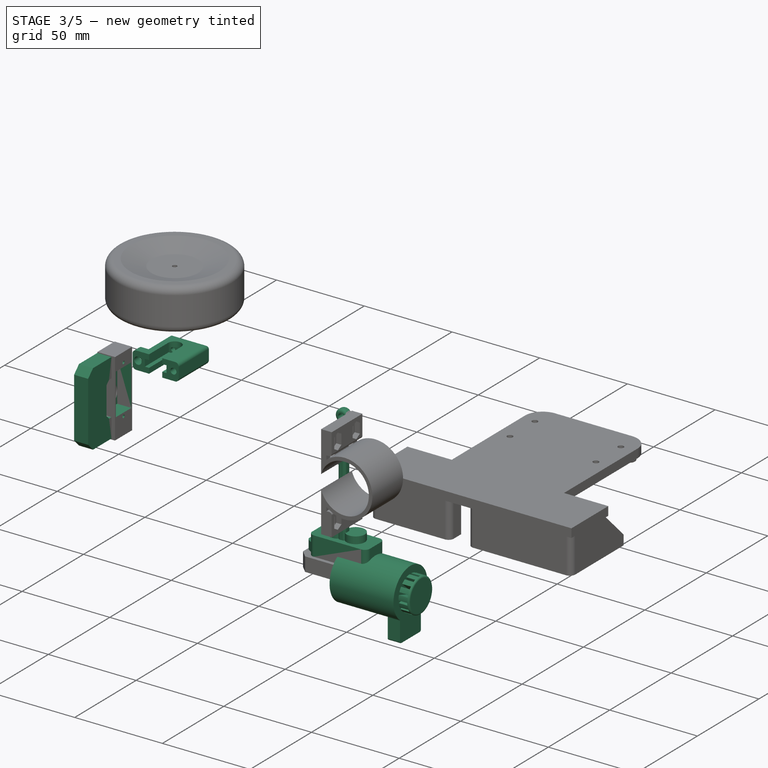
[diagram: stage 3 of 5 — iso view after this stage's code; geometry added in this stage tinted green]
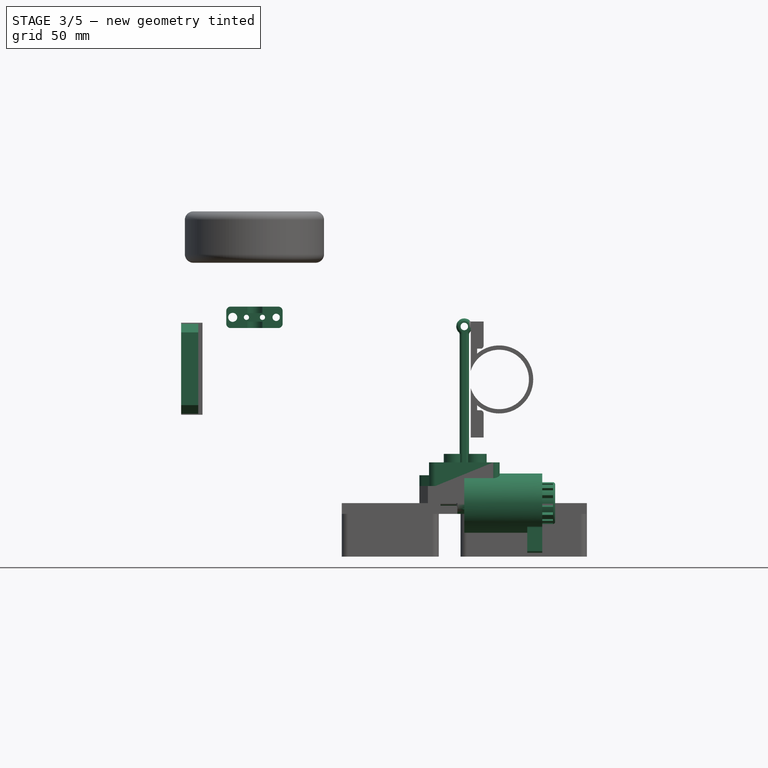
[diagram: stage 3 of 5 — front view after this stage's code; geometry added in this stage tinted green]
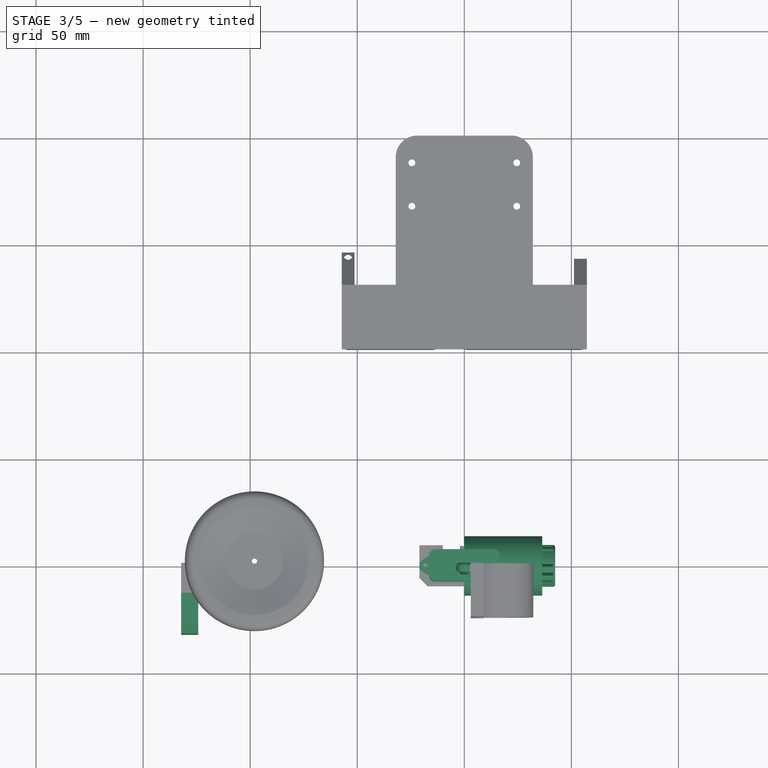
[diagram: stage 3 of 5 — top view after this stage's code; geometry added in this stage tinted green]
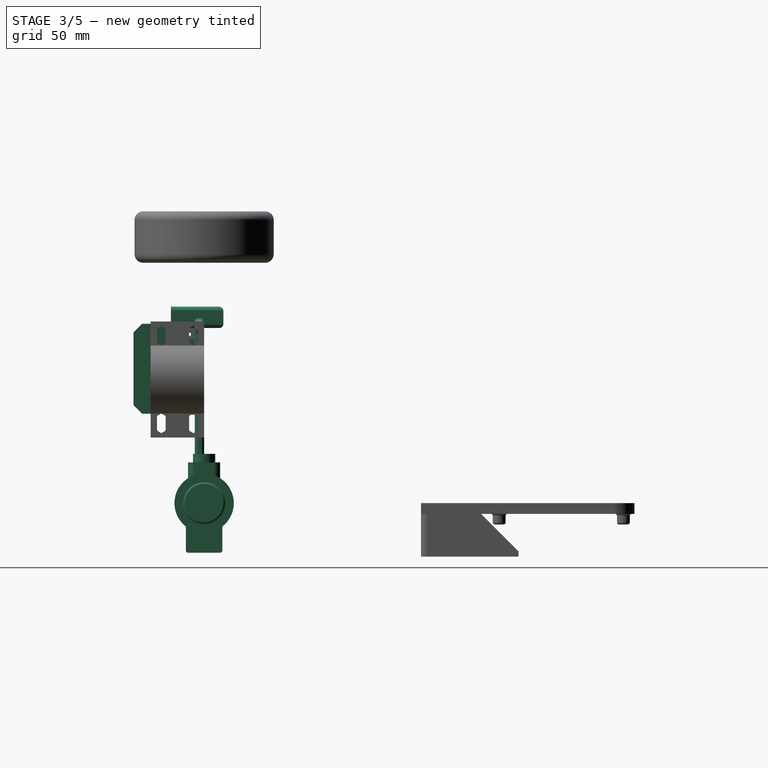
[diagram: stage 3 of 5 — right view after this stage's code; geometry added in this stage tinted green]
FEATURE [PartDesign::Body] Body005  label="FrontAxis"
  AllowCompound = false
  Group = -> [Sketch033,Pad025,Sketch034,Pad026,Sketch035,Pad027,Sketch036,Pad028,Sketch037,Pad029,Sketch038,Pad030,Sketch039,Pad031,Sketch040,Pad032,Sketch041,Pad033,Sketch042,Pad034,Sketch043,Pad035,Fillet004,Sketch044,Pad036,Pad037,Sketch045,Pad038,Sketch046,Pocket012,Sketch047,Pad039,Sketch048,Pocket013,Fillet005,Sketch049,Pocket014,Sketch050,Pocket015,Sketch051,Pad040,Fillet006,Sketch052,Pocket016]
  Origin = -> Origin005
  Placement = pos=(-98,1.633e-13,124.25) rot=(1,0,0;3.14159rad)
  Tip = -> Pocket016
FEATURE [Sketcher::SketchObject] Sketch053
  ArcFitTolerance = 1e-06
  AttachmentSupport = -> [XY_Plane006]
  FullyConstrained = true
  MakeInternals = false
  MapMode = 5
  sketch-geometry (8):
    g0: LineSegment StartX=2 StartY=9.175 StartZ=0 EndX=2 EndY=7.74597 EndZ=0
    g1: ArcOfCircle CenterX=0 CenterY=0 CenterZ=0 NormalX=0 NormalY=0 NormalZ=1 AngleXU=0 Radius=8 StartAngle=4.96507 EndAngle=7.6013
    g2: LineSegment StartX=2 StartY=-7.74597 StartZ=0 EndX=2 EndY=-9.175 EndZ=0
    g3: LineSegment StartX=2 StartY=-9.175 StartZ=0 EndX=-2 EndY=-9.175 EndZ=0
    g4: LineSegment StartX=-2 StartY=-9.175 StartZ=0 EndX=-2 EndY=-7.74597 EndZ=0
    g5: ArcOfCircle CenterX=0 CenterY=0 CenterZ=0 NormalX=0 NormalY=0 NormalZ=1 AngleXU=0 Radius=8 StartAngle=1.82348 EndAngle=4.45971
    g6: LineSegment StartX=-2 StartY=7.74597 StartZ=0 EndX=-2 EndY=9.175 EndZ=0
    g7: LineSegment StartX=-2 StartY=9.175 StartZ=0 EndX=2 EndY=9.175 EndZ=0
  constraints (24):
    c: Coincident(g2,g3)
    c: Horizontal(g3)
    c: Coincident(g3,g4)
    c: Vertical(g4)
    c: Coincident(g5,g6)
    c: Coincident(g6,g7)
    c: Coincident(g7,g0)
    c: Coincident(g1,g2)
    c: Horizontal(g7)
    c: Vertical(g0)
    c: Vertical(g6)
    c: Vertical(g2)
    c: Coincident(g0,g1)
    c: Coincident(g1,g5)
    c: Equal(g1,g5)
    c: Equal(g3,g7)
    c: Vertical(g5,g4)
    c: Coincident(g4,g5)
    c: Coincident(g1,g-1)
    c: Equal(g6,g4)
    c: Equal(g2,g4)
    c: Radius(g1) = 8
    c: Distance(g3,g7) = 18.35
    c: DistanceX(g7,g7) = 4
FEATURE [PartDesign::Pad] Pad041
  Direction = (0,0,1)
  Length = 8
  Length2 = 10
  Profile = -> Sketch053
  ReferenceAxis = -> Sketch053 [N_Axis]
  Suppressed = false
  Type = 0
FEATURE [PartDesign::Hole] Hole
  BaseFeature = -> Pad041
  CustomThreadClearance = 0
  Depth = 25
  DepthType = 0
  Diameter = 13.35
  DrillForDepth = false
  DrillPoint = 1
  DrillPointAngle = 118
  HoleCutCountersinkAngle = 90
  HoleCutCustomValues = false
  HoleCutDepth = 0
  HoleCutDiameter = 6.1
  HoleCutType = 0
  ModelThread = false
  Profile = -> Pad041 [Face9]
  Suppressed = false
  Tapered = false
  TaperedAngle = 90
  ThreadClass = 0
  ThreadDepth = 25
  ThreadDepthType = 0
  ThreadDirection = 0
  ThreadFit = 0
  ThreadSize = 0
  ThreadType = 0
  Threaded = false
  UseCustomThreadClearance = false
FEATURE [Sketcher::SketchObject] Sketch054
  ArcFitTolerance = 1e-06
  AttachmentSupport = -> [Hole]
  ExternalGeometry = -> [Hole]
  FullyConstrained = true
  MakeInternals = false
  MapMode = 5
  Placement = pos=(0,-9.175,0) rot=(1,0,0;1.5708rad)
  sketch-geometry (3):
    g0: LineSegment [constr] StartX=2 StartY=7.2 StartZ=0 EndX=-2 EndY=7.2 EndZ=0
    g1: LineSegment [constr] StartX=2 StartY=0 StartZ=0 EndX=-2 EndY=7.2 EndZ=0
    g2: Circle CenterX=1.492e-13 CenterY=3.6 CenterZ=0 NormalX=0 NormalY=0 NormalZ=1 AngleXU=0 Radius=1.25
  constraints (8):
    c: PointOnObject(g0,g-4)
    c: Horizontal(g0)
    c: Vertical(g0,g-3)
    c: DistanceY(g0,g-4) = 0.8
    c: Coincident(g1,g-4)
    c: Coincident(g1,g0)
    c: Diameter(g2) = 2.5
    c: Symmetric(g1,g1,g2)
FEATURE [PartDesign::Pocket] Pocket017
  BaseFeature = -> Hole
  Direction = (0,1,-2e-16)
  Length = 5
  Length2 = 5
  Profile = -> Sketch054
  ReferenceAxis = -> Sketch054 [N_Axis]
  Suppressed = false
  Type = 1
FEATURE [PartDesign::Pad] Pad042
  BaseFeature = -> Pocket017
  Direction = (0,0,1)
  Length = 0.8
  Length2 = 10
  Profile = -> Pocket017 [Edge7,Edge18,Edge20,Edge4,Edge11,Edge21,Edge19,Edge22]
  Reversed = true
  Suppressed = false
  Type = 0
FEATURE [Sketcher::SketchObject] Sketch055
  ArcFitTolerance = 1e-06
  AttachmentSupport = -> [Pad042]
  FullyConstrained = true
  MakeInternals = false
  MapMode = 5
  Placement = pos=(0,0,8) rot=(0,0,1;0rad)
  sketch-geometry (1):
    g0: Circle CenterX=0 CenterY=0 CenterZ=0 NormalX=0 NormalY=0 NormalZ=1 AngleXU=0 Radius=6.35
  constraints (2):
    c: Diameter(g0) = 12.7
    c: Coincident(g0,g-1)
FEATURE [PartDesign::Pad] Pad043
  BaseFeature = -> Pad042
  Direction = (0,0,1)
  Length = 6.25
  Length2 = 10
  Profile = -> Sketch055
  ReferenceAxis = -> Sketch055 [N_Axis]
  Suppressed = false
  Type = 0
FEATURE [PartDesign::Hole] Hole001
  BaseFeature = -> Pad043
  CustomThreadClearance = 0
  Depth = 25
  DepthType = 0
  Diameter = 6
  DrillForDepth = false
  DrillPoint = 1
  DrillPointAngle = 118
  HoleCutCountersinkAngle = 90
  HoleCutCustomValues = false
  HoleCutDepth = 0
  HoleCutDiameter = 6.1
  HoleCutType = 0
  ModelThread = false
  Profile = -> Pad043 [Face25]
  Suppressed = false
  Tapered = false
  TaperedAngle = 90
  ThreadClass = 0
  ThreadDepth = 25
  ThreadDepthType = 0
  ThreadDirection = 0
  ThreadFit = 0
  ThreadSize = 0
  ThreadType = 0
  Threaded = false
  UseCustomThreadClearance = false
FEATURE [PartDesign::Body] Body007  label="SpinnyThing2"
  AllowCompound = false
  Group = -> [Clone]
  Origin = -> Origin007
  Placement = pos=(-98,2.6e-15,21.5) rot=(1,0,0;3.14159rad)
  Tip = -> Clone
FEATURE [Sketcher::SketchObject] Sketch059
  ArcFitTolerance = 1e-06
  AttachmentSupport = -> [XZ_Plane008]
  FullyConstrained = true
  MakeInternals = false
  MapMode = 5
  Placement = pos=(0,0,0) rot=(1,0,0;1.5708rad)
  sketch-geometry (8):
    g0: Circle CenterX=0 CenterY=0 CenterZ=0 NormalX=0 NormalY=0 NormalZ=1 AngleXU=0 Radius=1.75
    g1: Circle CenterX=0 CenterY=82.5 CenterZ=0 NormalX=0 NormalY=0 NormalZ=1 AngleXU=0 Radius=1.75
    g2: LineSegment StartX=-2.2 StartY=79.4631 StartZ=0 EndX=-2.2 EndY=3.03686 EndZ=0
    g3: ArcOfCircle CenterX=0 CenterY=0 CenterZ=0 NormalX=0 NormalY=0 NormalZ=1 AngleXU=0 Radius=3.75 StartAngle=2.19773 EndAngle=7.22705
    g4: LineSegment StartX=2.2 StartY=3.03686 StartZ=0 EndX=2.2 EndY=79.4631 EndZ=0
    g5: ArcOfCircle CenterX=0 CenterY=82.5 CenterZ=0 NormalX=0 NormalY=0 NormalZ=1 AngleXU=0 Radius=3.75 StartAngle=5.33933 EndAngle=10.3686
    g6: GeomPoint X=0 Y=86.25 Z=0
    g7: GeomPoint X=0 Y=-3.75 Z=0
  constraints (21):
    c: Coincident(g0,g-1)
    c: PointOnObject(g1,g-2)
    c: Vertical(g2)
    c: Coincident(g3,g4)
    c: Vertical(g4)
    c: Coincident(g3,g0)
    c: Coincident(g2,g3)
    c: Distance(g2,g4) = 4.4
    c: Radius(g3) = 3.75
    c: Horizontal(g2,g3)
    c: Coincident(g5,g1)
    c: Coincident(g5,g4)
    c: Coincident(g5,g2)
    c: Equal(g5,g3)
    c: PointOnObject(g6,g5)
    c: PointOnObject(g7,g3)
    c: Vertical(g7,g0)
    c: Vertical(g6,g1)
    c: DistanceY(g7,g6) = 90
    c: Equal(g1,g0)
    c: Diameter(g0) = 3.5
FEATURE [PartDesign::Pad] Pad047
  Direction = (0,-1,2e-16)
  Length = 4.4
  Length2 = 10
  Placement = pos=(0,0,0) rot=(1,0,0;1.5708rad)
  Profile = -> Sketch059
  ReferenceAxis = -> Sketch059 [N_Axis]
  Suppressed = false
  Type = 0
FEATURE [PartDesign::Fillet] Fillet007
  Base = -> Pad047 [Edge3,Edge4,Edge9,Edge10,Edge11,Edge12,Edge6,Edge7,Edge5,Edge8,Edge1,Edge2]
  BaseFeature = -> Pad047
  Placement = pos=(0,0,0) rot=(1,0,0;1.5708rad)
  Radius = 1.5
  SupportTransform = false
  Suppressed = false
  UseAllEdges = false
FEATURE [PartDesign::Body] Body008  label="DirectionAxis"
  AllowCompound = false
  Group = -> [Sketch059,Pad047,Fillet007]
  Origin = -> Origin008
  Placement = pos=(-118,6.25,20.75) rot=(0,0,1;0rad)
  Tip = -> Fillet007
FEATURE [Sketcher::SketchObject] Sketch060
  ArcFitTolerance = 1e-06
  AttachmentSupport = -> [YZ_Plane009]
  FullyConstrained = true
  MakeInternals = false
  MapMode = 5
  Placement = pos=(0,0,0) rot=(0.57735,0.57735,0.57735;2.0944rad)
  sketch-geometry (1):
    g0: Circle CenterX=0 CenterY=0 CenterZ=0 NormalX=0 NormalY=0 NormalZ=1 AngleXU=0 Radius=13.85
  constraints (2):
    c: Diameter(g0) = 27.7
    c: Coincident(g0,g-1)
FEATURE [PartDesign::Pad] Pad048
  Direction = (1,0,0)
  Length = 36.4
  Length2 = 10
  Placement = pos=(0,0,0) rot=(1,1,1;2.0944rad)
  Profile = -> Sketch060
  ReferenceAxis = -> Sketch060 [N_Axis]
  Suppressed = false
  Type = 0
FEATURE [Sketcher::SketchObject] Sketch061
  ArcFitTolerance = 1e-06
  AttachmentSupport = -> [Pad048]
  FullyConstrained = true
  MakeInternals = false
  MapMode = 5
  Placement = pos=(0,0,0) rot=(0.57735,0.57735,-0.57735;4.18879rad)
  sketch-geometry (1):
    g0: Circle CenterX=0 CenterY=0 CenterZ=0 NormalX=0 NormalY=0 NormalZ=1 AngleXU=0 Radius=5
  constraints (2):
    c: Diameter(g0) = 10
    c: Coincident(g0,g-1)
FEATURE [PartDesign::Pad] Pad049
  BaseFeature = -> Pad048
  Direction = (-1,0,0)
  Length = 3.25
  Length2 = 10
  Placement = pos=(0,0,0) rot=(1,1,1;2.0944rad)
  Profile = -> Sketch061
  ReferenceAxis = -> Sketch061 [N_Axis]
  Suppressed = false
  Type = 0
FEATURE [Sketcher::SketchObject] Sketch062
  ArcFitTolerance = 1e-06
  AttachmentSupport = -> [Pad049]
  ExternalGeometry = -> [Pad049]
  FullyConstrained = true
  MakeInternals = false
  MapMode = 5
  Placement = pos=(36.4,0,0) rot=(0.57735,0.57735,0.57735;2.0944rad)
  sketch-geometry (5):
    g0: ArcOfCircle CenterX=0 CenterY=0 CenterZ=0 NormalX=0 NormalY=0 NormalZ=1 AngleXU=0 Radius=13.85 StartAngle=5.37315 EndAngle=10.3348
    g1: LineSegment StartX=-8.5 StartY=-10.9349 StartZ=0 EndX=-8.5 EndY=-23.15 EndZ=0
    g2: LineSegment StartX=-8.5 StartY=-23.15 StartZ=0 EndX=8.5 EndY=-23.15 EndZ=0
    g3: LineSegment StartX=8.5 StartY=-23.15 StartZ=0 EndX=8.5 EndY=-10.9349 EndZ=0
    g4: GeomPoint X=0 Y=13.85 Z=0
  constraints (14):
    c: Coincident(g0,g-1)
    c: PointOnObject(g0,g-3)
    c: Coincident(g0,g1)
    c: Vertical(g1)
    c: Coincident(g1,g2)
    c: Horizontal(g2)
    c: Coincident(g2,g3)
    c: Coincident(g3,g0)
    c: Vertical(g3)
    c: Horizontal(g0,g0)
    c: DistanceX(g2,g2) = 17
    c: PointOnObject(g4,g0)
    c: Vertical(g0,g4)
    c: Distance(g4,g2) = 37
FEATURE [PartDesign::Pad] Pad050
  BaseFeature = -> Pad049
  Direction = (1,0,0)
  Length = 7
  Length2 = 10
  Placement = pos=(0,0,0) rot=(1,1,1;2.0944rad)
  Profile = -> Sketch062
  ReferenceAxis = -> Sketch062 [N_Axis]
  Reversed = true
  Suppressed = false
  Type = 0
FEATURE [Sketcher::SketchObject] Sketch063
  ArcFitTolerance = 1e-06
  AttachmentSupport = -> [Pad050]
  FullyConstrained = true
  MakeInternals = false
  MapMode = 5
  Placement = pos=(36.4,0,0) rot=(0.57735,0.57735,0.57735;2.0944rad)
  sketch-geometry (1):
    g0: Circle CenterX=0 CenterY=0 CenterZ=0 NormalX=0 NormalY=0 NormalZ=1 AngleXU=0 Radius=9.75
  constraints (2):
    c: Diameter(g0) = 19.5
    c: Coincident(g0,g-1)
FEATURE [PartDesign::Pad] Pad051
  BaseFeature = -> Pad050
  Direction = (1,0,0)
  Length = 6
  Length2 = 10
  Placement = pos=(0,0,0) rot=(1,1,1;2.0944rad)
  Profile = -> Sketch063
  ReferenceAxis = -> Sketch063 [N_Axis]
  Suppressed = false
  Type = 0
FEATURE [Sketcher::SketchObject] Sketch064
  ArcFitTolerance = 1e-06
  AttachmentSupport = -> [Pad051]
  FullyConstrained = true
  MakeInternals = false
  MapMode = 5
  Placement = pos=(-3.25,0,0) rot=(0.57735,0.57735,-0.57735;4.18879rad)
  sketch-geometry (2):
    g0: ArcOfCircle CenterX=0 CenterY=0 CenterZ=0 NormalX=0 NormalY=0 NormalZ=1 AngleXU=0 Radius=1.15 StartAngle=5.45141 EndAngle=10.2566
    g1: LineSegment StartX=-0.774597 StartY=-0.85 StartZ=0 EndX=0.774597 EndY=-0.85 EndZ=0
  constraints (6):
    c: Coincident(g0,g-1)
    c: Coincident(g1,g0)
    c: Coincident(g1,g0)
    c: Horizontal(g1)
    c: Distance(g0,g1) = -0.3
    c: Radius(g0) = 1.15
FEATURE [PartDesign::Pad] Pad052
  BaseFeature = -> Pad051
  Direction = (-1,0,0)
  Length = 7.85
  Length2 = 10
  Placement = pos=(0,0,0) rot=(1,1,1;2.0944rad)
  Profile = -> Sketch064
  ReferenceAxis = -> Sketch064 [N_Axis]
  Suppressed = false
  Type = 0
FEATURE [PartDesign::Fillet] Fillet008
  Base = -> Pad052 [Edge13,Edge21,Edge19,Edge27,Edge9]
  BaseFeature = -> Pad052
  Placement = pos=(0,0,0) rot=(1,1,1;2.0944rad)
  Radius = 1
  SupportTransform = false
  Suppressed = false
  UseAllEdges = false
FEATURE [Sketcher::SketchObject] Sketch065
  ArcFitTolerance = 1e-06
  AttachmentSupport = -> [Fillet008]
  ExternalGeometry = -> [Fillet008]
  FullyConstrained = true
  MakeInternals = false
  MapMode = 5
  Placement = pos=(36.4,0,0) rot=(0.57735,0.57735,0.57735;2.0944rad)
  sketch-geometry (8):
    g0: LineSegment StartX=-0.7 StartY=9.72484 StartZ=0 EndX=-0.7 EndY=0 EndZ=0
    g1: LineSegment StartX=-0.7 StartY=0 StartZ=0 EndX=0.7 EndY=0 EndZ=0
    g2: LineSegment StartX=0.7 StartY=0 StartZ=0 EndX=0.7 EndY=9.72484 EndZ=0
    g3: LineSegment [constr] StartX=0.7 StartY=9.72484 StartZ=0 EndX=-0.7 EndY=9.72484 EndZ=0
    g4: LineSegment StartX=-0.7 StartY=9.72484 StartZ=0 EndX=-0.7 EndY=11.7248 EndZ=0
    g5: LineSegment StartX=-0.7 StartY=11.7248 StartZ=0 EndX=0.7 EndY=11.7248 EndZ=0
    g6: LineSegment StartX=0.7 StartY=11.7248 StartZ=0 EndX=0.7 EndY=9.72484 EndZ=0
    g7: GeomPoint X=0 Y=11.7248 Z=0
  constraints (21):
    c: Coincident(g0,g1)
    c: Coincident(g1,g2)
    c: Coincident(g2,g3)
    c: Coincident(g3,g0)
    c: Vertical(g0)
    c: Vertical(g2)
    c: Horizontal(g1)
    c: Horizontal(g3)
    c: PointOnObject(g0,g-3)
    c: PointOnObject(g1,g-1)
    c: DistanceX(g3,g3) = 1.4
    c: Coincident(g0,g4)
    c: Vertical(g4)
    c: Coincident(g4,g5)
    c: Horizontal(g5)
    c: Coincident(g5,g6)
    c: Coincident(g6,g2)
    c: Vertical(g6)
    c: DistanceY(g6,g6) = 2
    c: PointOnObject(g7,g-2)
    c: Symmetric(g4,g5,g7)
FEATURE [PartDesign::Pocket] Pocket019
  BaseFeature = -> Fillet008
  Direction = (-1,1e-15,1e-16)
  Length = 5
  Length2 = 5
  Placement = pos=(0,0,0) rot=(1,1,1;2.0944rad)
  Profile = -> Sketch065
  ReferenceAxis = -> Sketch065 [N_Axis]
  Reversed = true
  Suppressed = false
  Type = 0
FEATURE [PartDesign::PolarPattern] PolarPattern
  Angle = 360
  Axis = -> Sketch065 [N_Axis]
  BaseFeature = -> Pocket019
  Mode = 0
  Occurrences = 15
  Offset = 120
  Originals = -> [Pocket019]
  Placement = pos=(0,0,0) rot=(1,1,1;2.0944rad)
  Refine = true
  Suppressed = false
  TransformMode = 0
FEATURE [Sketcher::SketchObject] Sketch080
  ArcFitTolerance = 1e-06
  AttachmentSupport = -> [Pad059]
  ExternalGeometry = -> [Pad059]
  FullyConstrained = true
  MakeInternals = false
  MapMode = 5
  Placement = pos=(-122.25,0,0) rot=(0.707107,0,0.707107;3.14159rad)
  sketch-geometry (2):
    g0: Circle CenterX=51.025 CenterY=7 CenterZ=0 NormalX=0 NormalY=0 NormalZ=1 AngleXU=0 Radius=1.1
    g1: Circle CenterX=78.825 CenterY=7 CenterZ=0 NormalX=0 NormalY=0 NormalZ=1 AngleXU=0 Radius=1.1
  constraints (6):
    c: Equal(g1,g0)
    c: Diameter(g0) = 2.2
    c: Horizontal(g1,g0)
    c: DistanceX(g-3,g1) = 13.475
    c: DistanceX(g0,g1) = 27.8
    c: Horizontal(g-3,g1)
FEATURE [PartDesign::Hole] Hole006
  BaseFeature = -> Pad059
  CustomThreadClearance = 0
  Depth = 25
  DepthType = 0
  Diameter = 1.75
  DrillForDepth = false
  DrillPoint = 1
  DrillPointAngle = 118
  HoleCutCountersinkAngle = 90
  HoleCutCustomValues = false
  HoleCutDepth = 0
  HoleCutDiameter = 6.1
  HoleCutType = 0
  ModelThread = false
  Placement = pos=(0,0,0) rot=(1,0,0;1.5708rad)
  Profile = -> Sketch080
  Suppressed = false
  Tapered = false
  TaperedAngle = 90
  ThreadClass = 0
  ThreadDepth = 25
  ThreadDepthType = 0
  ThreadDirection = 0
  ThreadFit = 0
  ThreadSize = 7
  ThreadType = 1
  Threaded = true
  UseCustomThreadClearance = false
FEATURE [Sketcher::SketchObject] Sketch081
  ArcFitTolerance = 1e-06
  AttachmentSupport = -> [Hole006]
  ExternalGeometry = -> [Hole006]
  FullyConstrained = true
  MakeInternals = false
  MapMode = 5
  Placement = pos=(-122.25,0,0) rot=(0.707107,0,0.707107;3.14159rad)
  sketch-geometry (5):
    g0: LineSegment StartX=53 StartY=13.3 StartZ=0 EndX=53 EndY=0.7 EndZ=0
    g1: LineSegment StartX=53 StartY=0.7 StartZ=0 EndX=76.5 EndY=0.7 EndZ=0
    g2: LineSegment StartX=76.5 StartY=0.7 StartZ=0 EndX=76.5 EndY=13.3 EndZ=0
    g3: LineSegment StartX=76.5 StartY=13.3 StartZ=0 EndX=53 EndY=13.3 EndZ=0
    g4: GeomPoint X=76.5 Y=7 Z=0
  constraints (13):
    c: Coincident(g0,g1)
    c: Coincident(g1,g2)
    c: Coincident(g2,g3)
    c: Coincident(g3,g0)
    c: Vertical(g0)
    c: Vertical(g2)
    c: Horizontal(g1)
    c: Horizontal(g3)
    c: DistanceX(g3,g3) = 23.5
    c: Distance(g-3,g3) = 0.7
    c: Distance(g-4,g2) = 2.325
    c: Symmetric(g2,g2,g4)
    c: Horizontal(g4,g-4)
FEATURE [PartDesign::Pocket] Pocket027
  BaseFeature = -> Hole006
  Direction = (-1,0,2e-16)
  Length = 8
  Length2 = 5
  Placement = pos=(0,0,0) rot=(1,0,0;1.5708rad)
  Profile = -> Sketch081
  ReferenceAxis = -> Sketch081 [N_Axis]
  Refine = true
  Suppressed = false
  Type = 0
FEATURE [PartDesign::Body] Body016  label="LidarSupport"
  AllowCompound = false
  Group = -> [Sketch082,Pad060,Chamfer001,Sketch083,Hole007,Sketch084,Pocket028,Chamfer002]
  Origin = -> Origin019
  Tip = -> Chamfer002
FEATURE [PartDesign::FeatureBase] Clone004
  BaseFeature = -> Body016
  Suppressed = false
FEATURE [PartDesign::Body] Body018  label="LidarSupport3"
  AllowCompound = false
  Group = -> [Clone005]
  Origin = -> Origin021
  Placement = pos=(-124.25,-23.5,62.75) rot=(0,1,0;4.71239rad)
  Tip = -> Clone005
FEATURE [Sketcher::SketchObject] Sketch085
  ArcFitTolerance = 1e-06
  AttachmentSupport = -> [Clone004]
  ExternalGeometry = -> [Clone004]
  FullyConstrained = true
  MakeInternals = false
  MapMode = 5
  Placement = pos=(0,9.5,0) rot=(0,0.707107,0.707107;3.14159rad)
  sketch-geometry (2):
    g0: Circle CenterX=-15.5 CenterY=4 CenterZ=0 NormalX=0 NormalY=0 NormalZ=1 AngleXU=0 Radius=1.5
    g1: Circle CenterX=15.5 CenterY=4 CenterZ=0 NormalX=0 NormalY=0 NormalZ=1 AngleXU=0 Radius=1.5
  constraints (5):
    c: Diameter(g0) = 3
    c: Equal(g1,g0)
    c: Symmetric(g-4,g-5,g0)
    c: Symmetric(g-3,g-6,g1)
    c: DistanceX(g0,g1) = 31
FEATURE [PartDesign::Hole] Hole008
  BaseFeature = -> Clone004
  CustomThreadClearance = 0
  Depth = 5
  DepthType = 0
  Diameter = 4.3
  DrillForDepth = false
  DrillPoint = 1
  DrillPointAngle = 118
  HoleCutCountersinkAngle = 90
  HoleCutCustomValues = false
  HoleCutDepth = 0
  HoleCutDiameter = 6.1
  HoleCutType = 0
  ModelThread = false
  Profile = -> Sketch085
  Suppressed = false
  Tapered = false
  TaperedAngle = 90
  ThreadClass = 0
  ThreadDepth = 5
  ThreadDepthType = 0
  ThreadDirection = 0
  ThreadFit = 0
  ThreadSize = 0
  ThreadType = 0
  Threaded = false
  UseCustomThreadClearance = false
FEATURE [PartDesign::Body] Body017  label="LidarSupport1"
  AllowCompound = false
  Group = -> [Clone004,Sketch085,Hole008]
  Origin = -> Origin020
  Tip = -> Hole008
FEATURE [Sketcher::SketchObject] Sketch086
  ArcFitTolerance = 1e-06
  AttachmentSupport = -> [XY_Plane022]
  FullyConstrained = true
  MakeInternals = false
  MapMode = 5
  sketch-geometry (17):
    g0: LineSegment StartX=-13.5 StartY=7.5 StartZ=0 EndX=13.5 EndY=7.5 EndZ=0
    g1: ArcOfCircle CenterX=13.5 CenterY=4.5 CenterZ=0 NormalX=0 NormalY=0 NormalZ=1 AngleXU=0 Radius=3 StartAngle=1e-16 EndAngle=1.5708
    g2: LineSegment StartX=16.5 StartY=4.5 StartZ=0 EndX=19.6045 EndY=2.53485 EndZ=0
    g3: ArcOfCircle CenterX=18 CenterY=0 CenterZ=0 NormalX=0 NormalY=0 NormalZ=1 AngleXU=0 Radius=3 StartAngle=5.27672 EndAngle=7.28966
    g4: LineSegment StartX=19.6045 StartY=-2.53485 StartZ=0 EndX=16.5 EndY=-4.5 EndZ=0
    g5: ArcOfCircle CenterX=13.5 CenterY=-4.5 CenterZ=0 NormalX=0 NormalY=0 NormalZ=1 AngleXU=0 Radius=3 StartAngle=4.71239 EndAngle=6.28319
    g6: LineSegment StartX=13.5 StartY=-7.5 StartZ=0 EndX=-13.5 EndY=-7.5 EndZ=0
    g7: ArcOfCircle CenterX=-13.5 CenterY=-4.5 CenterZ=0 NormalX=0 NormalY=0 NormalZ=1 AngleXU=0 Radius=3 StartAngle=3.14159 EndAngle=4.71239
    g8: LineSegment StartX=-16.5 StartY=-4.5 StartZ=0 EndX=-19.6045 EndY=-2.53485 EndZ=0
    g9: ArcOfCircle CenterX=-18 CenterY=0 CenterZ=0 NormalX=0 NormalY=0 NormalZ=1 AngleXU=0 Radius=3 StartAngle=2.13512 EndAngle=4.14806
    g10: LineSegment StartX=-19.6045 StartY=2.53485 StartZ=0 EndX=-16.5 EndY=4.5 EndZ=0
    g11: ArcOfCircle CenterX=-13.5 CenterY=4.5 CenterZ=0 NormalX=0 NormalY=0 NormalZ=1 AngleXU=0 Radius=3 StartAngle=1.5708 EndAngle=3.14159
    g12: LineSegment [constr] StartX=-16.5 StartY=4.5 StartZ=0 EndX=-16.5 EndY=-4.5 EndZ=0
    g13: GeomPoint X=-21 Y=0 Z=0
    g14: GeomPoint X=21 Y=0 Z=0
    g15: Circle CenterX=-18 CenterY=0 CenterZ=0 NormalX=0 NormalY=0 NormalZ=1 AngleXU=0 Radius=1.175
    g16: Circle CenterX=18 CenterY=0 CenterZ=0 NormalX=0 NormalY=0 NormalZ=1 AngleXU=0 Radius=1.175
  constraints (45):
    c: Horizontal(g0)
    c: Tangent(g0,g1) = 1.5708
    c: Coincident(g1,g2)
    c: Tangent(g2,g3) = 1.5708
    c: Coincident(g5,g6)
    c: Horizontal(g6)
    c: Tangent(g6,g7) = 1.5708
    c: Coincident(g7,g8)
    c: Tangent(g8,g9) = 1.5708
    c: Coincident(g11,g0)
    c: Equal(g11,g7)
    c: Equal(g7,g5)
    c: Equal(g5,g1)
    c: Vertical(g1,g4)
    c: Vertical(g10,g7)
    c: Vertical(g0,g6)
    c: Vertical(g5,g0)
    c: Horizontal(g7,g4)
    c: Coincident(g12,g10)
    c: Tangent(g12,g7) = -1.5708
    c: Tangent(g3,g4) = 1.5708
    c: PointOnObject(g3,g-1)
    c: PointOnObject(g9,g-1)
    c: Tangent(g9,g10) = 1.5708
    c: Coincident(g11,g10)
    c: Coincident(g4,g5)
    c: Equal(g4,g2)
    c: Equal(g2,g10)
    c: Equal(g10,g8)
    c: Equal(g9,g3)
    c: PointOnObject(g13,g9)
    c: PointOnObject(g13,g-1)
    c: PointOnObject(g14,g3)
    c: PointOnObject(g14,g-1)
    c: DistanceX(g13,g14) = 42
    c: Symmetric(g0,g5,g-1)
    c: DistanceY(g6,g0) = 15
    c: DistanceX(g7,g4) = 33
    c: Equal(g9,g7)
    c: Radius(g11) = 3
    c: Diameter(g15) = 2.35
    c: Coincident(g15,g9)
    c: Coincident(g16,g3)
    c: Equal(g16,g15)
    c: DistanceX(g9,g3) = 36
FEATURE [PartDesign::Pad] Pad061
  Direction = (0,0,1)
  Length = 5
  Length2 = 10
  Profile = -> Sketch086
  ReferenceAxis = -> Sketch086 [N_Axis]
  Suppressed = false
  Type = 0
FEATURE [Sketcher::SketchObject] Sketch087
  ArcFitTolerance = 1e-06
  AttachmentSupport = -> [Pad061]
  ExternalGeometry = -> [Pad061]
  FullyConstrained = true
  MakeInternals = false
  MapMode = 5
  Placement = pos=(0,0,5) rot=(0,0,1;0rad)
  sketch-geometry (8):
    g0: LineSegment StartX=-13.5 StartY=7.5 StartZ=0 EndX=13.5 EndY=7.5 EndZ=0
    g1: ArcOfCircle CenterX=13.5 CenterY=4.5 CenterZ=0 NormalX=0 NormalY=0 NormalZ=1 AngleXU=0 Radius=3 StartAngle=-3.02e-14 EndAngle=1.5708
    g2: LineSegment StartX=16.5 StartY=4.5 StartZ=0 EndX=16.5 EndY=-4.5 EndZ=0
    g3: ArcOfCircle CenterX=13.5 CenterY=-4.5 CenterZ=0 NormalX=0 NormalY=0 NormalZ=1 AngleXU=0 Radius=3 StartAngle=4.71239 EndAngle=6.28319
    g4: LineSegment StartX=13.5 StartY=-7.5 StartZ=0 EndX=-13.5 EndY=-7.5 EndZ=0
    g5: ArcOfCircle CenterX=-13.5 CenterY=-4.5 CenterZ=0 NormalX=0 NormalY=0 NormalZ=1 AngleXU=0 Radius=3 StartAngle=3.14159 EndAngle=4.71239
    g6: LineSegment StartX=-16.5 StartY=-4.5 StartZ=0 EndX=-16.5 EndY=4.5 EndZ=0
    g7: ArcOfCircle CenterX=-13.5 CenterY=4.5 CenterZ=0 NormalX=0 NormalY=0 NormalZ=1 AngleXU=0 Radius=3 StartAngle=1.5708 EndAngle=3.14159
  constraints (15):
    c: Tangent(g-4,g0) = 1.5708
    c: Tangent(g0,g1) = 1.5708
    c: Coincident(g1,g-8)
    c: Tangent(g1,g2) = 1.5708
    c: Tangent(g2,g3) = 1.5708
    c: Coincident(g3,g-7)
    c: Coincident(g3,g4)
    c: Coincident(g4,g-6)
    c: Tangent(g4,g5) = 1.5708
    c: Coincident(g5,g-5)
    c: Coincident(g5,g6)
    c: Coincident(g6,g-4)
    c: Tangent(g6,g7) = 1.5708
    c: Coincident(g7,g0)
    c: Coincident(g2,g-7)
FEATURE [PartDesign::Pad] Pad062
  BaseFeature = -> Pad061
  Direction = (0,0,1)
  Length = 6
  Length2 = 10
  Profile = -> Sketch087
  ReferenceAxis = -> Sketch087 [N_Axis]
  Suppressed = false
  Type = 0
FEATURE [Sketcher::SketchObject] Sketch088
  ArcFitTolerance = 1e-06
  AttachmentSupport = -> [Pad062]
  FullyConstrained = true
  MakeInternals = false
  MapMode = 5
  Placement = pos=(0,0,11) rot=(0,0,1;0rad)
  sketch-geometry (4):
    g0: Circle CenterX=-4.8 CenterY=0 CenterZ=0 NormalX=0 NormalY=0 NormalZ=1 AngleXU=0 Radius=4.8
    g1: Circle CenterX=5.2 CenterY=0 CenterZ=0 NormalX=0 NormalY=0 NormalZ=1 AngleXU=0 Radius=5.2
    g2: GeomPoint X=-9.6 Y=0 Z=0
    g3: GeomPoint X=10.4 Y=0 Z=0
  constraints (11):
    c: PointOnObject(g0,g-1)
    c: PointOnObject(g1,g-1)
    c: DistanceX(g0,g1) = 10
    c: Tangent(g0,g1)
    c: PointOnObject(g2,g0)
    c: PointOnObject(g3,g1)
    c: PointOnObject(g3,g-1)
    c: PointOnObject(g2,g-1)
    c: Diameter(g1) = 10.4
    c: Diameter(g0) = 9.6
    c: PointOnObject(g-1,g1)
FEATURE [PartDesign::Pad] Pad063
  BaseFeature = -> Pad062
  Direction = (0,0,1)
  Length = 4
  Length2 = 10
  Profile = -> Sketch088
  ReferenceAxis = -> Sketch088 [N_Axis]
  Refine = true
  Suppressed = false
  Type = 0
FEATURE [PartDesign::Body] Body019  label="Lidar"
  AllowCompound = false
  Group = -> [Sketch086,Pad061,Sketch087,Pad062,Sketch088,Pad063]
  Origin = -> Origin022
  Placement = pos=(0,0,8) rot=(0,0,1;0rad)
  Tip = -> Pad063
FEATURE [App::Part] Part001  label="LidarR"
  Group = -> [Body019,Body017]
  Origin = -> Origin023
  Placement = pos=(-57,-9.5,101) rot=(0,0,1;0rad)
FEATURE [PartDesign::FeatureBase] Clone006
  BaseFeature = -> Body017
  Suppressed = false
FEATURE [PartDesign::Body] Body020  label="LidarSupport2"
  AllowCompound = false
  Group = -> [Clone006]
  Origin = -> Origin024
  Tip = -> Clone006
FEATURE [PartDesign::FeatureBase] Clone007
  BaseFeature = -> Body019
  Placement = pos=(0,0,8) rot=(0,0,1;0rad)
  Suppressed = false
FEATURE [PartDesign::Body] Body021  label="Lidar2"
  AllowCompound = false
  Group = -> [Clone007]
  Origin = -> Origin025
  Tip = -> Clone007
FEATURE [App::Part] Part002  label="LidarL"
  Group = -> [Body021,Body020]
  Origin = -> Origin026
  Placement = pos=(-57,-9.5,24.5) rot=(0,1,0;3.14159rad)
FEATURE [PartDesign::Boolean] Boolean
  BaseFeature = -> Pocket027
  Group = -> [Body018]
  Suppressed = false
  Type = 0
  UsePlacement = true
FEATURE [PartDesign::Body] Body010  label="AxisScrewAdapter1"
  AllowCompound = false
  Group = -> [Sketch066,Pad053,Sketch067,Pocket020,Pad054,Sketch068,Hole003,Sketch069,Hole004,Hole005,Fillet009,Pad055,Pocket030,Sketch091,Pocket031,Pad064]
  Origin = -> Origin010
  Placement = pos=(-98,-6,86.75) rot=(-0.57735,-0.57735,-0.57735;2.0944rad)
  Tip = -> Pad064
FEATURE [PartDesign::FeatureBase] Clone001
  BaseFeature = -> Body010
  Placement = pos=(-98,-6,86.75) rot=(-0.57735,-0.57735,-0.57735;2.0944rad)
  Suppressed = false
FEATURE [PartDesign::Body] Body011  label="AxisScrewAdapter2"
  AllowCompound = false
  Group = -> [Clone001]
  Origin = -> Origin011
  Placement = pos=(0,0,-49.5) rot=(0,0,1;0rad)
  Tip = -> Clone001
FEATURE [PartDesign::FeatureBase] Clone002
  BaseFeature = -> Body010
  Placement = pos=(-98,-6,86.75) rot=(-0.57735,-0.57735,-0.57735;2.0944rad)
  Suppressed = false
FEATURE [PartDesign::Body] Body012  label="AxisScrewAdapter3"
  AllowCompound = false
  Group = -> [Clone002]
  Origin = -> Origin012
  Placement = pos=(160.25,0,0) rot=(0,0,1;0rad)
  Tip = -> Clone002
FEATURE [PartDesign::FeatureBase] Clone003
  BaseFeature = -> Body010
  Placement = pos=(-98,-6,86.75) rot=(-0.57735,-0.57735,-0.57735;2.0944rad)
  Suppressed = false
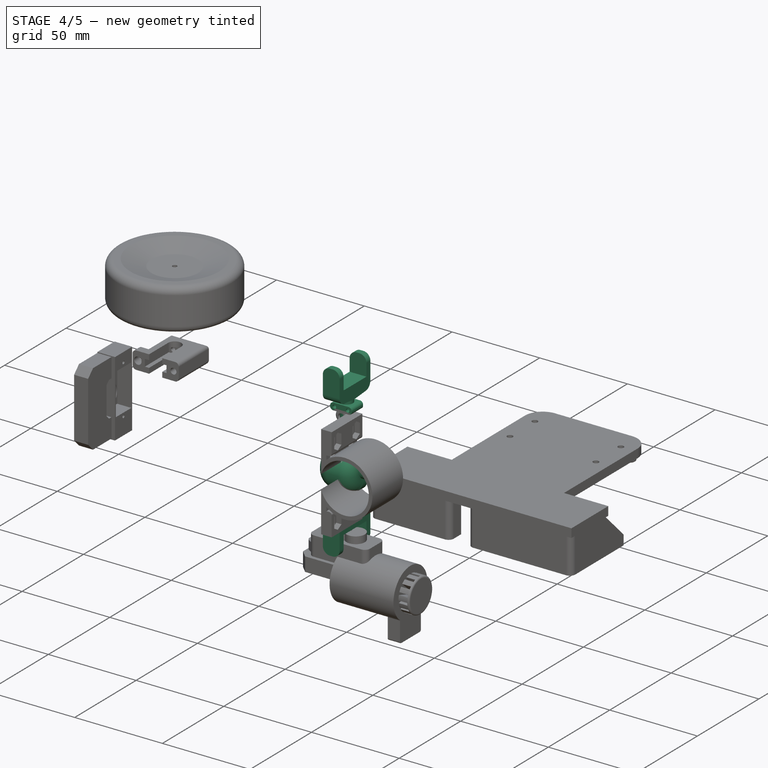
[diagram: stage 4 of 5 — iso view after this stage's code; geometry added in this stage tinted green]
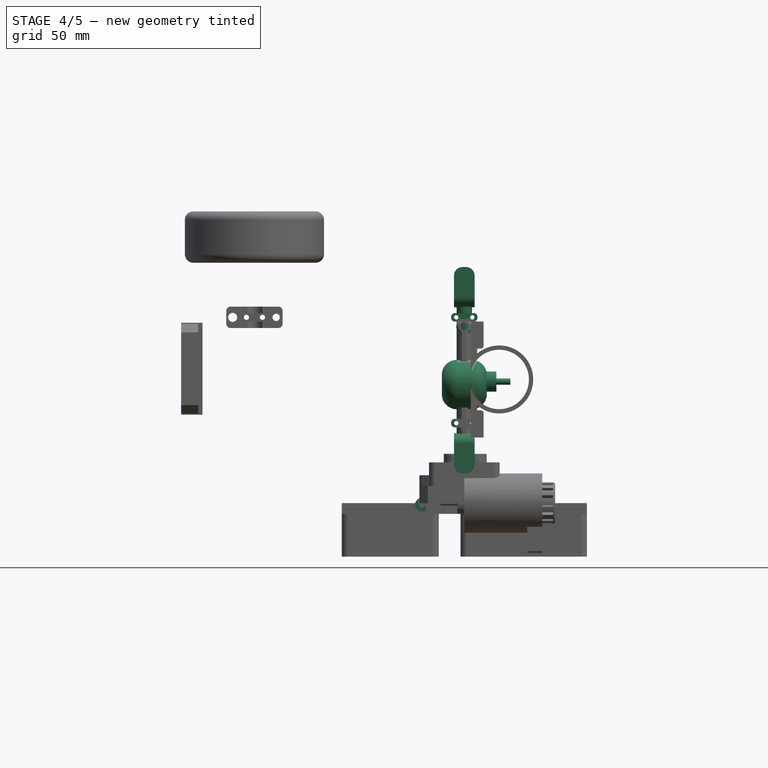
[diagram: stage 4 of 5 — front view after this stage's code; geometry added in this stage tinted green]
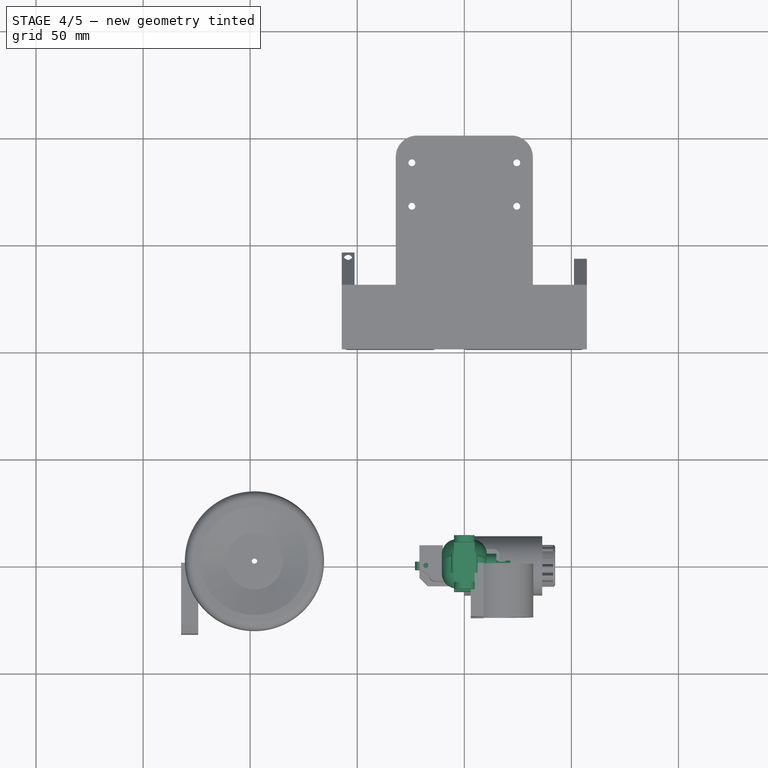
[diagram: stage 4 of 5 — top view after this stage's code; geometry added in this stage tinted green]
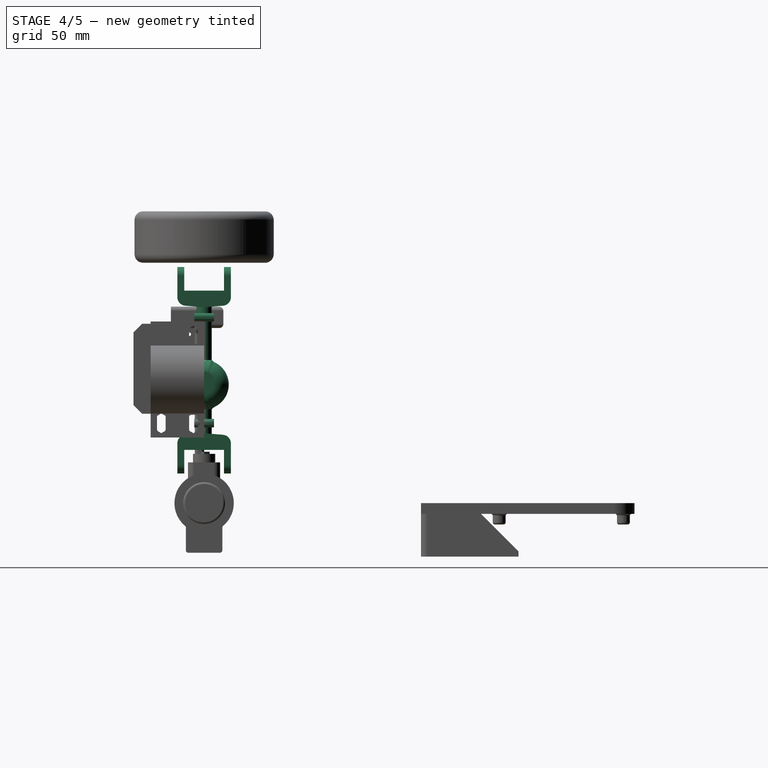
[diagram: stage 4 of 5 — right view after this stage's code; geometry added in this stage tinted green]
FEATURE [PartDesign::Body] Body004  label="RearAxis"
  AllowCompound = false
  Group = -> [Sketch014,Pad009,Sketch015,Pad010,Sketch016,Pad011,Sketch017,Pad012,Sketch018,Pad013,Sketch019,Pad014,Sketch020,Pad015,Sketch021,Pad016,Sketch022,Pad017,Sketch023,Pad018,Sketch024,Pad019,Fillet002,Sketch025,Pad020,Pad021,Sketch026,Pad022,Sketch027,Pocket008,Sketch028,Pad023,Sketch029,Pocket009,Fillet003]
  Origin = -> Origin004
  Placement = pos=(61.75,2.44e-14,0) rot=(0,0,1;3.14159rad)
  Tip = -> Fillet003
FEATURE [Sketcher::SketchObject] Sketch033
  ArcFitTolerance = 1e-06
  AttachmentSupport = -> [XY_Plane005]
  FullyConstrained = true
  MakeInternals = false
  MapMode = 5
  sketch-geometry (7):
    g0: LineSegment StartX=2.88675 StartY=0 StartZ=0 EndX=1.44338 EndY=2.5 EndZ=0
    g1: LineSegment StartX=1.44338 StartY=2.5 StartZ=0 EndX=-1.44338 EndY=2.5 EndZ=0
    g2: LineSegment StartX=-1.44338 StartY=2.5 StartZ=0 EndX=-2.88675 EndY=-4e-16 EndZ=0
    g3: LineSegment StartX=-2.88675 StartY=-4e-16 StartZ=0 EndX=-1.44338 EndY=-2.5 EndZ=0
    g4: LineSegment StartX=-1.44338 StartY=-2.5 StartZ=0 EndX=1.44338 EndY=-2.5 EndZ=0
    g5: LineSegment StartX=1.44338 StartY=-2.5 StartZ=0 EndX=2.88675 EndY=0 EndZ=0
    g6: Circle [constr] CenterX=0 CenterY=0 CenterZ=0 NormalX=0 NormalY=0 NormalZ=1 AngleXU=0 Radius=2.88675
  constraints (16):
    c: Coincident(g0,g1)
    c: Coincident(g1,g2)
    c: Coincident(g2,g3)
    c: Coincident(g3,g4)
    c: Coincident(g4,g5)
    c: Coincident(g5,g0)
    c: Equal(g0, g1-g5) x5
    c: PointOnObject(g0,g6)
    c: PointOnObject(g1,g6)
    c: PointOnObject(g2,g6)
    c: PointOnObject(g3,g6)
    c: PointOnObject(g4,g6)
    c: PointOnObject(g5,g6)
    c: Coincident(g6,g-1)
    c: PointOnObject(g5,g-1)
    c: Distance(g4,g1) = 5
FEATURE [PartDesign::Pad] Pad025
  Direction = (0,0,1)
  Length = 10
  Length2 = 10
  Profile = -> Sketch033
  ReferenceAxis = -> Sketch033 [N_Axis]
  Suppressed = false
  Type = 0
FEATURE [Sketcher::SketchObject] Sketch034
  ArcFitTolerance = 1e-06
  AttachmentSupport = -> [Pad025]
  FullyConstrained = true
  MakeInternals = false
  MapMode = 5
  Placement = pos=(0,0,10) rot=(0,0,1;0rad)
  sketch-geometry (1):
    g0: Circle CenterX=0 CenterY=0 CenterZ=0 NormalX=0 NormalY=0 NormalZ=1 AngleXU=0 Radius=5
  constraints (2):
    c: Diameter(g0) = 10
    c: Coincident(g0,g-1)
FEATURE [PartDesign::Pad] Pad026
  BaseFeature = -> Pad025
  Direction = (0,0,1)
  Length = 14.75
  Length2 = 10
  Profile = -> Sketch034
  ReferenceAxis = -> Sketch034 [N_Axis]
  Suppressed = false
  Type = 0
FEATURE [Sketcher::SketchObject] Sketch035
  ArcFitTolerance = 1e-06
  AttachmentSupport = -> [Pad026]
  FullyConstrained = true
  MakeInternals = false
  MapMode = 5
  Placement = pos=(0,0,24.75) rot=(0,0,1;0rad)
  sketch-geometry (1):
    g0: Circle CenterX=0 CenterY=0 CenterZ=0 NormalX=0 NormalY=0 NormalZ=1 AngleXU=0 Radius=3.575
  constraints (2):
    c: Diameter(g0) = 7.15
    c: Coincident(g0,g-1)
FEATURE [PartDesign::Pad] Pad027
  BaseFeature = -> Pad026
  Direction = (0,0,1)
  Length = 10.6
  Length2 = 10
  Profile = -> Sketch035
  ReferenceAxis = -> Sketch035 [N_Axis]
  Suppressed = false
  Type = 0
FEATURE [Sketcher::SketchObject] Sketch036
  ArcFitTolerance = 1e-06
  AttachmentSupport = -> [Pad027]
  FullyConstrained = true
  MakeInternals = false
  MapMode = 5
  Placement = pos=(0,0,35.35) rot=(0,0,1;0rad)
  sketch-geometry (5):
    g0: LineSegment StartX=-6.15 StartY=-4.6 StartZ=0 EndX=6.15 EndY=-4.6 EndZ=0
    g1: LineSegment StartX=6.15 StartY=-4.6 StartZ=0 EndX=6.15 EndY=4.6 EndZ=0
    g2: LineSegment StartX=6.15 StartY=4.6 StartZ=0 EndX=-6.15 EndY=4.6 EndZ=0
    g3: LineSegment StartX=-6.15 StartY=4.6 StartZ=0 EndX=-6.15 EndY=-4.6 EndZ=0
    g4: GeomPoint [constr] X=0 Y=0 Z=0
  constraints (12):
    c: Coincident(g0,g1)
    c: Coincident(g1,g2)
    c: Coincident(g2,g3)
    c: Coincident(g3,g0)
    c: Horizontal(g0)
    c: Horizontal(g2)
    c: Vertical(g1)
    c: Vertical(g3)
    c: Symmetric(g2,g0,g4)
    c: Coincident(g4,g-1)
    c: DistanceX(g2,g2) = 12.3
    c: DistanceY(g1,g1) = 9.2
FEATURE [PartDesign::Pad] Pad028
  BaseFeature = -> Pad027
  Direction = (0,0,1)
  Length = 4
  Length2 = 10
  Profile = -> Sketch036
  ReferenceAxis = -> Sketch036 [N_Axis]
  Suppressed = false
  Type = 0
FEATURE [Sketcher::SketchObject] Sketch037
  ArcFitTolerance = 1e-06
  AttachmentSupport = -> [Pad028]
  ExternalGeometry = -> [Pad028]
  FullyConstrained = true
  MakeInternals = false
  MapMode = 5
  Placement = pos=(0,0,39.35) rot=(0,0,1;0rad)
  sketch-geometry (1):
    g0: Circle CenterX=0 CenterY=0 CenterZ=0 NormalX=0 NormalY=0 NormalZ=1 AngleXU=0 Radius=3.57501
  constraints (2):
    c: Coincident(g0,g-1)
    c: Tangent(g0,g-3)
FEATURE [PartDesign::Pad] Pad029
  BaseFeature = -> Pad028
  Direction = (0,0,1)
  Length = 4.5
  Length2 = 10
  Profile = -> Sketch037
  ReferenceAxis = -> Sketch037 [N_Axis]
  Suppressed = false
  Type = 0
FEATURE [Sketcher::SketchObject] Sketch038
  ArcFitTolerance = 1e-06
  AttachmentSupport = -> [YZ_Plane005]
  ExternalGeometry = -> [Pad029]
  FullyConstrained = true
  MakeInternals = false
  MapMode = 5
  Placement = pos=(0,0,0) rot=(0.57735,0.57735,0.57735;2.0944rad)
  sketch-geometry (10):
    g0: Circle [constr] CenterX=0 CenterY=55.35 CenterZ=0 NormalX=0 NormalY=0 NormalZ=1 AngleXU=0 Radius=11.5
    g1: LineSegment [constr] StartX=-3.57501 StartY=66.85 StartZ=0 EndX=3.57501 EndY=66.85 EndZ=0
    g2: ArcOfCircle CenterX=4e-16 CenterY=55.35 CenterZ=0 NormalX=0 NormalY=0 NormalZ=1 AngleXU=0 Radius=11.5 StartAngle=2.03891 EndAngle=4.24428
    g3: ArcOfCircle CenterX=-7.67043 CenterY=70.5212 CenterZ=0 NormalX=0 NormalY=0 NormalZ=1 AngleXU=0 Radius=5.5 StartAngle=5.1805 EndAngle=5.55236
    g4: ArcOfCircle CenterX=-7.67043 CenterY=40.1788 CenterZ=0 NormalX=0 NormalY=0 NormalZ=1 AngleXU=0 Radius=5.5 StartAngle=0.730827 EndAngle=1.10268
    g5: ArcOfCircle CenterX=7.67043 CenterY=70.5212 CenterZ=0 NormalX=0 NormalY=0 NormalZ=1 AngleXU=0 Radius=5.5 StartAngle=3.87242 EndAngle=4.24428
    g6: ArcOfCircle CenterX=2e-15 CenterY=55.35 CenterZ=0 NormalX=0 NormalY=0 NormalZ=1 AngleXU=0 Radius=11.5 StartAngle=5.1805 EndAngle=7.38587
    g7: ArcOfCircle CenterX=7.67043 CenterY=40.1788 CenterZ=0 NormalX=0 NormalY=0 NormalZ=1 AngleXU=0 Radius=5.5 StartAngle=2.03891 EndAngle=2.41077
    g8: LineSegment StartX=-3.57501 StartY=66.85 StartZ=0 EndX=3.57501 EndY=66.85 EndZ=0
    g9: LineSegment StartX=-3.57501 StartY=43.85 StartZ=0 EndX=3.57501 EndY=43.85 EndZ=0
  constraints (26):
    c: PointOnObject(g0,g-2)
    c: Tangent(g0,g-3)
    c: Diameter(g0) = 23
    c: Tangent(g1,g0)
    c: Symmetric(g1,g1,g-2)
    c: Vertical(g1,g-3)
    c: Tangent(g2,g0) = -1.5708
    c: PointOnObject(g2,g0)
    c: Coincident(g3,g1)
    c: Tangent(g3,g2) = 1.5708
    c: Coincident(g4,g-3)
    c: Tangent(g4,g2) = 1.5708
    c: Vertical(g2,g2)
    c: Coincident(g5,g1)
    c: Tangent(g5,g0) = 1.5708
    c: Coincident(g7,g-3)
    c: Tangent(g7,g6) = 1.5708
    c: Tangent(g6,g5) = 1.5708
    c: Horizontal(g2,g5)
    c: Horizontal(g2,g6)
    c: Coincident(g8,g1)
    c: Coincident(g8,g1)
    c: Coincident(g9,g4)
    c: Coincident(g9,g7)
    c: Equal(g7,g4)
    c: Radius(g4) = 5.5
FEATURE [PartDesign::Pad] Pad030
  BaseFeature = -> Pad029
  Direction = (1,0,0)
  Length = 21
  Length2 = 10
  Midplane = true
  Profile = -> Sketch038
  ReferenceAxis = -> Sketch038 [N_Axis]
  Suppressed = false
  Type = 0
FEATURE [Sketcher::SketchObject] Sketch039
  ArcFitTolerance = 1e-06
  AttachmentSupport = -> [Pad030]
  ExternalGeometry = -> [Pad030]
  FullyConstrained = true
  MakeInternals = false
  MapMode = 5
  Placement = pos=(0,0,66.85) rot=(0,0,1;0rad)
  sketch-geometry (1):
    g0: Circle CenterX=0 CenterY=0 CenterZ=0 NormalX=0 NormalY=0 NormalZ=1 AngleXU=0 Radius=3.57501
  constraints (2):
    c: Coincident(g0,g-1)
    c: Tangent(g0,g-3)
FEATURE [PartDesign::Pad] Pad031
  BaseFeature = -> Pad030
  Direction = (0,0,1)
  Length = 17.9
  Length2 = 10
  Profile = -> Sketch039
  ReferenceAxis = -> Sketch039 [N_Axis]
  Suppressed = false
  Type = 0
FEATURE [Sketcher::SketchObject] Sketch040
  ArcFitTolerance = 1e-06
  AttachmentSupport = -> [Pad031]
  ExternalGeometry = -> [Pad031]
  FullyConstrained = true
  MakeInternals = false
  MapMode = 5
  Placement = pos=(0,0,84.75) rot=(0,0,1;0rad)
  sketch-geometry (5):
    g0: LineSegment StartX=-6.15 StartY=-4.6 StartZ=0 EndX=6.15 EndY=-4.6 EndZ=0
    g1: LineSegment StartX=6.15 StartY=-4.6 StartZ=0 EndX=6.15 EndY=4.6 EndZ=0
    g2: LineSegment StartX=6.15 StartY=4.6 StartZ=0 EndX=-6.15 EndY=4.6 EndZ=0
    g3: LineSegment StartX=-6.15 StartY=4.6 StartZ=0 EndX=-6.15 EndY=-4.6 EndZ=0
    g4: GeomPoint [constr] X=0 Y=0 Z=0
  constraints (11):
    c: Coincident(g0,g1)
    c: Coincident(g1,g2)
    c: Coincident(g2,g3)
    c: Coincident(g3,g0)
    c: Horizontal(g0)
    c: Horizontal(g2)
    c: Vertical(g1)
    c: Vertical(g3)
    c: Symmetric(g2,g0,g4)
    c: Coincident(g4,g-1)
    c: Coincident(g1,g-4)
FEATURE [PartDesign::Pad] Pad032
  BaseFeature = -> Pad031
  Direction = (0,0,1)
  Length = 4
  Length2 = 10
  Profile = -> Sketch040
  ReferenceAxis = -> Sketch040 [N_Axis]
  Suppressed = false
  Type = 0
FEATURE [Sketcher::SketchObject] Sketch041
  ArcFitTolerance = 1e-06
  AttachmentSupport = -> [Pad032]
  ExternalGeometry = -> [Pad032]
  FullyConstrained = true
  MakeInternals = false
  MapMode = 5
  Placement = pos=(0,0,88.75) rot=(0,0,1;0rad)
  sketch-geometry (1):
    g0: Circle CenterX=0 CenterY=0 CenterZ=0 NormalX=0 NormalY=0 NormalZ=1 AngleXU=0 Radius=3.57501
  constraints (2):
    c: PointOnObject(g-3,g0)
    c: Coincident(g0,g-1)
FEATURE [PartDesign::Pad] Pad033
  BaseFeature = -> Pad032
  Direction = (0,0,1)
  Length = 10.6
  Length2 = 10
  Profile = -> Sketch041
  ReferenceAxis = -> Sketch041 [N_Axis]
  Suppressed = false
  Type = 0
FEATURE [Sketcher::SketchObject] Sketch042
  ArcFitTolerance = 1e-06
  AttachmentSupport = -> [Pad033]
  ExternalGeometry = -> [Pad033]
  FullyConstrained = true
  MakeInternals = false
  MapMode = 5
  Placement = pos=(0,0,99.35) rot=(0,0,1;0rad)
  sketch-geometry (1):
    g0: Circle CenterX=0 CenterY=0 CenterZ=0 NormalX=0 NormalY=0 NormalZ=1 AngleXU=0 Radius=5.00001
  constraints (2):
    c: Coincident(g0,g-1)
    c: Tangent(g0,g-3)
FEATURE [PartDesign::Pad] Pad034
  BaseFeature = -> Pad033
  Direction = (0,0,1)
  Length = 15
  Length2 = 10
  Profile = -> Sketch042
  ReferenceAxis = -> Sketch042 [N_Axis]
  Suppressed = false
  Type = 0
FEATURE [Sketcher::SketchObject] Sketch043
  ArcFitTolerance = 1e-06
  AttachmentSupport = -> [Pad034]
  ExternalGeometry = -> [Pad034]
  FullyConstrained = true
  MakeInternals = false
  MapMode = 5
  Placement = pos=(0,0,114.35) rot=(0,0,1;0rad)
  sketch-geometry (7):
    g0: LineSegment StartX=2.88675 StartY=-8e-15 StartZ=0 EndX=1.44338 EndY=2.5 EndZ=0
    g1: LineSegment StartX=1.44338 StartY=2.5 StartZ=0 EndX=-1.44338 EndY=2.5 EndZ=0
    g2: LineSegment StartX=-1.44338 StartY=2.5 StartZ=0 EndX=-2.88675 EndY=1.3e-15 EndZ=0
    g3: LineSegment StartX=-2.88675 StartY=1.3e-15 StartZ=0 EndX=-1.44338 EndY=-2.5 EndZ=0
    g4: LineSegment StartX=-1.44338 StartY=-2.5 StartZ=0 EndX=1.44338 EndY=-2.5 EndZ=0
    g5: LineSegment StartX=1.44338 StartY=-2.5 StartZ=0 EndX=2.88675 EndY=-8e-15 EndZ=0
    g6: Circle [constr] CenterX=0 CenterY=0 CenterZ=0 NormalX=0 NormalY=0 NormalZ=1 AngleXU=0 Radius=2.88675
  constraints (15):
    c: Coincident(g0,g1)
    c: Coincident(g1,g2)
    c: Coincident(g2,g3)
    c: Coincident(g3,g4)
    c: Coincident(g4,g5)
    c: Coincident(g5,g0)
    c: Equal(g0, g1-g5) x5
    c: PointOnObject(g0,g6)
    c: PointOnObject(g1,g6)
    c: PointOnObject(g2,g6)
    c: PointOnObject(g3,g6)
    c: PointOnObject(g4,g6)
    c: PointOnObject(g5,g6)
    c: Coincident(g6,g-1)
    c: Coincident(g0,g-4)
FEATURE [PartDesign::Pad] Pad035
  BaseFeature = -> Pad034
  Direction = (0,0,1)
  Length = 10
  Length2 = 10
  Profile = -> Sketch043
  ReferenceAxis = -> Sketch043 [N_Axis]
  Suppressed = false
  Type = 0
FEATURE [PartDesign::Fillet] Fillet004
  Base = -> Pad035 [Face22,Face24]
  BaseFeature = -> Pad035
  Radius = 7
  SupportTransform = false
  Suppressed = false
  UseAllEdges = false
FEATURE [Sketcher::SketchObject] Sketch044
  ArcFitTolerance = 1e-06
  AttachmentSupport = -> [Fillet004]
  ExternalGeometry = -> [Fillet004]
  FullyConstrained = true
  MakeInternals = false
  MapMode = 5
  Placement = pos=(10.5,0,0) rot=(0.57735,0.57735,0.57735;2.0944rad)
  sketch-geometry (1):
    g0: Circle CenterX=0 CenterY=56.75 CenterZ=0 NormalX=0 NormalY=0 NormalZ=1 AngleXU=0 Radius=4.7
  constraints (4):
    c: Diameter(g0) = 9.4
    c: PointOnObject(g0,g-2)
    c: Distance(g-3,g0) = 5.42624
    c: Distance(g0,g-4) = 8.2
FEATURE [PartDesign::Pad] Pad036
  BaseFeature = -> Fillet004
  Direction = (1,0,0)
  Length = 4.5
  Length2 = 10
  Profile = -> Sketch044
  ReferenceAxis = -> Sketch044 [N_Axis]
  Suppressed = false
  Type = 0
FEATURE [PartDesign::Pad] Pad037
  BaseFeature = -> Pad036
  Direction = (1,0,0)
  Length = 10
  Length2 = 10
  Profile = -> Pad036 [Face41]
  Reversed = true
  Suppressed = false
  Type = 0
FEATURE [Sketcher::SketchObject] Sketch045
  ArcFitTolerance = 1e-06
  AttachmentSupport = -> [Pad037]
  ExternalGeometry = -> [Pad037]
  FullyConstrained = true
  MakeInternals = false
  MapMode = 5
  Placement = pos=(15,0,0) rot=(0.57735,0.57735,0.57735;2.0944rad)
  sketch-geometry (1):
    g0: Circle CenterX=0 CenterY=56.75 CenterZ=0 NormalX=0 NormalY=0 NormalZ=1 AngleXU=0 Radius=1.45
  constraints (2):
    c: Coincident(g0,g-3)
    c: Diameter(g0) = 2.9
FEATURE [PartDesign::Pad] Pad038
  BaseFeature = -> Pad037
  Direction = (1,0,0)
  Length = 6.5
  Length2 = 10
  Profile = -> Sketch045
  ReferenceAxis = -> Sketch045 [N_Axis]
  Suppressed = false
  Type = 0
FEATURE [Sketcher::SketchObject] Sketch046
  ArcFitTolerance = 1e-06
  AttachmentSupport = -> [Pad038]
  ExternalGeometry = -> [Pad038]
  FullyConstrained = true
  MakeInternals = false
  MapMode = 5
  Placement = pos=(21.5,0,0) rot=(0.57735,0.57735,0.57735;2.0944rad)
  sketch-geometry (2):
    g0: ArcOfCircle CenterX=0 CenterY=56.75 CenterZ=0 NormalX=0 NormalY=0 NormalZ=1 AngleXU=0 Radius=1.45 StartAngle=5.4734 EndAngle=7.09297
    g1: LineSegment StartX=1 StartY=57.8 StartZ=0 EndX=1 EndY=55.7 EndZ=0
  constraints (6):
    c: Coincident(g0,g-3)
    c: PointOnObject(g0,g-3)
    c: Vertical(g0,g0)
    c: Coincident(g1,g0)
    c: Coincident(g1,g0)
    c: Distance(g-2,g1) = 1
FEATURE [PartDesign::Pocket] Pocket012
  BaseFeature = -> Pad038
  Direction = (-1,0,0)
  Length = 5.6
  Length2 = 5
  Profile = -> Sketch046
  ReferenceAxis = -> Sketch046 [N_Axis]
  Suppressed = false
  Type = 0
FEATURE [Sketcher::SketchObject] Sketch047
  ArcFitTolerance = 1e-06
  AttachmentSupport = -> [Pocket012]
  ExternalGeometry = -> [Pocket012]
  FullyConstrained = true
  MakeInternals = false
  MapMode = 5
  Placement = pos=(21.5,0,0) rot=(0.57735,0.57735,0.57735;2.0944rad)
  sketch-geometry (1):
    g0: Circle CenterX=0 CenterY=56.75 CenterZ=0 NormalX=0 NormalY=0 NormalZ=1 AngleXU=0 Radius=1.45
  constraints (2):
    c: Coincident(g0,g-3)
    c: PointOnObject(g-3,g0)
FEATURE [PartDesign::Pad] Pad039
  BaseFeature = -> Pocket012
  Direction = (1,0,0)
  Length = 2.25
  Length2 = 10
  Profile = -> Sketch047
  ReferenceAxis = -> Sketch047 [N_Axis]
  Reversed = true
  Suppressed = false
  Type = 0
FEATURE [Sketcher::SketchObject] Sketch048
  ArcFitTolerance = 1e-06
  AttachmentSupport = -> [Pad039]
  ExternalGeometry = -> [Pad039]
  FullyConstrained = true
  MakeInternals = false
  MapMode = 5
  Placement = pos=(0,4.6,0) rot=(0,0.707107,0.707107;3.14159rad)
  sketch-geometry (9):
    g0: GeomPoint X=-6.15 Y=86.75 Z=0
    g1: GeomPoint X=-6.15 Y=37.35 Z=0
    g2: LineSegment [constr] StartX=-6.15 StartY=37.35 StartZ=0 EndX=6.15 EndY=37.35 EndZ=0
    g3: LineSegment [constr] StartX=-6.15 StartY=86.75 StartZ=0 EndX=6.15 EndY=86.75 EndZ=0
    g4: Circle CenterX=-3.75 CenterY=37.35 CenterZ=0 NormalX=0 NormalY=0 NormalZ=1 AngleXU=0 Radius=1
    g5: Circle CenterX=3.75 CenterY=37.35 CenterZ=0 NormalX=0 NormalY=0 NormalZ=1 AngleXU=0 Radius=1
    g6: GeomPoint X=1.1e-15 Y=37.35 Z=0
    g7: Circle CenterX=-3.75 CenterY=86.75 CenterZ=0 NormalX=0 NormalY=0 NormalZ=1 AngleXU=0 Radius=1
    g8: Circle CenterX=3.75 CenterY=86.75 CenterZ=0 NormalX=0 NormalY=0 NormalZ=1 AngleXU=0 Radius=1
  constraints (20):
    c: Symmetric(g-3,g-6,g0)
    c: Symmetric(g-4,g-5,g1)
    c: Coincident(g2,g1)
    c: Horizontal(g2)
    c: Coincident(g3,g0)
    c: Horizontal(g3)
    c: Vertical(g3,g-3)
    c: Vertical(g2,g-4)
    c: Diameter(g4) = 2
    c: PointOnObject(g4,g2)
    c: Equal(g5,g4)
    c: DistanceX(g4,g5) = 7.5
    c: Symmetric(g2,g2,g6)
    c: Symmetric(g4,g5,g6)
    c: PointOnObject(g7,g3)
    c: PointOnObject(g8,g3)
    c: Vertical(g8,g5)
    c: Vertical(g4,g7)
    c: Equal(g8,g7)
    c: Equal(g7,g4)
FEATURE [PartDesign::Pocket] Pocket013
  BaseFeature = -> Pad039
  Direction = (0,-1,2e-16)
  Length = 5
  Length2 = 5
  Profile = -> Sketch048
  ReferenceAxis = -> Sketch048 [N_Axis]
  Suppressed = false
  Type = 1
FEATURE [PartDesign::Fillet] Fillet005
  Base = -> Pocket013 [Edge141,Edge156,Edge142,Edge158,Edge62,Edge22,Edge60,Edge21]
  BaseFeature = -> Pocket013
  Radius = 1.75
  SupportTransform = false
  Suppressed = false
  UseAllEdges = false
FEATURE [Sketcher::SketchObject] Sketch049
  ArcFitTolerance = 1e-06
  AttachmentSupport = -> [Fillet005]
  FullyConstrained = false
  MakeInternals = false
  MapMode = 5
  Placement = pos=(0,0,124.35) rot=(0,0,1;0rad)
  sketch-geometry (4):
    g0: LineSegment StartX=-35.0763 StartY=27.6811 StartZ=0 EndX=-35.0763 EndY=-25.4784 EndZ=0
    g1: LineSegment StartX=-35.0763 StartY=-25.4784 StartZ=0 EndX=32.9944 EndY=-25.4784 EndZ=0
    g2: LineSegment StartX=32.9944 StartY=-25.4784 StartZ=0 EndX=32.9944 EndY=27.6811 EndZ=0
    g3: LineSegment StartX=32.9944 StartY=27.6811 StartZ=0 EndX=-35.0763 EndY=27.6811 EndZ=0
  constraints (8):
    c: Coincident(g0,g1)
    c: Coincident(g1,g2)
    c: Coincident(g2,g3)
    c: Coincident(g3,g0)
    c: Vertical(g0)
    c: Vertical(g2)
    c: Horizontal(g1)
    c: Horizontal(g3)
FEATURE [PartDesign::Pocket] Pocket014
  BaseFeature = -> Fillet005
  Direction = (0,0,-1)
  Length = 0
  Length2 = 5
  Offset = 3
  Profile = -> Sketch049
  ReferenceAxis = -> Sketch049 [N_Axis]
  Suppressed = false
  Type = 3
  UpToFace = -> Fillet005 [Face87]
FEATURE [Sketcher::SketchObject] Sketch050
  ArcFitTolerance = 1e-06
  AttachmentSupport = -> [Pocket014]
  FullyConstrained = false
  MakeInternals = false
  MapMode = 5
  Placement = pos=(0,0,0) rot=(1,0,0;3.14159rad)
  sketch-geometry (4):
    g0: LineSegment StartX=-30.1011 StartY=32.707 StartZ=0 EndX=-30.1011 EndY=-37.5747 EndZ=0
    g1: LineSegment StartX=-30.1011 StartY=-37.5747 StartZ=0 EndX=47.8169 EndY=-37.5747 EndZ=0
    g2: LineSegment StartX=47.8169 StartY=-37.5747 StartZ=0 EndX=47.8169 EndY=32.707 EndZ=0
    g3: LineSegment StartX=47.8169 StartY=32.707 StartZ=0 EndX=-30.1011 EndY=32.707 EndZ=0
  constraints (8):
    c: Coincident(g0,g1)
    c: Coincident(g1,g2)
    c: Coincident(g2,g3)
    c: Coincident(g3,g0)
    c: Vertical(g0)
    c: Vertical(g2)
    c: Horizontal(g1)
    c: Horizontal(g3)
FEATURE [PartDesign::Pocket] Pocket015
  BaseFeature = -> Pocket014
  Direction = (0,0,1)
  Length = 0
  Length2 = 5
  Offset = 3
  Profile = -> Sketch050
  ReferenceAxis = -> Sketch050 [N_Axis]
  Suppressed = false
  Type = 3
  UpToFace = -> Pocket014 [Face9]
FEATURE [Sketcher::SketchObject] Sketch051
  ArcFitTolerance = 1e-06
  AttachmentSupport = -> [YZ_Plane005]
  ExternalGeometry = -> [Pocket015]
  FullyConstrained = true
  MakeInternals = false
  MapMode = 5
  Placement = pos=(0,0,0) rot=(0.57735,0.57735,0.57735;2.0944rad)
  sketch-geometry (18):
    g0: LineSegment StartX=0 StartY=91.45 StartZ=0 EndX=-12.5 EndY=92.4989 EndZ=0
    g1: LineSegment StartX=-12.5 StartY=92.4989 StartZ=0 EndX=-12.5 EndY=110.25 EndZ=0
    g2: LineSegment StartX=-12.5 StartY=110.25 StartZ=0 EndX=-9.3 EndY=110.25 EndZ=0
    g3: LineSegment StartX=-9.3 StartY=110.25 StartZ=0 EndX=-9.3 EndY=99.25 EndZ=0
    g4: LineSegment StartX=-9.3 StartY=99.25 StartZ=0 EndX=9.3 EndY=99.25 EndZ=0
    g5: LineSegment StartX=9.3 StartY=99.25 StartZ=0 EndX=9.3 EndY=110.25 EndZ=0
    g6: LineSegment StartX=9.3 StartY=110.25 StartZ=0 EndX=12.5 EndY=110.25 EndZ=0
    g7: LineSegment StartX=12.5 StartY=110.25 StartZ=0 EndX=12.5 EndY=92.4989 EndZ=0
    g8: LineSegment StartX=12.5 StartY=92.4989 StartZ=0 EndX=0 EndY=91.45 EndZ=0
    g9: LineSegment StartX=0 StartY=32.65 StartZ=0 EndX=12.5 EndY=31.601 EndZ=0
    g10: LineSegment StartX=12.5 StartY=31.601 StartZ=0 EndX=12.5 EndY=13.85 EndZ=0
    g11: LineSegment StartX=12.5 StartY=13.85 StartZ=0 EndX=9.3 EndY=13.85 EndZ=0
    g12: LineSegment StartX=9.3 StartY=13.85 StartZ=0 EndX=9.3 EndY=24.85 EndZ=0
    g13: LineSegment StartX=9.3 StartY=24.85 StartZ=0 EndX=-9.3 EndY=24.85 EndZ=0
    g14: LineSegment StartX=-9.3 StartY=24.85 StartZ=0 EndX=-9.3 EndY=13.85 EndZ=0
    g15: LineSegment StartX=-9.3 StartY=13.85 StartZ=0 EndX=-12.5 EndY=13.85 EndZ=0
    g16: LineSegment StartX=-12.5 StartY=13.85 StartZ=0 EndX=-12.5 EndY=31.601 EndZ=0
    g17: LineSegment StartX=-12.5 StartY=31.601 StartZ=0 EndX=0 EndY=32.65 EndZ=0
  constraints (54):
    c: PointOnObject(g0,g-2)
    c: Coincident(g0,g1)
    c: Vertical(g1)
    c: Coincident(g1,g2)
    c: Horizontal(g2)
    c: Coincident(g2,g3)
    c: Vertical(g3)
    c: Coincident(g3,g4)
    c: Horizontal(g4)
    c: Coincident(g4,g5)
    c: Vertical(g5)
    c: Coincident(g5,g6)
    c: Horizontal(g6)
    c: Coincident(g6,g7)
    c: Vertical(g7)
    c: Coincident(g7,g8)
    c: Coincident(g8,g0)
    c: Equal(g8,g0)
    c: Equal(g2,g6)
    c: Equal(g1,g7)
    c: Equal(g5,g3)
    c: DistanceY(g-5,g0) = 2.7
    c: PointOnObject(g-3,g0)
    c: DistanceX(g1,g6) = 25
    c: DistanceX(g2,g2) = 3.2
    c: DistanceY(g3,g3) = 11
    c: DistanceY(g-3,g6) = 18.5
    c: Coincident(g9,g10)
    c: Coincident(g10,g11)
    c: Coincident(g11,g12)
    c: Coincident(g12,g13)
    c: Coincident(g13,g14)
    c: Coincident(g14,g15)
    c: Coincident(g15,g16)
    c: Coincident(g16,g17)
    c: Coincident(g17,g9)
    c: Equal(g17,g9)
    c: Equal(g11,g15)
    c: Equal(g10,g16)
    c: Equal(g14,g12)
    c: Equal(g15,g2)
    c: Equal(g13,g4)
    c: Equal(g5,g14)
    c: Equal(g16,g1)
    c: Horizontal(g15)
    c: Horizontal(g11)
    c: Horizontal(g13)
    c: Vertical(g14)
    c: Vertical(g12)
    c: Vertical(g16)
    c: Vertical(g10)
    c: PointOnObject(g9,g-2)
    c: DistanceY(g-4,g9) = 0.3
    c: PointOnObject(g-4,g17)
FEATURE [PartDesign::Pad] Pad040
  BaseFeature = -> Pocket015
  Direction = (1,0,0)
  Length = 9.6
  Length2 = 10
  Midplane = true
  Profile = -> Sketch051
  ReferenceAxis = -> Sketch051 [N_Axis]
  Suppressed = false
  Type = 0
FEATURE [PartDesign::Fillet] Fillet006
  Base = -> Pad040 [Edge237,Edge96,Edge94,Edge232,Edge140,Edge136,Edge129,Edge133,Edge251,Edge243,Edge239,Edge247]
  BaseFeature = -> Pad040
  Radius = 4
  SupportTransform = false
  Suppressed = false
  UseAllEdges = false
FEATURE [Sketcher::SketchObject] Sketch056
  ArcFitTolerance = 1e-06
  AttachmentSupport = -> [Hole001]
  ExternalGeometry = -> [Hole001]
  FullyConstrained = true
  MakeInternals = false
  MapMode = 5
  Placement = pos=(0,0,8) rot=(0,0,1;0rad)
  sketch-geometry (6):
    g0: LineSegment StartX=-7.74597 StartY=2 StartZ=0 EndX=-11 EndY=2 EndZ=0
    g1: LineSegment StartX=-11 StartY=2 StartZ=0 EndX=-11 EndY=-2 EndZ=0
    g2: LineSegment StartX=-11 StartY=-2 StartZ=0 EndX=-7.74597 EndY=-2 EndZ=0
    g3: GeomPoint X=8 Y=0 Z=0
    g4: GeomPoint X=-11 Y=1.24122e-11 Z=0
    g5: ArcOfCircle CenterX=0 CenterY=0 CenterZ=0 NormalX=0 NormalY=0 NormalZ=1 AngleXU=0 Radius=8 StartAngle=2.88891 EndAngle=3.39427
  constraints (15):
    c: PointOnObject(g0,g-3)
    c: Horizontal(g0)
    c: Coincident(g0,g1)
    c: Vertical(g1)
    c: Coincident(g1,g2)
    c: PointOnObject(g2,g-3)
    c: PointOnObject(g3,g-4)
    c: PointOnObject(g3,g-1)
    c: Distance(g3,g1) = 19
    c: Horizontal(g2)
    c: DistanceY(g1,g1) = 4
    c: Symmetric(g0,g1,g4)
    c: Coincident(g0,g5)
    c: Coincident(g2,g5)
    c: Coincident(g5,g-1)
FEATURE [PartDesign::Pad] Pad044
  BaseFeature = -> Hole001
  Direction = (0,0,1)
  Length = 5
  Length2 = 10
  Profile = -> Sketch056
  ReferenceAxis = -> Sketch056 [N_Axis]
  Reversed = true
  Suppressed = false
  Type = 0
FEATURE [Sketcher::SketchObject] Sketch057
  ArcFitTolerance = 1e-06
  AttachmentSupport = -> [Pad044]
  ExternalGeometry = -> [Pad044]
  FullyConstrained = true
  MakeInternals = false
  MapMode = 5
  Placement = pos=(0,-2,0) rot=(1,0,0;1.5708rad)
  sketch-geometry (11):
    g0: LineSegment StartX=-11 StartY=8 StartZ=0 EndX=-21.3638 EndY=2.07099 EndZ=0
    g1: ArcOfCircle CenterX=-19.75 CenterY=-0.75 CenterZ=0 NormalX=0 NormalY=0 NormalZ=1 AngleXU=0 Radius=3.25 StartAngle=2.09044 EndAngle=5.46568
    g2: LineSegment StartX=-17.5269 StartY=-3.12068 StartZ=0 EndX=-11 EndY=3 EndZ=0
    g3: LineSegment [constr] StartX=-7.74597 StartY=3 StartZ=0 EndX=-18.0121 EndY=-3.49634 EndZ=0
    g4: LineSegment [constr] StartX=-23 StartY=0 StartZ=0 EndX=-23 EndY=-0.75 EndZ=0
    g5: GeomPoint [constr] X=8 Y=0 Z=0
    g6: GeomPoint [constr] X=-16.474 Y=4.86842 Z=0
    g7: GeomPoint [constr] X=-13.867 Y=0.311438 Z=0
    g8: LineSegment [constr] StartX=-13.867 StartY=0.311438 StartZ=0 EndX=-16.474 EndY=4.86842 EndZ=0
    g9: GeomPoint [constr] X=-19.75 Y=-4 Z=0
    g10: LineSegment StartX=-11 StartY=3 StartZ=0 EndX=-11 EndY=8 EndZ=0
  constraints (24):
    c: Coincident(g-4,g0)
    c: Tangent(g0,g1) = -1.5708
    c: Coincident(g2,g-4)
    c: Tangent(g1,g2) = -1.5708
    c: Radius(g1) = 3.25
    c: Coincident(g3,g-5)
    c: Tangent(g3,g1) = 1.5708
    c: PointOnObject(g4,g-1)
    c: Vertical(g4)
    c: Tangent(g4,g1) = -1.5708
    c: PointOnObject(g5,g-1)
    c: DistanceX(g-1,g5) = 8
    c: DistanceX(g4,g5) = 31
    c: PointOnObject(g6,g0)
    c: PointOnObject(g7,g2)
    c: Distance(g6,g7) = 5.25
    c: Coincident(g8,g7)
    c: Coincident(g8,g6)
    c: Perpendicular(g0,g8)
    c: PointOnObject(g9,g1)
    c: Vertical(g1,g9)
    c: DistanceY(g9,g0) = 12
    c: Coincident(g10,g2)
    c: Coincident(g10,g0)
FEATURE [PartDesign::Pad] Pad045
  BaseFeature = -> Pad044
  Direction = (0,-1,2e-16)
  Length = 10
  Length2 = 10
  Profile = -> Sketch057
  ReferenceAxis = -> Sketch057 [N_Axis]
  Reversed = true
  Suppressed = false
  Type = 3
  UpToFace = -> Pad044 [Face21]
FEATURE [PartDesign::Hole] Hole002
  BaseFeature = -> Pad045
  CustomThreadClearance = 0
  Depth = 25
  DepthType = 0
  Diameter = 2.9
  DrillForDepth = false
  DrillPoint = 1
  DrillPointAngle = 118
  HoleCutCountersinkAngle = 90
  HoleCutCustomValues = false
  HoleCutDepth = 0
  HoleCutDiameter = 6.1
  HoleCutType = 0
  ModelThread = false
  Profile = -> Pad045 [Face29]
  Suppressed = false
  Tapered = false
  TaperedAngle = 90
  ThreadClass = 0
  ThreadDepth = 25
  ThreadDepthType = 0
  ThreadDirection = 0
  ThreadFit = 0
  ThreadSize = 8
  ThreadType = 1
  Threaded = false
  UseCustomThreadClearance = false
FEATURE [PartDesign::Pad] Pad046
  BaseFeature = -> Hole002
  Direction = (0,0,1)
  Length = 10
  Length2 = 10
  Offset = -9.75
  Profile = -> Hole002 [Edge66]
  Suppressed = false
  Type = 3
  UpToFace = -> Hole002 [Face37]
FEATURE [Sketcher::SketchObject] Sketch058
  ArcFitTolerance = 1e-06
  AttachmentSupport = -> [Pad046]
  ExternalGeometry = -> [Pad046]
  FullyConstrained = false
  MakeInternals = false
  MapMode = 5
  Placement = pos=(0,0,24) rot=(0,0,1;0rad)
  sketch-geometry (11):
    g0: LineSegment StartX=3 StartY=0 StartZ=0 EndX=1.5 EndY=2.59808 EndZ=0
    g1: LineSegment StartX=1.5 StartY=2.59808 StartZ=0 EndX=-1.5 EndY=2.59808 EndZ=0
    g2: LineSegment StartX=-1.5 StartY=2.59808 StartZ=0 EndX=-3 EndY=-4e-15 EndZ=0
    g3: LineSegment StartX=-3 StartY=-4e-15 StartZ=0 EndX=-1.5 EndY=-2.59808 EndZ=0
    g4: LineSegment StartX=-1.5 StartY=-2.59808 StartZ=0 EndX=1.5 EndY=-2.59808 EndZ=0
    g5: LineSegment StartX=1.5 StartY=-2.59808 StartZ=0 EndX=3 EndY=0 EndZ=0
    g6: Circle [constr] CenterX=0 CenterY=0 CenterZ=0 NormalX=0 NormalY=0 NormalZ=1 AngleXU=0 Radius=3
    g7: LineSegment StartX=-12.9025 StartY=11.7574 StartZ=0 EndX=-12.9025 EndY=-9.45299 EndZ=0
    g8: LineSegment StartX=-12.9025 StartY=-9.45299 StartZ=0 EndX=12.4962 EndY=-9.45299 EndZ=0
    g9: LineSegment StartX=12.4962 StartY=-9.45299 StartZ=0 EndX=12.4962 EndY=11.7574 EndZ=0
    g10: LineSegment StartX=12.4962 StartY=11.7574 StartZ=0 EndX=-12.9025 EndY=11.7574 EndZ=0
  constraints (24):
    c: Coincident(g0,g1)
    c: Coincident(g1,g2)
    c: Coincident(g2,g3)
    c: Coincident(g3,g4)
    c: Coincident(g4,g5)
    c: Coincident(g5,g0)
    c: Equal(g0, g1-g5) x5
    c: PointOnObject(g0,g6)
    c: PointOnObject(g1,g6)
    c: PointOnObject(g2,g6)
    c: PointOnObject(g3,g6)
    c: PointOnObject(g4,g6)
    c: PointOnObject(g5,g6)
    c: Coincident(g6,g-1)
    c: PointOnObject(g5,g-3)
    c: PointOnObject(g0,g-1)
    c: Coincident(g7,g8)
    c: Coincident(g8,g9)
    c: Coincident(g9,g10)
    c: Coincident(g10,g7)
    c: Vertical(g7)
    c: Vertical(g9)
    c: Horizontal(g8)
    c: Horizontal(g10)
FEATURE [PartDesign::Pocket] Pocket018
  BaseFeature = -> Pad046
  Direction = (0,0,-1)
  Length = 0
  Length2 = 5
  Profile = -> Sketch058
  ReferenceAxis = -> Sketch058 [N_Axis]
  Refine = true
  Suppressed = false
  Type = 3
  UpToFace = -> Pad046 [Face37]
FEATURE [PartDesign::Body] Body006  label="SpinnyThing1"
  AllowCompound = false
  Group = -> [Sketch053,Pad041,Hole,Sketch054,Pocket017,Pad042,Sketch055,Pad043,Hole001,Sketch056,Pad044,Sketch057,Pad045,Hole002,Pad046,Sketch058,Pocket018]
  Origin = -> Origin006
  Placement = pos=(-98,0,102.75) rot=(0,0,1;0rad)
  Tip = -> Pocket018
FEATURE [PartDesign::FeatureBase] Clone
  BaseFeature = -> Body006
  Suppressed = false
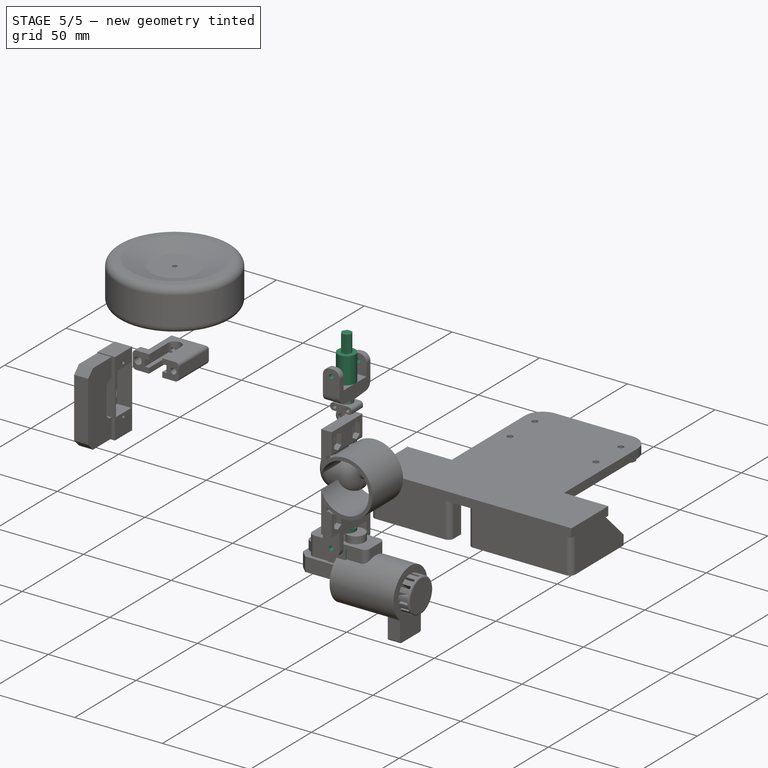
[diagram: stage 5 of 5 — iso view after this stage's code; geometry added in this stage tinted green]
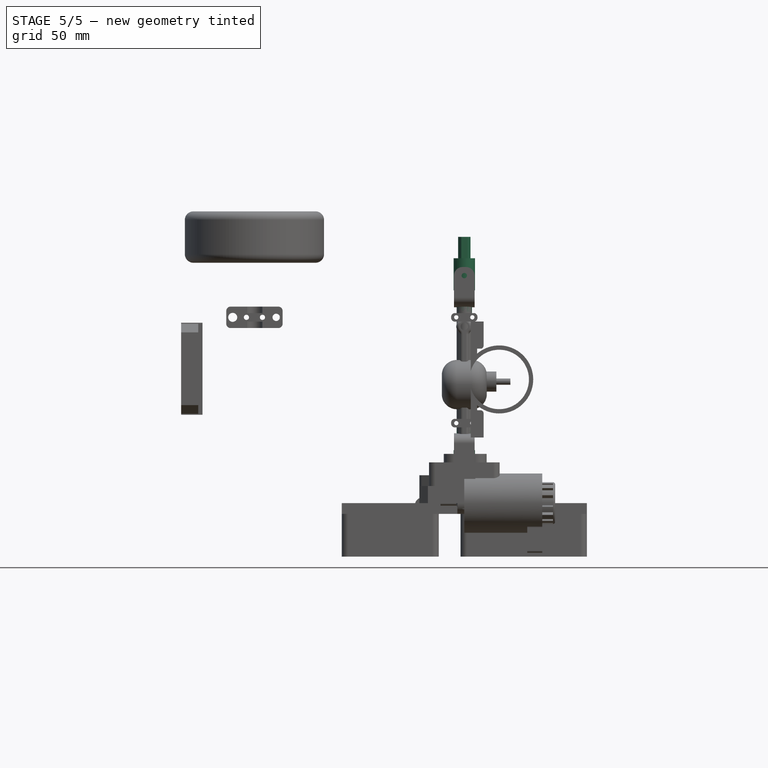
[diagram: stage 5 of 5 — front view after this stage's code; geometry added in this stage tinted green]
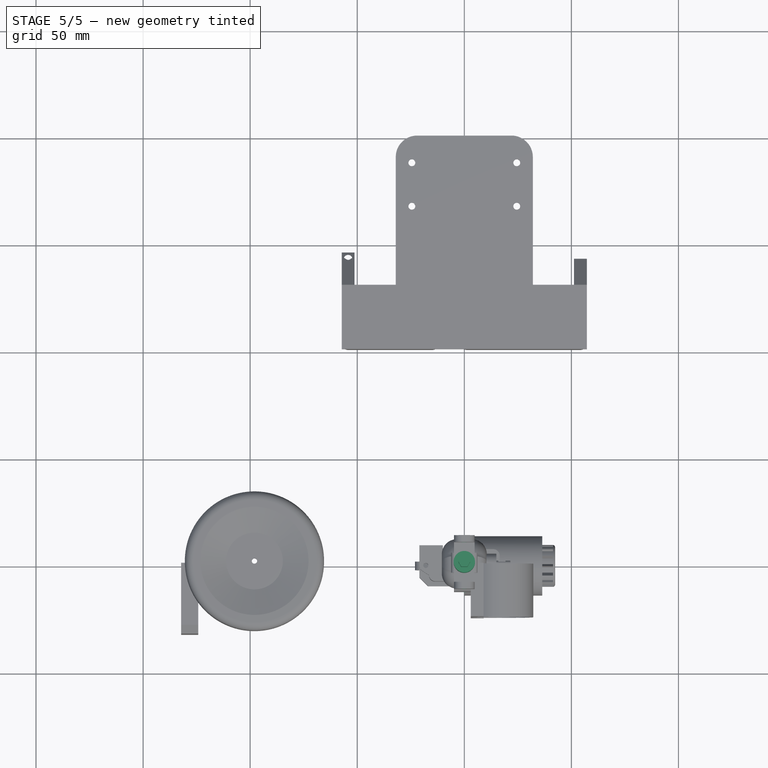
[diagram: stage 5 of 5 — top view after this stage's code; geometry added in this stage tinted green]
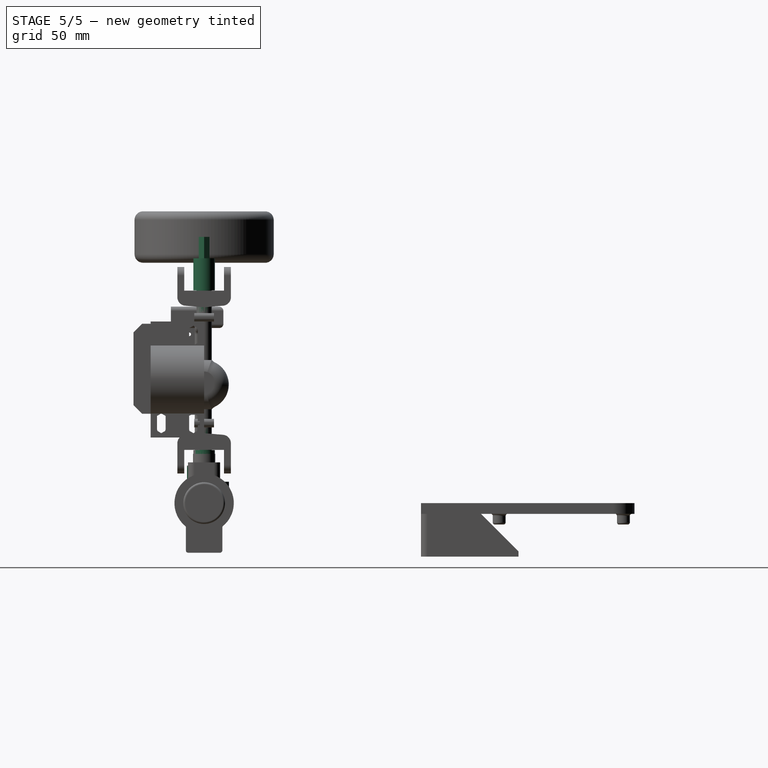
[diagram: stage 5 of 5 — right view after this stage's code; geometry added in this stage tinted green]
FEATURE [Sketcher::SketchObject] Sketch
  ArcFitTolerance = 1e-06
  AttachmentSupport = -> [XY_Plane]
  FullyConstrained = true
  MakeInternals = false
  MapMode = 5
  sketch-geometry (2):
    g0: Circle CenterX=0 CenterY=0 CenterZ=0 NormalX=0 NormalY=0 NormalZ=1 AngleXU=0 Radius=6
    g1: Circle CenterX=0 CenterY=0 CenterZ=0 NormalX=0 NormalY=0 NormalZ=1 AngleXU=0 Radius=1.625
  constraints (4):
    c: Diameter(g0) = 12
    c: Coincident(g0,g-1)
    c: Diameter(g1) = 3.25
    c: Coincident(g1,g0)
FEATURE [PartDesign::Pad] Pad
  Direction = (0,0,1)
  Length = 7.5
  Length2 = 10
  Profile = -> Sketch
  ReferenceAxis = -> Sketch [N_Axis]
  Suppressed = false
  Type = 0
FEATURE [Sketcher::SketchObject] Sketch001
  ArcFitTolerance = 1e-06
  AttachmentSupport = -> [Pad]
  ExternalGeometry = -> [Pad]
  FullyConstrained = true
  MakeInternals = false
  MapMode = 5
  Placement = pos=(0,0,7.5) rot=(0,0,1;0rad)
  sketch-geometry (2):
    g0: Circle CenterX=0 CenterY=0 CenterZ=0 NormalX=0 NormalY=0 NormalZ=1 AngleXU=0 Radius=5.99999
    g1: Circle CenterX=0 CenterY=0 CenterZ=0 NormalX=0 NormalY=0 NormalZ=1 AngleXU=0 Radius=1.75
  constraints (4):
    c: Coincident(g0,g-1)
    c: Tangent(g-3,g0)
    c: Diameter(g1) = 3.5
    c: Coincident(g1,g0)
FEATURE [PartDesign::Pad] Pad001
  BaseFeature = -> Pad
  Direction = (0,0,1)
  Length = 10
  Length2 = 10
  Profile = -> Sketch001
  ReferenceAxis = -> Sketch001 [N_Axis]
  Suppressed = false
  Type = 0
FEATURE [Sketcher::SketchObject] Sketch002
  ArcFitTolerance = 1e-06
  AttachmentSupport = -> [Pad001]
  ExternalGeometry = -> [Pad001]
  FullyConstrained = false
  MakeInternals = false
  MapMode = 5
  Placement = pos=(0,0,0) rot=(1,0,0;3.14159rad)
  sketch-geometry (4):
    g0: LineSegment StartX=-5.436 StartY=7.90023 StartZ=0 EndX=-5.436 EndY=3 EndZ=0
    g1: LineSegment StartX=-5.436 StartY=3 StartZ=0 EndX=6.52646 EndY=3 EndZ=0
    g2: LineSegment StartX=6.52646 StartY=3 StartZ=0 EndX=6.52646 EndY=7.90023 EndZ=0
    g3: LineSegment StartX=6.52646 StartY=7.90023 StartZ=0 EndX=-5.436 EndY=7.90023 EndZ=0
  constraints (9):
    c: Coincident(g0,g1)
    c: Coincident(g1,g2)
    c: Coincident(g2,g3)
    c: Coincident(g3,g0)
    c: Vertical(g0)
    c: Vertical(g2)
    c: Horizontal(g1)
    c: Horizontal(g3)
    c: Distance(g-1,g1) = 3
FEATURE [PartDesign::Pocket] Pocket
  BaseFeature = -> Pad001
  Direction = (0,0,1)
  Length = 5
  Length2 = 5
  Profile = -> Sketch002
  ReferenceAxis = -> Sketch002 [N_Axis]
  Suppressed = false
  Type = 1
FEATURE [Sketcher::SketchObject] Sketch003
  ArcFitTolerance = 1e-06
  AttachmentSupport = -> [Pocket]
  ExternalGeometry = -> [Pocket]
  FullyConstrained = true
  MakeInternals = false
  MapMode = 5
  Placement = pos=(0,-3,0) rot=(1,0,0;1.5708rad)
  sketch-geometry (7):
    g0: ArcOfCircle [constr] CenterX=0 CenterY=2.675 CenterZ=0 NormalX=0 NormalY=0 NormalZ=1 AngleXU=0 Radius=1.925 StartAngle=3.14159 EndAngle=6.28319
    g1: ArcOfCircle [constr] CenterX=1e-16 CenterY=3.575 CenterZ=0 NormalX=0 NormalY=0 NormalZ=1 AngleXU=0 Radius=1.925 StartAngle=1e-16 EndAngle=3.14159
    g2: LineSegment [constr] StartX=-1.925 StartY=2.675 StartZ=0 EndX=-1.925 EndY=3.575 EndZ=0
    g3: LineSegment [constr] StartX=1.925 StartY=2.675 StartZ=0 EndX=1.925 EndY=3.575 EndZ=0
    g4: LineSegment [constr] StartX=-5.19615 StartY=7.5 StartZ=0 EndX=5.19615 EndY=7.5 EndZ=0
    g5: Circle CenterX=0 CenterY=2.675 CenterZ=0 NormalX=0 NormalY=0 NormalZ=1 AngleXU=0 Radius=1.925
    g6: Circle CenterX=0 CenterY=14.575 CenterZ=0 NormalX=0 NormalY=0 NormalZ=1 AngleXU=0 Radius=1.925
  constraints (17):
    c: Tangent(g0,g2) = 1.5708
    c: Tangent(g0,g3) = -1.5708
    c: Tangent(g1,g2) = 1.5708
    c: Tangent(g1,g3) = -1.5708
    c: Equal(g0,g1)
    c: Vertical(g3)
    c: PointOnObject(g0,g-2)
    c: Radius(g0) = 1.925
    c: Distance(g0,g-1) = 0.75
    c: Coincident(g4,g-4)
    c: Coincident(g4,g-3)
    c: Distance(g1,g4) = 2
    c: Coincident(g5,g0)
    c: PointOnObject(g0,g5)
    c: PointOnObject(g6,g-2)
    c: Equal(g6,g5)
    c: Distance(g6,g-5) = 1
FEATURE [PartDesign::Pocket] Pocket001
  BaseFeature = -> Pocket
  Direction = (0,1,-2e-16)
  Length = 2.5
  Length2 = 5
  Profile = -> Sketch003
  ReferenceAxis = -> Sketch003 [N_Axis]
  Suppressed = false
  Type = 0
FEATURE [Sketcher::SketchObject] Sketch004
  ArcFitTolerance = 1e-06
  AttachmentSupport = -> [XY_Plane001]
  FullyConstrained = true
  MakeInternals = false
  MapMode = 5
  sketch-geometry (6):
    g0: ArcOfCircle CenterX=0 CenterY=0 CenterZ=0 NormalX=0 NormalY=0 NormalZ=1 AngleXU=0 Radius=4.1 StartAngle=3.14159 EndAngle=6.28319
    g1: ArcOfCircle CenterX=1e-16 CenterY=7.5 CenterZ=0 NormalX=0 NormalY=0 NormalZ=1 AngleXU=0 Radius=4.1 StartAngle=0 EndAngle=3.14159
    g2: LineSegment StartX=-4.1 StartY=-1.3e-15 StartZ=0 EndX=-4.1 EndY=7.5 EndZ=0
    g3: LineSegment StartX=4.1 StartY=-1e-15 StartZ=0 EndX=4.1 EndY=7.5 EndZ=0
    g4: Circle CenterX=1e-16 CenterY=7.5 CenterZ=0 NormalX=0 NormalY=0 NormalZ=1 AngleXU=0 Radius=1.1
    g5: Circle CenterX=0 CenterY=0 CenterZ=0 NormalX=0 NormalY=0 NormalZ=1 AngleXU=0 Radius=1.1
  constraints (14):
    c: Tangent(g0,g2) = 1.5708
    c: Tangent(g0,g3) = -1.5708
    c: Tangent(g1,g2) = 1.5708
    c: Tangent(g1,g3) = -1.5708
    c: Equal(g0,g1)
    c: Vertical(g3)
    c: Coincident(g0,g-1)
    c: DistanceY(g-1,g1) = 7.5
    c: Diameter(g4) = 2.2
    c: Coincident(g4,g1)
    c: Coincident(g5,g0)
    c: Equal(g4,g5)
    c: DistanceX(g-1,g0) = 4.1
    c: Distance(g0,g5) = 3
FEATURE [PartDesign::Pad] Pad002
  Direction = (0,0,1)
  Length = 10
  Length2 = 10
  Profile = -> Sketch004
  ReferenceAxis = -> Sketch004 [N_Axis]
  Suppressed = false
  Type = 0
FEATURE [PartDesign::Body] Body001
  AllowCompound = false
  Group = -> [Sketch004,Pad002]
  Origin = -> Origin001
  Tip = -> Pad002
FEATURE [PartDesign::Pad] Pad003
  BaseFeature = -> Pocket001
  Direction = (0,-1,0)
  Length = 5
  Length2 = 10
  Profile = -> Pocket001 [Face3]
  Suppressed = false
  Type = 0
FEATURE [Sketcher::SketchObject] Sketch006
  ArcFitTolerance = 1e-06
  AttachmentSupport = -> [Pad003]
  ExternalGeometry = -> [Pad003]
  FullyConstrained = true
  MakeInternals = false
  MapMode = 5
  Placement = pos=(0,-8,0) rot=(1,0,0;1.5708rad)
  sketch-geometry (5):
    g0: LineSegment StartX=5.19615 StartY=0 StartZ=0 EndX=5.19615 EndY=7.5 EndZ=0
    g1: LineSegment StartX=5.19615 StartY=7.5 StartZ=0 EndX=-5.19615 EndY=7.5 EndZ=0
    g2: LineSegment StartX=-5.19615 StartY=7.5 StartZ=0 EndX=-5.19615 EndY=0 EndZ=0
    g3: LineSegment StartX=-5.19615 StartY=0 StartZ=0 EndX=5.19615 EndY=0 EndZ=0
    g4: Circle CenterX=0 CenterY=2.675 CenterZ=0 NormalX=0 NormalY=0 NormalZ=1 AngleXU=0 Radius=1.925
  constraints (12):
    c: Coincident(g0,g1)
    c: Coincident(g1,g2)
    c: Coincident(g2,g3)
    c: Coincident(g3,g0)
    c: Vertical(g0)
    c: Vertical(g2)
    c: Horizontal(g1)
    c: Horizontal(g3)
    c: Coincident(g0,g-5)
    c: Coincident(g1,g-4)
    c: Coincident(g4,g-3)
    c: Equal(g4,g-3)
FEATURE [PartDesign::Pad] Pad005
  BaseFeature = -> Pad003
  Direction = (0,-1,2e-16)
  Length = 7
  Length2 = 10
  Profile = -> Sketch006
  ReferenceAxis = -> Sketch006 [N_Axis]
  Reversed = true
  Suppressed = false
  Type = 0
FEATURE [PartDesign::Pad] Pad006
  BaseFeature = -> Pad005
  Direction = (0,-1,0)
  Length = 10
  Length2 = 10
  Profile = -> Pad005 [Face19]
  Suppressed = false
  Type = 3
  UpToFace = -> Pad005 [Face11]
FEATURE [PartDesign::Pad] Pad007
  BaseFeature = -> Pad006
  Direction = (0,-1,0)
  Length = 10
  Length2 = 10
  Profile = -> Pad006 [Face23]
  Refine = true
  Suppressed = false
  Type = 3
  UpToFace = -> Pad006 [Face11]
FEATURE [PartDesign::Body] Body003  label="Wheel1"
  AllowCompound = false
  Group = -> [Sketch007,Pad008,Sketch008,Pocket002,Sketch009,Pocket003,Chamfer,Fillet001,Sketch010,Pocket004,Pocket005,Sketch012,Pocket006,Sketch013,Pocket007]
  Origin = -> Origin003
  Placement = pos=(-98,0,136.25) rot=(0,1,0;3.14159rad)
  Tip = -> Pocket007
FEATURE [Sketcher::SketchObject] Sketch014
  ArcFitTolerance = 1e-06
  AttachmentSupport = -> [XY_Plane004]
  FullyConstrained = true
  MakeInternals = false
  MapMode = 5
  sketch-geometry (7):
    g0: LineSegment StartX=2.88675 StartY=0 StartZ=0 EndX=1.44338 EndY=2.5 EndZ=0
    g1: LineSegment StartX=1.44338 StartY=2.5 StartZ=0 EndX=-1.44338 EndY=2.5 EndZ=0
    g2: LineSegment StartX=-1.44338 StartY=2.5 StartZ=0 EndX=-2.88675 EndY=-4e-16 EndZ=0
    g3: LineSegment StartX=-2.88675 StartY=-4e-16 StartZ=0 EndX=-1.44338 EndY=-2.5 EndZ=0
    g4: LineSegment StartX=-1.44338 StartY=-2.5 StartZ=0 EndX=1.44338 EndY=-2.5 EndZ=0
    g5: LineSegment StartX=1.44338 StartY=-2.5 StartZ=0 EndX=2.88675 EndY=0 EndZ=0
    g6: Circle [constr] CenterX=0 CenterY=0 CenterZ=0 NormalX=0 NormalY=0 NormalZ=1 AngleXU=0 Radius=2.88675
  constraints (16):
    c: Coincident(g0,g1)
    c: Coincident(g1,g2)
    c: Coincident(g2,g3)
    c: Coincident(g3,g4)
    c: Coincident(g4,g5)
    c: Coincident(g5,g0)
    c: Equal(g0, g1-g5) x5
    c: PointOnObject(g0,g6)
    c: PointOnObject(g1,g6)
    c: PointOnObject(g2,g6)
    c: PointOnObject(g3,g6)
    c: PointOnObject(g4,g6)
    c: PointOnObject(g5,g6)
    c: Coincident(g6,g-1)
    c: PointOnObject(g5,g-1)
    c: Distance(g4,g1) = 5
FEATURE [PartDesign::Pad] Pad009
  Direction = (0,0,1)
  Length = 10
  Length2 = 10
  Profile = -> Sketch014
  ReferenceAxis = -> Sketch014 [N_Axis]
  Suppressed = false
  Type = 0
FEATURE [Sketcher::SketchObject] Sketch015
  ArcFitTolerance = 1e-06
  AttachmentSupport = -> [Pad009]
  FullyConstrained = true
  MakeInternals = false
  MapMode = 5
  Placement = pos=(0,0,10) rot=(0,0,1;0rad)
  sketch-geometry (1):
    g0: Circle CenterX=0 CenterY=0 CenterZ=0 NormalX=0 NormalY=0 NormalZ=1 AngleXU=0 Radius=5
  constraints (2):
    c: Diameter(g0) = 10
    c: Coincident(g0,g-1)
FEATURE [PartDesign::Pad] Pad010
  BaseFeature = -> Pad009
  Direction = (0,0,1)
  Length = 14.75
  Length2 = 10
  Profile = -> Sketch015
  ReferenceAxis = -> Sketch015 [N_Axis]
  Suppressed = false
  Type = 0
FEATURE [Sketcher::SketchObject] Sketch016
  ArcFitTolerance = 1e-06
  AttachmentSupport = -> [Pad010]
  FullyConstrained = true
  MakeInternals = false
  MapMode = 5
  Placement = pos=(0,0,24.75) rot=(0,0,1;0rad)
  sketch-geometry (1):
    g0: Circle CenterX=0 CenterY=0 CenterZ=0 NormalX=0 NormalY=0 NormalZ=1 AngleXU=0 Radius=3.575
  constraints (2):
    c: Diameter(g0) = 7.15
    c: Coincident(g0,g-1)
FEATURE [PartDesign::Pad] Pad011
  BaseFeature = -> Pad010
  Direction = (0,0,1)
  Length = 10.6
  Length2 = 10
  Profile = -> Sketch016
  ReferenceAxis = -> Sketch016 [N_Axis]
  Suppressed = false
  Type = 0
FEATURE [Sketcher::SketchObject] Sketch017
  ArcFitTolerance = 1e-06
  AttachmentSupport = -> [Pad011]
  FullyConstrained = true
  MakeInternals = false
  MapMode = 5
  Placement = pos=(0,0,35.35) rot=(0,0,1;0rad)
  sketch-geometry (5):
    g0: LineSegment StartX=-6.15 StartY=-4.6 StartZ=0 EndX=6.15 EndY=-4.6 EndZ=0
    g1: LineSegment StartX=6.15 StartY=-4.6 StartZ=0 EndX=6.15 EndY=4.6 EndZ=0
    g2: LineSegment StartX=6.15 StartY=4.6 StartZ=0 EndX=-6.15 EndY=4.6 EndZ=0
    g3: LineSegment StartX=-6.15 StartY=4.6 StartZ=0 EndX=-6.15 EndY=-4.6 EndZ=0
    g4: GeomPoint [constr] X=0 Y=0 Z=0
  constraints (12):
    c: Coincident(g0,g1)
    c: Coincident(g1,g2)
    c: Coincident(g2,g3)
    c: Coincident(g3,g0)
    c: Horizontal(g0)
    c: Horizontal(g2)
    c: Vertical(g1)
    c: Vertical(g3)
    c: Symmetric(g2,g0,g4)
    c: Coincident(g4,g-1)
    c: DistanceX(g2,g2) = 12.3
    c: DistanceY(g1,g1) = 9.2
FEATURE [PartDesign::Pad] Pad012
  BaseFeature = -> Pad011
  Direction = (0,0,1)
  Length = 4
  Length2 = 10
  Profile = -> Sketch017
  ReferenceAxis = -> Sketch017 [N_Axis]
  Suppressed = false
  Type = 0
FEATURE [Sketcher::SketchObject] Sketch018
  ArcFitTolerance = 1e-06
  AttachmentSupport = -> [Pad012]
  ExternalGeometry = -> [Pad012]
  FullyConstrained = true
  MakeInternals = false
  MapMode = 5
  Placement = pos=(0,0,39.35) rot=(0,0,1;0rad)
  sketch-geometry (1):
    g0: Circle CenterX=0 CenterY=0 CenterZ=0 NormalX=0 NormalY=0 NormalZ=1 AngleXU=0 Radius=3.57501
  constraints (2):
    c: Coincident(g0,g-1)
    c: Tangent(g0,g-3)
FEATURE [PartDesign::Pad] Pad013
  BaseFeature = -> Pad012
  Direction = (0,0,1)
  Length = 4.5
  Length2 = 10
  Profile = -> Sketch018
  ReferenceAxis = -> Sketch018 [N_Axis]
  Suppressed = false
  Type = 0
FEATURE [Sketcher::SketchObject] Sketch019
  ArcFitTolerance = 1e-06
  AttachmentSupport = -> [YZ_Plane004]
  ExternalGeometry = -> [Pad013]
  FullyConstrained = true
  MakeInternals = false
  MapMode = 5
  Placement = pos=(0,0,0) rot=(0.57735,0.57735,0.57735;2.0944rad)
  sketch-geometry (10):
    g0: Circle [constr] CenterX=0 CenterY=55.35 CenterZ=0 NormalX=0 NormalY=0 NormalZ=1 AngleXU=0 Radius=11.5
    g1: LineSegment [constr] StartX=-3.57501 StartY=66.85 StartZ=0 EndX=3.57501 EndY=66.85 EndZ=0
    g2: ArcOfCircle CenterX=4e-16 CenterY=55.35 CenterZ=0 NormalX=0 NormalY=0 NormalZ=1 AngleXU=0 Radius=11.5 StartAngle=2.03891 EndAngle=4.24428
    g3: ArcOfCircle CenterX=-7.67043 CenterY=70.5212 CenterZ=0 NormalX=0 NormalY=0 NormalZ=1 AngleXU=0 Radius=5.5 StartAngle=5.1805 EndAngle=5.55236
    g4: ArcOfCircle CenterX=-7.67043 CenterY=40.1788 CenterZ=0 NormalX=0 NormalY=0 NormalZ=1 AngleXU=0 Radius=5.5 StartAngle=0.730827 EndAngle=1.10268
    g5: ArcOfCircle CenterX=7.67043 CenterY=70.5212 CenterZ=0 NormalX=0 NormalY=0 NormalZ=1 AngleXU=0 Radius=5.5 StartAngle=3.87242 EndAngle=4.24428
    g6: ArcOfCircle CenterX=2e-15 CenterY=55.35 CenterZ=0 NormalX=0 NormalY=0 NormalZ=1 AngleXU=0 Radius=11.5 StartAngle=5.1805 EndAngle=7.38587
    g7: ArcOfCircle CenterX=7.67043 CenterY=40.1788 CenterZ=0 NormalX=0 NormalY=0 NormalZ=1 AngleXU=0 Radius=5.5 StartAngle=2.03891 EndAngle=2.41077
    g8: LineSegment StartX=-3.57501 StartY=66.85 StartZ=0 EndX=3.57501 EndY=66.85 EndZ=0
    g9: LineSegment StartX=-3.57501 StartY=43.85 StartZ=0 EndX=3.57501 EndY=43.85 EndZ=0
  constraints (26):
    c: PointOnObject(g0,g-2)
    c: Tangent(g0,g-3)
    c: Diameter(g0) = 23
    c: Tangent(g1,g0)
    c: Symmetric(g1,g1,g-2)
    c: Vertical(g1,g-3)
    c: Tangent(g2,g0) = -1.5708
    c: PointOnObject(g2,g0)
    c: Coincident(g3,g1)
    c: Tangent(g3,g2) = 1.5708
    c: Coincident(g4,g-3)
    c: Tangent(g4,g2) = 1.5708
    c: Vertical(g2,g2)
    c: Coincident(g5,g1)
    c: Tangent(g5,g0) = 1.5708
    c: Coincident(g7,g-3)
    c: Tangent(g7,g6) = 1.5708
    c: Tangent(g6,g5) = 1.5708
    c: Horizontal(g2,g5)
    c: Horizontal(g2,g6)
    c: Coincident(g8,g1)
    c: Coincident(g8,g1)
    c: Coincident(g9,g4)
    c: Coincident(g9,g7)
    c: Equal(g7,g4)
    c: Radius(g4) = 5.5
FEATURE [PartDesign::Pad] Pad014
  BaseFeature = -> Pad013
  Direction = (1,0,0)
  Length = 21
  Length2 = 10
  Midplane = true
  Profile = -> Sketch019
  ReferenceAxis = -> Sketch019 [N_Axis]
  Suppressed = false
  Type = 0
FEATURE [Sketcher::SketchObject] Sketch020
  ArcFitTolerance = 1e-06
  AttachmentSupport = -> [Pad014]
  ExternalGeometry = -> [Pad014]
  FullyConstrained = true
  MakeInternals = false
  MapMode = 5
  Placement = pos=(0,3.984e-13,66.85) rot=(0,0,1;0rad)
  sketch-geometry (1):
    g0: Circle CenterX=0 CenterY=0 CenterZ=0 NormalX=0 NormalY=0 NormalZ=1 AngleXU=0 Radius=3.57501
  constraints (2):
    c: Coincident(g0,g-1)
    c: Tangent(g0,g-3)
FEATURE [PartDesign::Pad] Pad015
  BaseFeature = -> Pad014
  Direction = (0,6e-15,1)
  Length = 17.9
  Length2 = 10
  Profile = -> Sketch020
  ReferenceAxis = -> Sketch020 [N_Axis]
  Suppressed = false
  Type = 0
FEATURE [Sketcher::SketchObject] Sketch021
  ArcFitTolerance = 1e-06
  AttachmentSupport = -> [Pad015]
  ExternalGeometry = -> [Pad015]
  FullyConstrained = true
  MakeInternals = false
  MapMode = 5
  Placement = pos=(0,3.89e-13,84.75) rot=(0,0,1;0rad)
  sketch-geometry (5):
    g0: LineSegment StartX=-6.15 StartY=-4.6 StartZ=0 EndX=6.15 EndY=-4.6 EndZ=0
    g1: LineSegment StartX=6.15 StartY=-4.6 StartZ=0 EndX=6.15 EndY=4.6 EndZ=0
    g2: LineSegment StartX=6.15 StartY=4.6 StartZ=0 EndX=-6.15 EndY=4.6 EndZ=0
    g3: LineSegment StartX=-6.15 StartY=4.6 StartZ=0 EndX=-6.15 EndY=-4.6 EndZ=0
    g4: GeomPoint [constr] X=0 Y=0 Z=0
  constraints (11):
    c: Coincident(g0,g1)
    c: Coincident(g1,g2)
    c: Coincident(g2,g3)
    c: Coincident(g3,g0)
    c: Horizontal(g0)
    c: Horizontal(g2)
    c: Vertical(g1)
    c: Vertical(g3)
    c: Symmetric(g2,g0,g4)
    c: Coincident(g4,g-1)
    c: Coincident(g1,g-4)
FEATURE [PartDesign::Pad] Pad016
  BaseFeature = -> Pad015
  Direction = (0,4.6e-15,1)
  Length = 4
  Length2 = 10
  Profile = -> Sketch021
  ReferenceAxis = -> Sketch021 [N_Axis]
  Suppressed = false
  Type = 0
FEATURE [Sketcher::SketchObject] Sketch022
  ArcFitTolerance = 1e-06
  AttachmentSupport = -> [Pad016]
  ExternalGeometry = -> [Pad016]
  FullyConstrained = true
  MakeInternals = false
  MapMode = 5
  Placement = pos=(0,2.742e-13,88.75) rot=(0,0,1;0rad)
  sketch-geometry (1):
    g0: Circle CenterX=0 CenterY=0 CenterZ=0 NormalX=0 NormalY=0 NormalZ=1 AngleXU=0 Radius=3.57501
  constraints (2):
    c: PointOnObject(g-3,g0)
    c: Coincident(g0,g-1)
FEATURE [PartDesign::Pad] Pad017
  BaseFeature = -> Pad016
  Direction = (0,3.1e-15,1)
  Length = 10.6
  Length2 = 10
  Profile = -> Sketch022
  ReferenceAxis = -> Sketch022 [N_Axis]
  Suppressed = false
  Type = 0
FEATURE [Sketcher::SketchObject] Sketch023
  ArcFitTolerance = 1e-06
  AttachmentSupport = -> [Pad017]
  ExternalGeometry = -> [Pad017]
  FullyConstrained = true
  MakeInternals = false
  MapMode = 5
  Placement = pos=(0,4.56e-13,99.35) rot=(0,0,1;0rad)
  sketch-geometry (1):
    g0: Circle CenterX=0 CenterY=0 CenterZ=0 NormalX=0 NormalY=0 NormalZ=1 AngleXU=0 Radius=5.00001
  constraints (2):
    c: Coincident(g0,g-1)
    c: Tangent(g0,g-3)
FEATURE [PartDesign::Pad] Pad018
  BaseFeature = -> Pad017
  Direction = (0,4.6e-15,1)
  Length = 15
  Length2 = 10
  Profile = -> Sketch023
  ReferenceAxis = -> Sketch023 [N_Axis]
  Suppressed = false
  Type = 0
FEATURE [Sketcher::SketchObject] Sketch024
  ArcFitTolerance = 1e-06
  AttachmentSupport = -> [Pad018]
  ExternalGeometry = -> [Pad018]
  FullyConstrained = true
  MakeInternals = false
  MapMode = 5
  Placement = pos=(0,3.751e-13,114.35) rot=(0,0,1;0rad)
  sketch-geometry (7):
    g0: LineSegment StartX=2.88675 StartY=-8e-15 StartZ=0 EndX=1.44338 EndY=2.5 EndZ=0
    g1: LineSegment StartX=1.44338 StartY=2.5 StartZ=0 EndX=-1.44338 EndY=2.5 EndZ=0
    g2: LineSegment StartX=-1.44338 StartY=2.5 StartZ=0 EndX=-2.88675 EndY=1.3e-15 EndZ=0
    g3: LineSegment StartX=-2.88675 StartY=1.3e-15 StartZ=0 EndX=-1.44338 EndY=-2.5 EndZ=0
    g4: LineSegment StartX=-1.44338 StartY=-2.5 StartZ=0 EndX=1.44338 EndY=-2.5 EndZ=0
    g5: LineSegment StartX=1.44338 StartY=-2.5 StartZ=0 EndX=2.88675 EndY=-8e-15 EndZ=0
    g6: Circle [constr] CenterX=0 CenterY=0 CenterZ=0 NormalX=0 NormalY=0 NormalZ=1 AngleXU=0 Radius=2.88675
  constraints (15):
    c: Coincident(g0,g1)
    c: Coincident(g1,g2)
    c: Coincident(g2,g3)
    c: Coincident(g3,g4)
    c: Coincident(g4,g5)
    c: Coincident(g5,g0)
    c: Equal(g0, g1-g5) x5
    c: PointOnObject(g0,g6)
    c: PointOnObject(g1,g6)
    c: PointOnObject(g2,g6)
    c: PointOnObject(g3,g6)
    c: PointOnObject(g4,g6)
    c: PointOnObject(g5,g6)
    c: Coincident(g6,g-1)
    c: Coincident(g0,g-4)
FEATURE [PartDesign::Pad] Pad019
  BaseFeature = -> Pad018
  Direction = (0,3.3e-15,1)
  Length = 10
  Length2 = 10
  Profile = -> Sketch024
  ReferenceAxis = -> Sketch024 [N_Axis]
  Suppressed = false
  Type = 0
FEATURE [PartDesign::Fillet] Fillet002
  Base = -> Pad019 [Face22,Face24]
  BaseFeature = -> Pad019
  Radius = 7
  SupportTransform = false
  Suppressed = false
  UseAllEdges = false
FEATURE [Sketcher::SketchObject] Sketch025
  ArcFitTolerance = 1e-06
  AttachmentSupport = -> [Fillet002]
  ExternalGeometry = -> [Fillet002]
  FullyConstrained = true
  MakeInternals = false
  MapMode = 5
  Placement = pos=(10.5,0,0) rot=(0.57735,0.57735,0.57735;2.0944rad)
  sketch-geometry (1):
    g0: Circle CenterX=0 CenterY=56.75 CenterZ=0 NormalX=0 NormalY=0 NormalZ=1 AngleXU=0 Radius=4.7
  constraints (4):
    c: Diameter(g0) = 9.4
    c: PointOnObject(g0,g-2)
    c: Distance(g-3,g0) = 5.42624
    c: Distance(g0,g-4) = 8.2
FEATURE [PartDesign::Pad] Pad020
  BaseFeature = -> Fillet002
  Direction = (1,0,0)
  Length = 4.5
  Length2 = 10
  Profile = -> Sketch025
  ReferenceAxis = -> Sketch025 [N_Axis]
  Suppressed = false
  Type = 0
FEATURE [PartDesign::Pad] Pad021
  BaseFeature = -> Pad020
  Direction = (1,0,0)
  Length = 10
  Length2 = 10
  Profile = -> Pad020 [Face41]
  Reversed = true
  Suppressed = false
  Type = 0
FEATURE [Sketcher::SketchObject] Sketch026
  ArcFitTolerance = 1e-06
  AttachmentSupport = -> [Pad021]
  ExternalGeometry = -> [Pad021]
  FullyConstrained = true
  MakeInternals = false
  MapMode = 5
  Placement = pos=(15,0,0) rot=(0.57735,0.57735,0.57735;2.0944rad)
  sketch-geometry (1):
    g0: Circle CenterX=0 CenterY=56.75 CenterZ=0 NormalX=0 NormalY=0 NormalZ=1 AngleXU=0 Radius=1.45
  constraints (2):
    c: Coincident(g0,g-3)
    c: Diameter(g0) = 2.9
FEATURE [PartDesign::Pad] Pad022
  BaseFeature = -> Pad021
  Direction = (1,0,0)
  Length = 6.5
  Length2 = 10
  Profile = -> Sketch026
  ReferenceAxis = -> Sketch026 [N_Axis]
  Suppressed = false
  Type = 0
FEATURE [Sketcher::SketchObject] Sketch027
  ArcFitTolerance = 1e-06
  AttachmentSupport = -> [Pad022]
  ExternalGeometry = -> [Pad022]
  FullyConstrained = true
  MakeInternals = false
  MapMode = 5
  Placement = pos=(21.5,0,0) rot=(0.57735,0.57735,0.57735;2.0944rad)
  sketch-geometry (2):
    g0: ArcOfCircle CenterX=0 CenterY=56.75 CenterZ=0 NormalX=0 NormalY=0 NormalZ=1 AngleXU=0 Radius=1.45 StartAngle=5.4734 EndAngle=7.09297
    g1: LineSegment StartX=1 StartY=57.8 StartZ=0 EndX=1 EndY=55.7 EndZ=0
  constraints (6):
    c: Coincident(g0,g-3)
    c: PointOnObject(g0,g-3)
    c: Vertical(g0,g0)
    c: Coincident(g1,g0)
    c: Coincident(g1,g0)
    c: Distance(g-2,g1) = 1
FEATURE [PartDesign::Pocket] Pocket008
  BaseFeature = -> Pad022
  Direction = (-1,0,0)
  Length = 5.6
  Length2 = 5
  Profile = -> Sketch027
  ReferenceAxis = -> Sketch027 [N_Axis]
  Suppressed = false
  Type = 0
FEATURE [Sketcher::SketchObject] Sketch028
  ArcFitTolerance = 1e-06
  AttachmentSupport = -> [Pocket008]
  ExternalGeometry = -> [Pocket008]
  FullyConstrained = true
  MakeInternals = false
  MapMode = 5
  Placement = pos=(21.5,0,0) rot=(0.57735,0.57735,0.57735;2.0944rad)
  sketch-geometry (1):
    g0: Circle CenterX=0 CenterY=56.75 CenterZ=0 NormalX=0 NormalY=0 NormalZ=1 AngleXU=0 Radius=1.45
  constraints (2):
    c: Coincident(g0,g-3)
    c: PointOnObject(g-3,g0)
FEATURE [PartDesign::Pad] Pad023
  BaseFeature = -> Pocket008
  Direction = (1,0,0)
  Length = 2.25
  Length2 = 10
  Profile = -> Sketch028
  ReferenceAxis = -> Sketch028 [N_Axis]
  Reversed = true
  Suppressed = false
  Type = 0
FEATURE [Sketcher::SketchObject] Sketch029
  ArcFitTolerance = 1e-06
  AttachmentSupport = -> [Pad023]
  ExternalGeometry = -> [Pad023]
  FullyConstrained = true
  MakeInternals = false
  MapMode = 5
  Placement = pos=(0,4.6,-2.11e-14) rot=(0,0.707107,0.707107;3.14159rad)
  sketch-geometry (9):
    g0: GeomPoint X=-6.15 Y=86.75 Z=0
    g1: GeomPoint X=-6.15 Y=37.35 Z=0
    g2: LineSegment [constr] StartX=-6.15 StartY=37.35 StartZ=0 EndX=6.15 EndY=37.35 EndZ=0
    g3: LineSegment [constr] StartX=-6.15 StartY=86.75 StartZ=0 EndX=6.15 EndY=86.75 EndZ=0
    g4: Circle CenterX=-3.75 CenterY=37.35 CenterZ=0 NormalX=0 NormalY=0 NormalZ=1 AngleXU=0 Radius=1
    g5: Circle CenterX=3.75 CenterY=37.35 CenterZ=0 NormalX=0 NormalY=0 NormalZ=1 AngleXU=0 Radius=1
    g6: GeomPoint X=1.1e-15 Y=37.35 Z=0
    g7: Circle CenterX=-3.75 CenterY=86.75 CenterZ=0 NormalX=0 NormalY=0 NormalZ=1 AngleXU=0 Radius=1
    g8: Circle CenterX=3.75 CenterY=86.75 CenterZ=0 NormalX=0 NormalY=0 NormalZ=1 AngleXU=0 Radius=1
  constraints (20):
    c: Symmetric(g-3,g-6,g0)
    c: Symmetric(g-4,g-5,g1)
    c: Coincident(g2,g1)
    c: Horizontal(g2)
    c: Coincident(g3,g0)
    c: Horizontal(g3)
    c: Vertical(g3,g-3)
    c: Vertical(g2,g-4)
    c: Diameter(g4) = 2
    c: PointOnObject(g4,g2)
    c: Equal(g5,g4)
    c: DistanceX(g4,g5) = 7.5
    c: Symmetric(g2,g2,g6)
    c: Symmetric(g4,g5,g6)
    c: PointOnObject(g7,g3)
    c: PointOnObject(g8,g3)
    c: Vertical(g8,g5)
    c: Vertical(g4,g7)
    c: Equal(g8,g7)
    c: Equal(g7,g4)
FEATURE [PartDesign::Pocket] Pocket009
  BaseFeature = -> Pad023
  Direction = (0,-1,4.5e-15)
  Length = 5
  Length2 = 5
  Profile = -> Sketch029
  ReferenceAxis = -> Sketch029 [N_Axis]
  Suppressed = false
  Type = 1
FEATURE [PartDesign::Fillet] Fillet003
  Base = -> Pocket009 [Edge141,Edge156,Edge142,Edge158,Edge62,Edge22,Edge60,Edge21]
  BaseFeature = -> Pocket009
  Radius = 1.75
  SupportTransform = false
  Suppressed = false
  UseAllEdges = false
FEATURE [Sketcher::SketchObject] Sketch052
  ArcFitTolerance = 1e-06
  AttachmentSupport = -> [Fillet006]
  ExternalGeometry = -> [Fillet006]
  FullyConstrained = true
  MakeInternals = false
  MapMode = 5
  Placement = pos=(0,-12.5,0) rot=(1,0,0;1.5708rad)
  sketch-geometry (2):
    g0: Circle CenterX=0 CenterY=106.25 CenterZ=0 NormalX=0 NormalY=0 NormalZ=1 AngleXU=0 Radius=1.25
    g1: Circle CenterX=0 CenterY=17.85 CenterZ=0 NormalX=0 NormalY=0 NormalZ=1 AngleXU=0 Radius=1.25
  constraints (6):
    c: Diameter(g0) = 2.5
    c: PointOnObject(g0,g-2)
    c: PointOnObject(g1,g-2)
    c: DistanceY(g-5,g1) = 4
    c: Horizontal(g-4,g0)
    c: Equal(g1,g0)
FEATURE [PartDesign::Pocket] Pocket016
  BaseFeature = -> Fillet006
  Direction = (0,1,-2e-16)
  Length = 5
  Length2 = 5
  Profile = -> Sketch052
  ReferenceAxis = -> Sketch052 [N_Axis]
  Refine = true
  Suppressed = false
  Type = 1
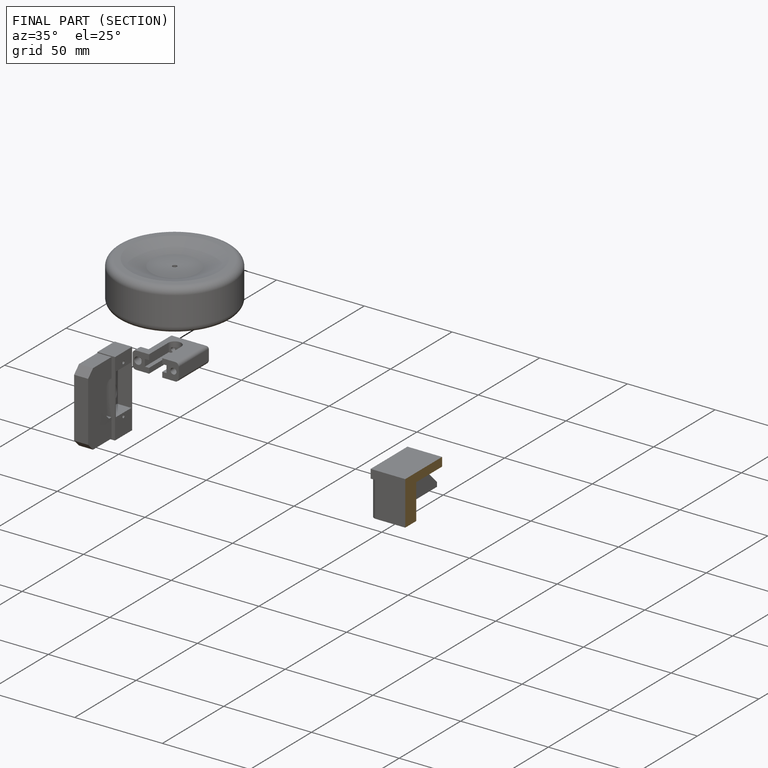
[diagram: finished part — half-section view (interior)]
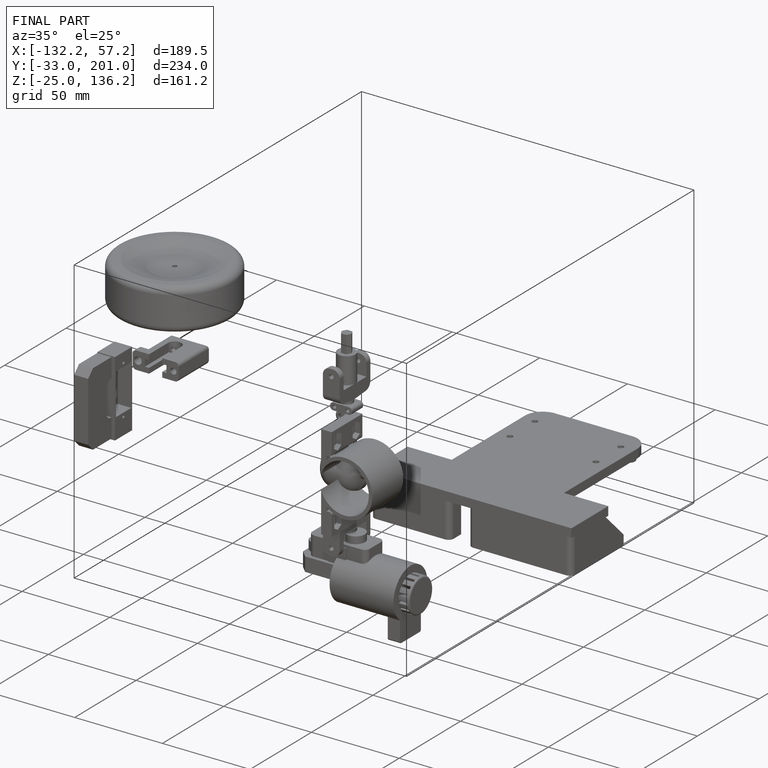
[diagram: finished part — iso view with bounding-box wireframe]
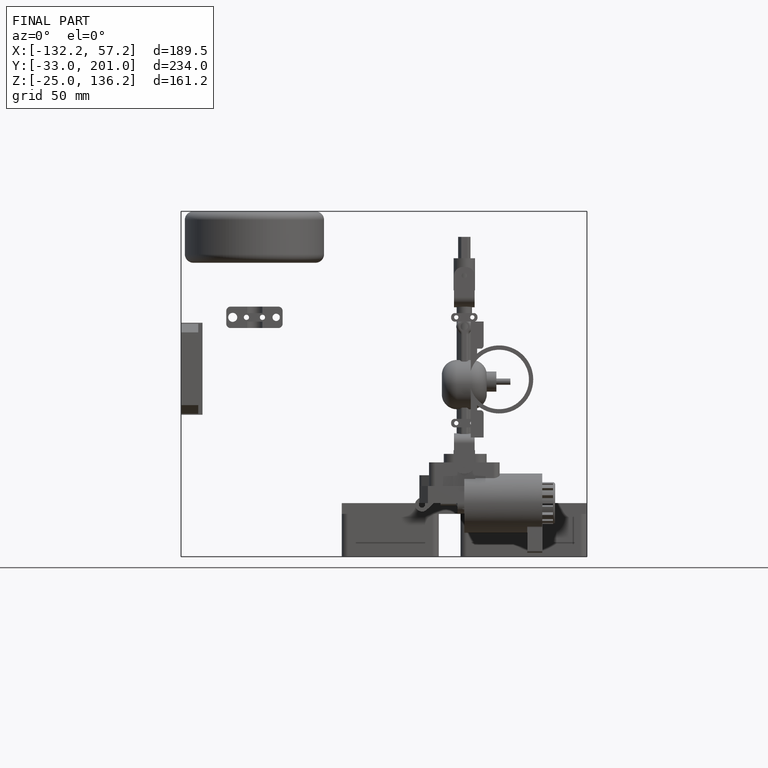
[diagram: finished part — front view with bounding-box wireframe]
